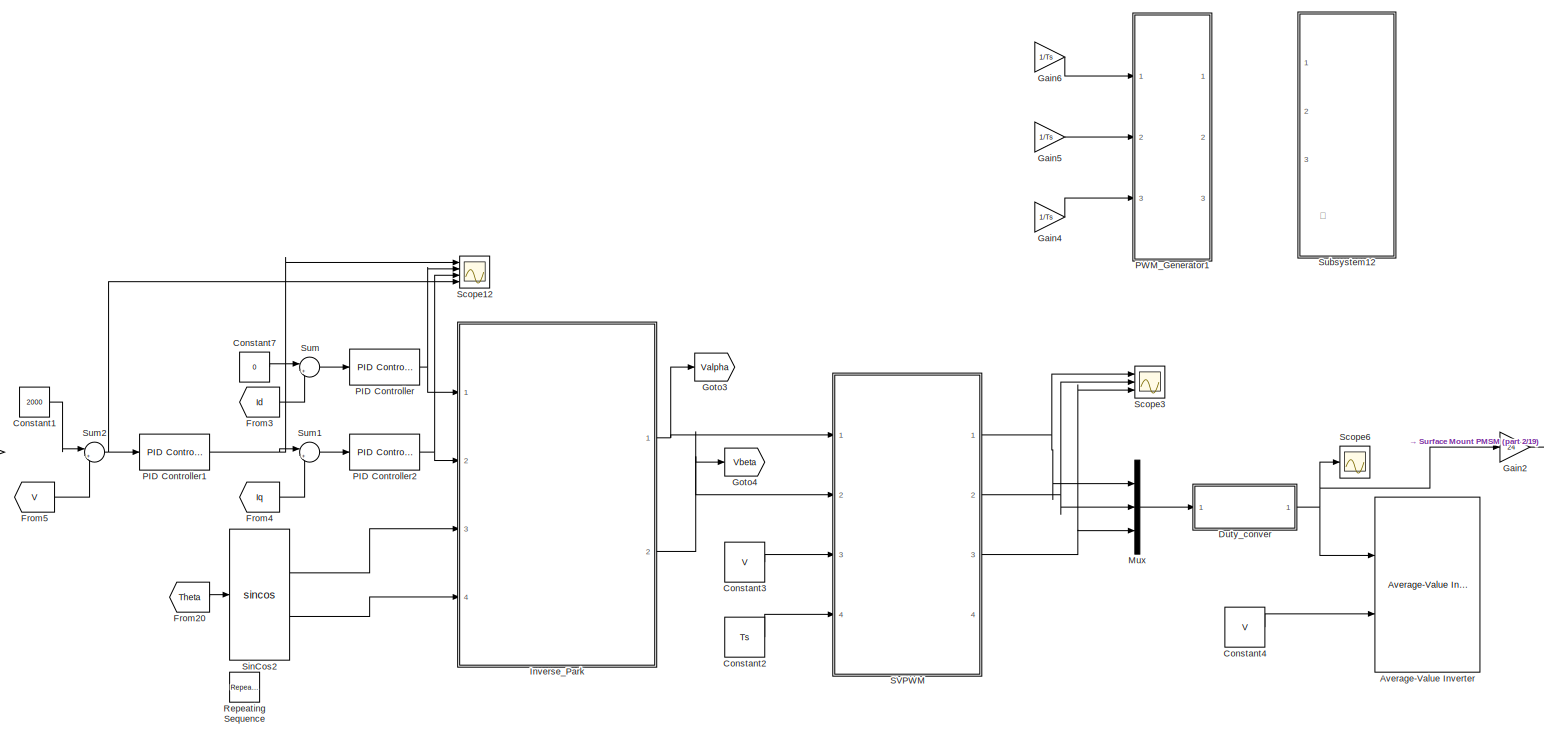
[diagram: root canvas - part 1/19, top center region]
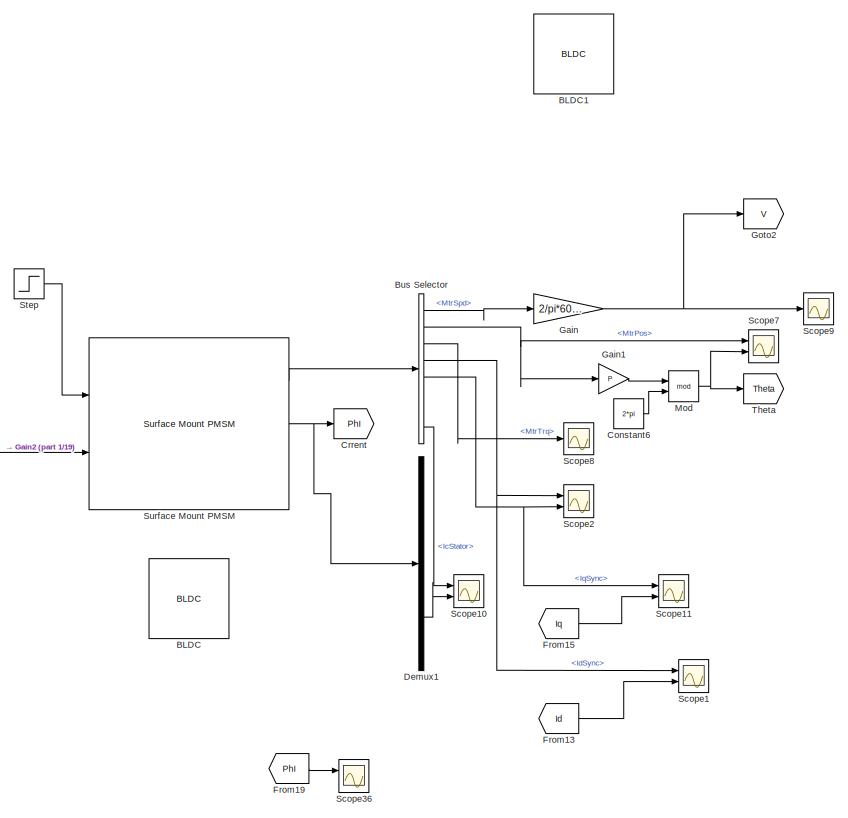
[diagram: root canvas - part 2/19, top center region]
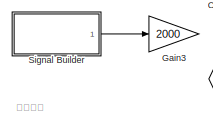
[diagram: root canvas - part 3/19, top left region]
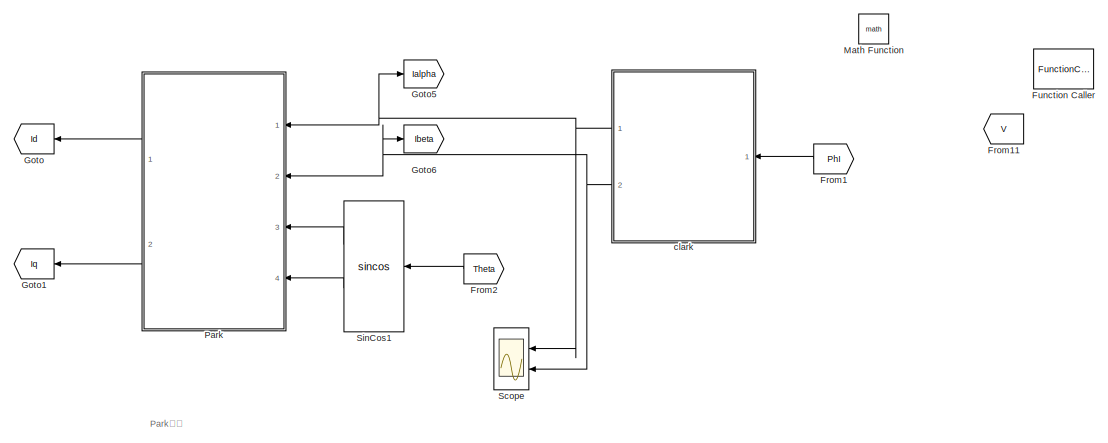
[diagram: root canvas - part 4/19, top center region]
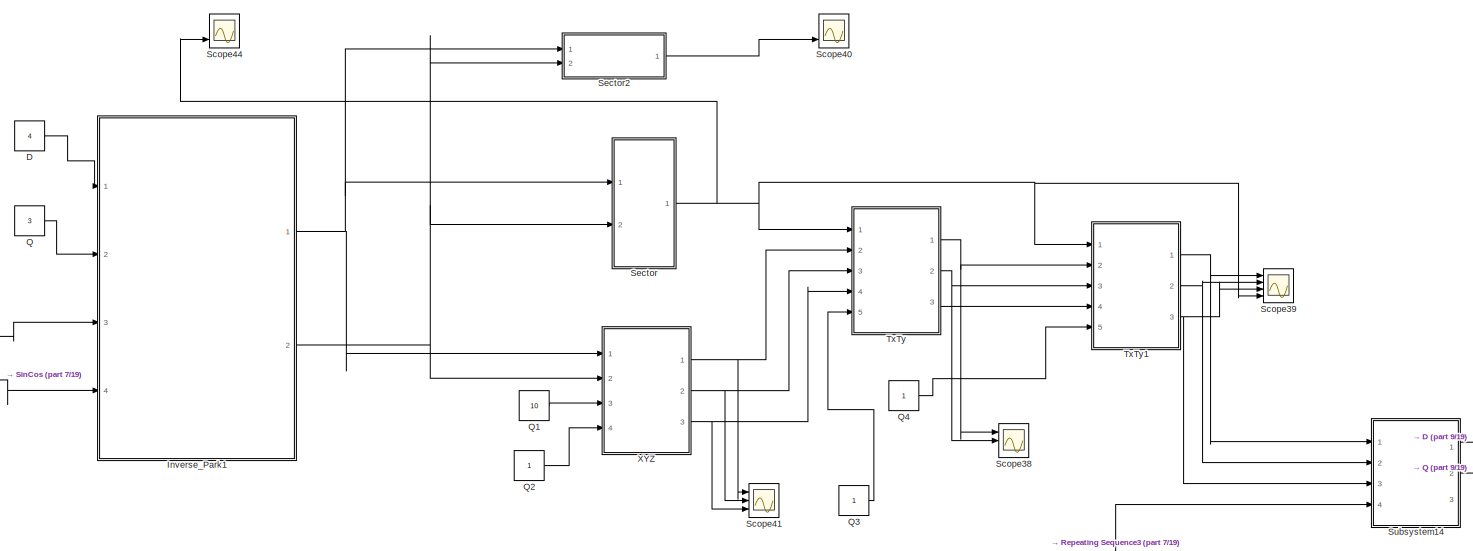
[diagram: root canvas - part 5/19, middle left region]
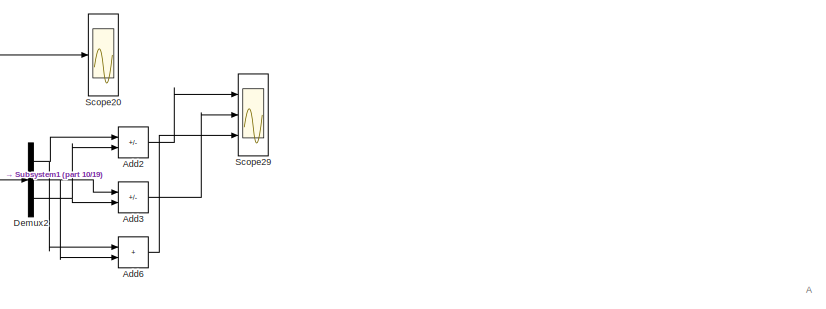
[diagram: root canvas - part 6/19, middle right region]
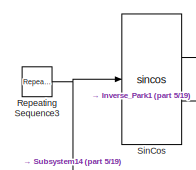
[diagram: root canvas - part 7/19, middle left region]
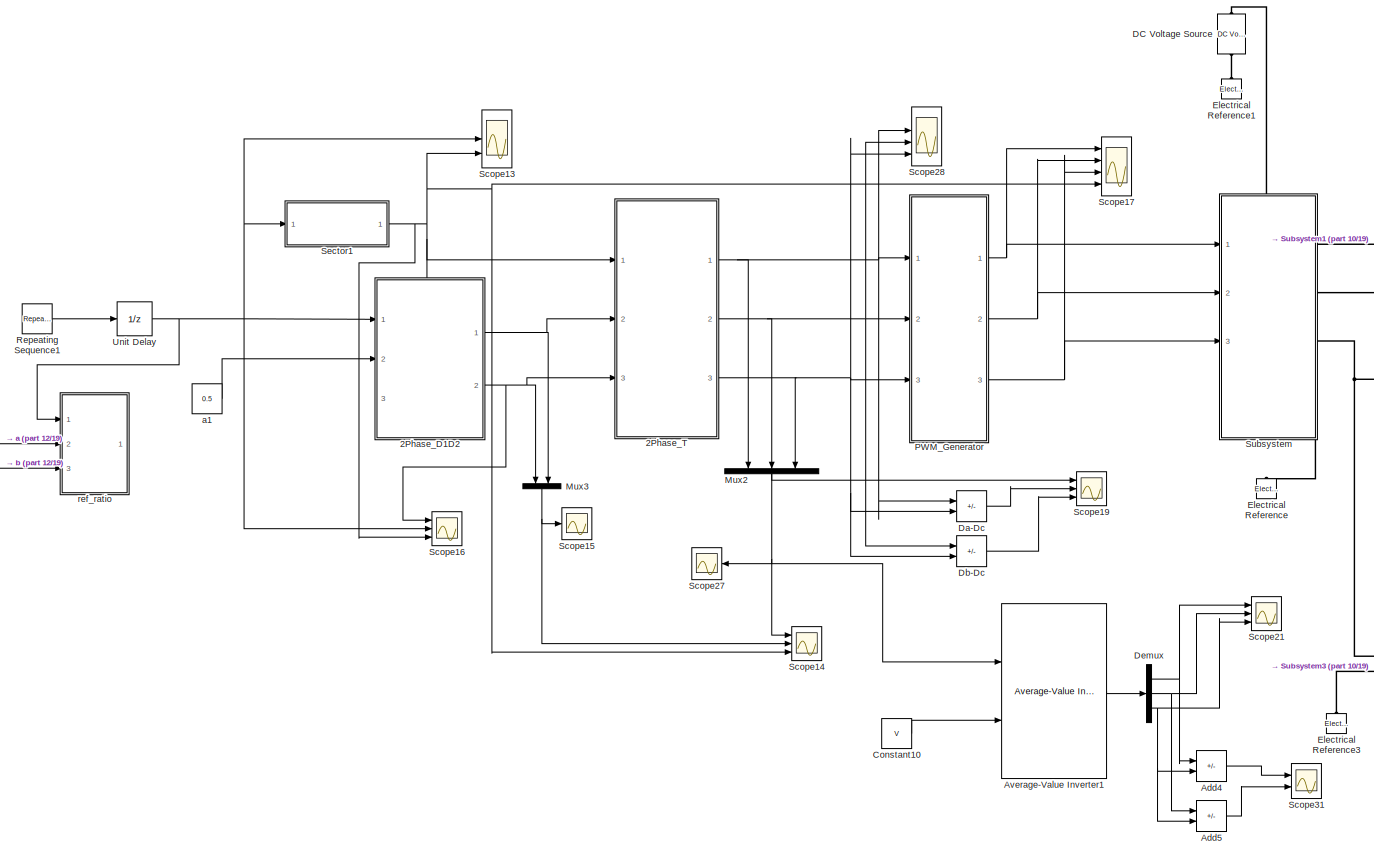
[diagram: root canvas - part 8/19, central region]
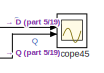
[diagram: root canvas - part 9/19, middle left region]
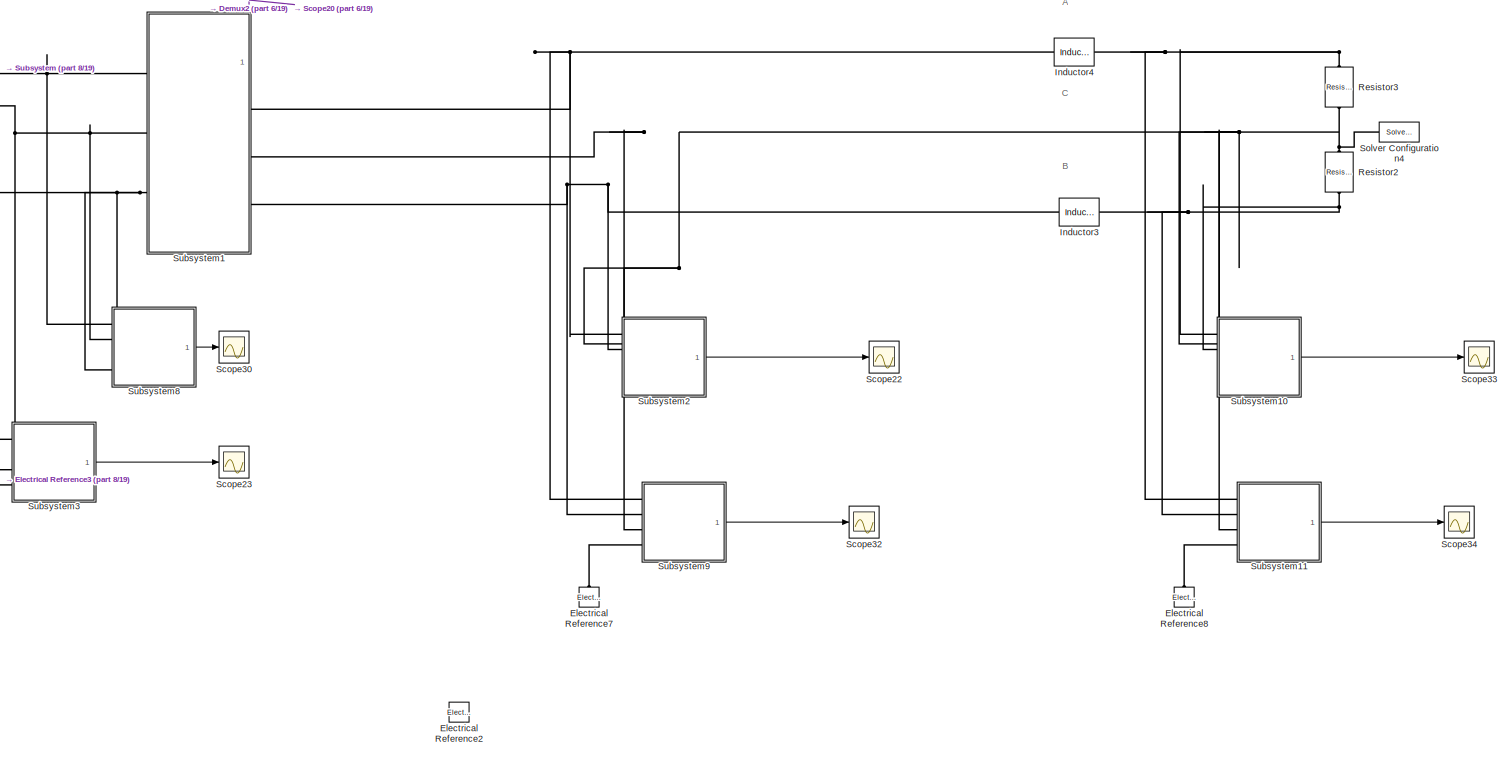
[diagram: root canvas - part 10/19, middle right region]
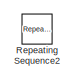
[diagram: root canvas - part 11/19, middle left region]
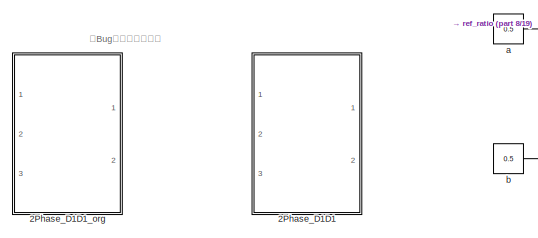
[diagram: root canvas - part 12/19, central region]
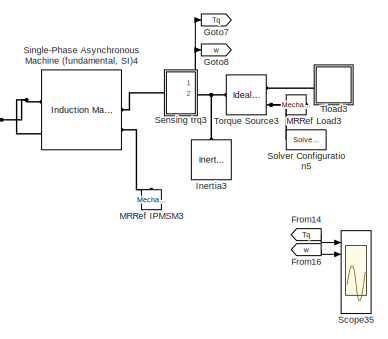
[diagram: root canvas - part 13/19, middle right region]
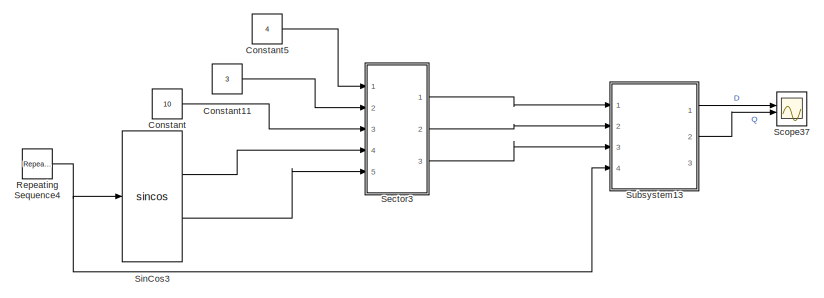
[diagram: root canvas - part 14/19, middle left region]
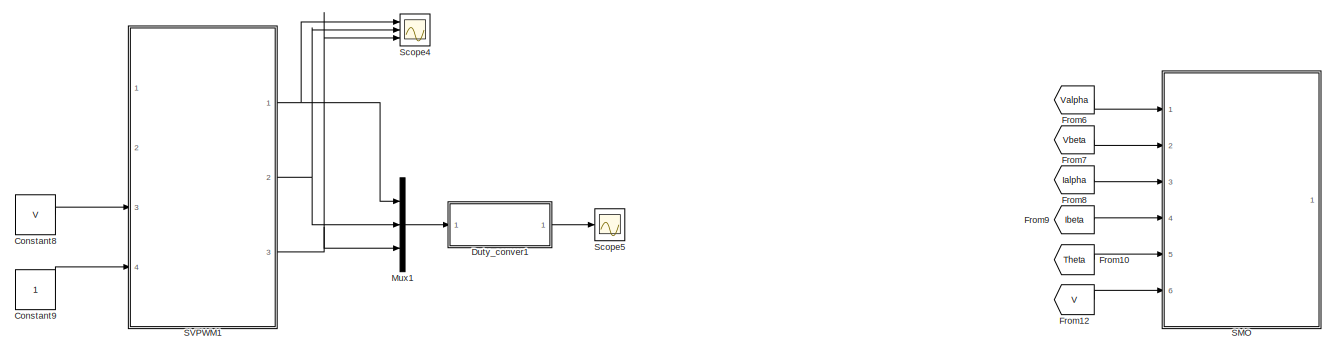
[diagram: root canvas - part 15/19, bottom left region]
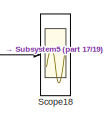
[diagram: root canvas - part 16/19, bottom right region]
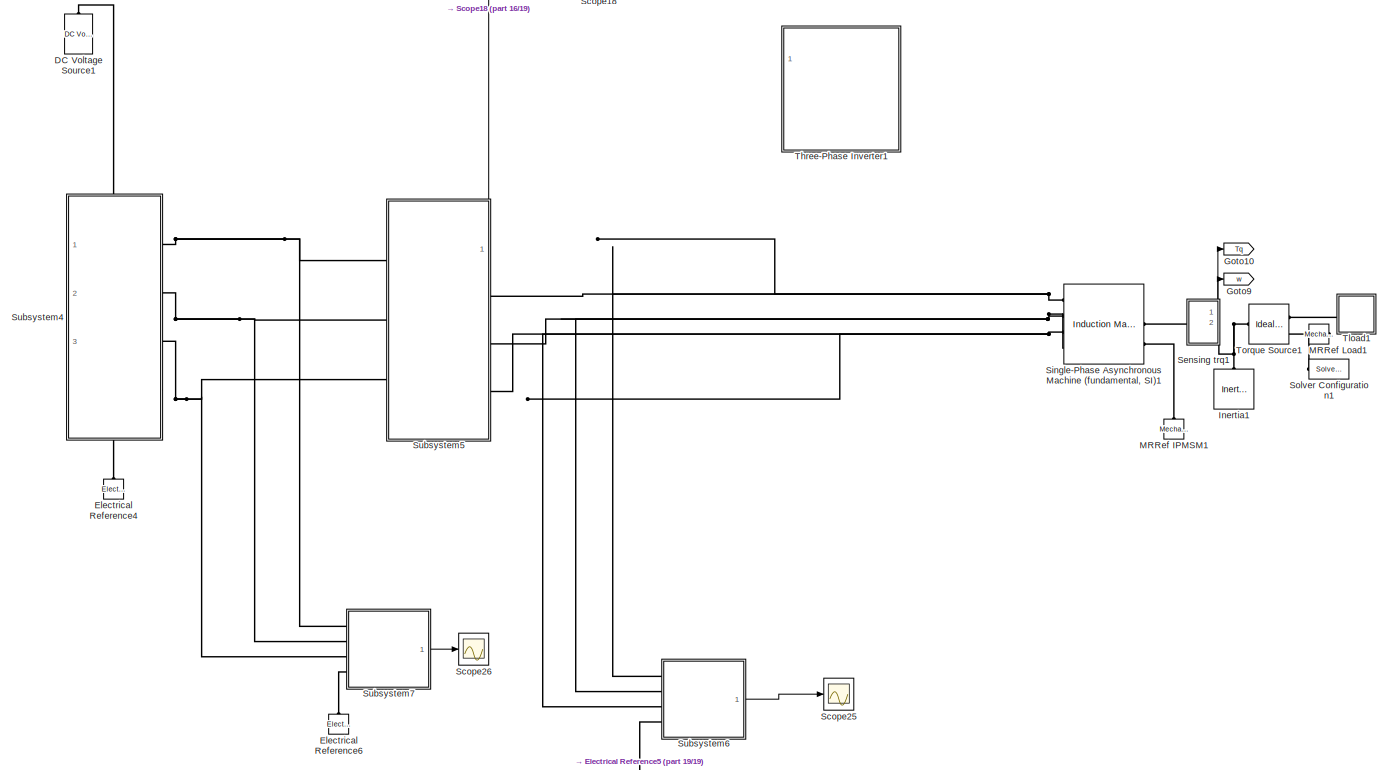
[diagram: root canvas - part 17/19, bottom right region]
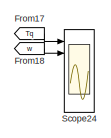
[diagram: root canvas - part 18/19, bottom right region]
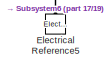
[diagram: root canvas - part 19/19, bottom right region]
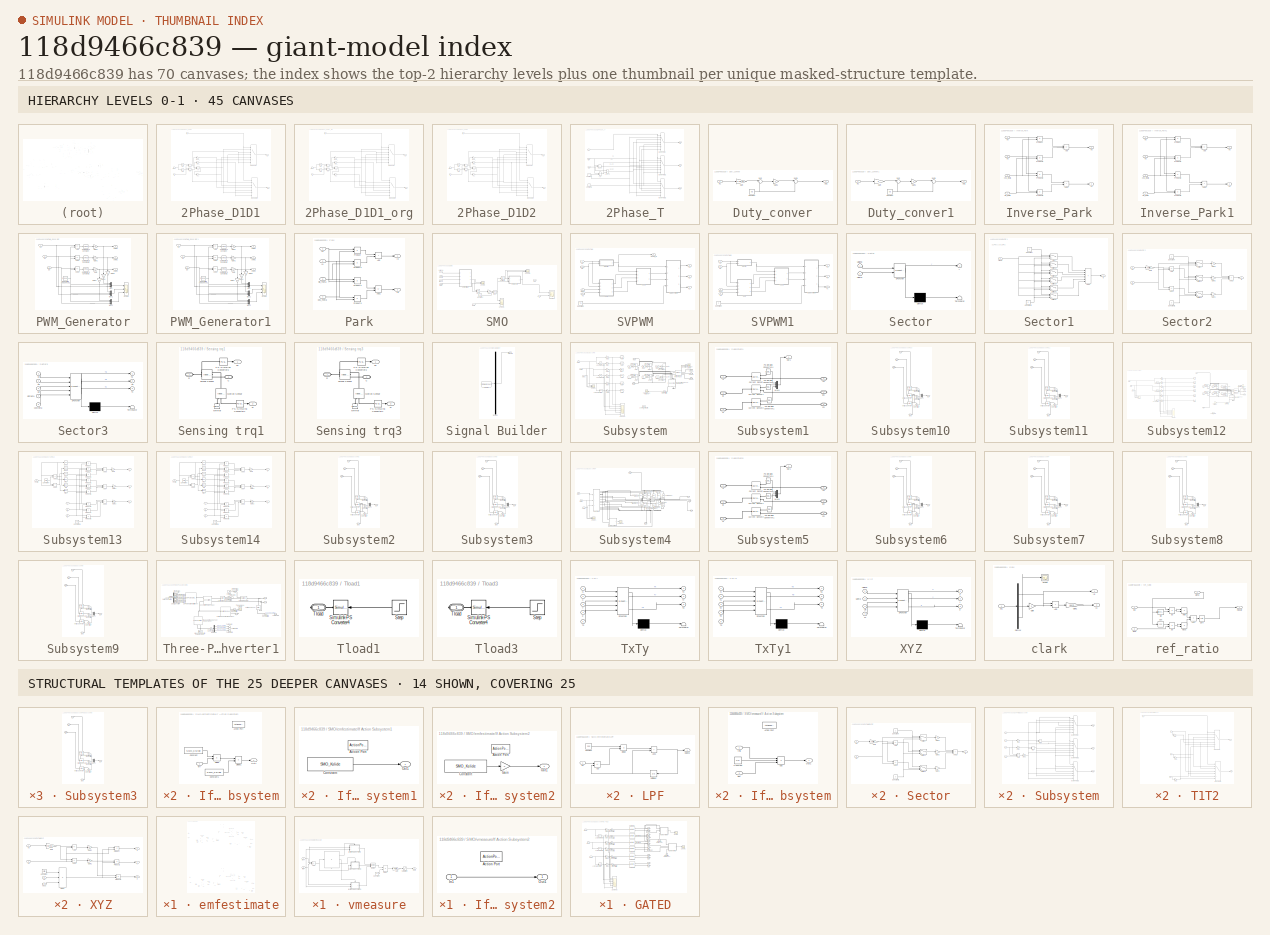
[diagram: thumbnail index - top-2 hierarchy levels (45 canvases) + 14 structural-template representatives of the remaining 25 canvases]
MODEL slx_118d9466c839
KIND model
CONFIG AbsTol = auto
CONFIG EnableMultiTasking = off
CONFIG FixedStep = Ts/1000
CONFIG MaxStep = auto
CONFIG MinStep = auto
CONFIG RelTol = 1e-3
CONFIG SampleTimeConstraint = Unconstrained
CONFIG SolverName = ode4
CONFIG StartTime = 0.0
CONFIG StopTime = inf
BLOCK [SubSystem] 2Phase_D1D1
  Commented = on
  PortSchema = {"entries":[{"content":{"sides":[{"content":{"connectorIds":["In1","In2"]},"type":"ConnectorPlacement.EquallySpacedRectSide","uuid":"91e4105a-9e8c-434e-97cb-db4fedd585cb"},{"content":{"connectorIds":["Out1","Out2"],"side":"RIGHT"},"type":"ConnectorPlacement.EquallySpacedRectSide","uuid":"7c5735c0-a428-475d-8251-3447de6cb9b4"},{"content":{"connectorIds":["In3"],"side":"TOP"},"type":"ConnectorPlacem...<+258ch>  <repeated x3 — deduplicated; at blocks: 2Phase_D1D1, 2Phase_D1D1_org, 2Phase_D1D2>
  Ports = [3, 2]
  RequestExecContextInheritance = off
BLOCK [Trigonometry] 2Phase_D1D1/Cos
  Operator = cos
  Ports = [1, 1]
BLOCK [Outport] 2Phase_D1D1/D1
BLOCK [Outport] 2Phase_D1D1/D2
  Port = 2
BLOCK [MultiPortSwitch] 2Phase_D1D1/Index Vector
  DiagnosticForDefault = None
  InputSameDT = off
  Inputs = 6
  Ports = [7, 1]
  SaturateOnIntegerOverflow = off
BLOCK [MultiPortSwitch] 2Phase_D1D1/Index Vector1
  DiagnosticForDefault = None
  InputSameDT = off
  Inputs = 6
  Ports = [7, 1]
  SaturateOnIntegerOverflow = off
BLOCK [Inport] 2Phase_D1D1/N
  Port = 3
BLOCK [Trigonometry] 2Phase_D1D1/Sin
  Ports = [1, 1]
BLOCK [Inport] 2Phase_D1D1/alpha
BLOCK [Sum] 2Phase_D1D1/c_s
  IconShape = rectangular
  Inputs = +-
  Ports = [2, 1]
BLOCK [Inport] 2Phase_D1D1/m
  Port = 2
BLOCK [Product] 2Phase_D1D1/mcos
  Ports = [2, 1]
BLOCK [Gain] 2Phase_D1D1/mcos_
  Gain = -1
BLOCK [Product] 2Phase_D1D1/msin
  Ports = [2, 1]
BLOCK [Gain] 2Phase_D1D1/msin_
  Gain = -1
BLOCK [Gain] 2Phase_D1D1/s_c
  Gain = -1
BLOCK [SubSystem] 2Phase_D1D1_org
  Commented = on
  Ports = [3, 2]
  RequestExecContextInheritance = off
BLOCK [Trigonometry] 2Phase_D1D1_org/Cos
  Operator = cos
  Ports = [1, 1]
BLOCK [Outport] 2Phase_D1D1_org/D1
BLOCK [Outport] 2Phase_D1D1_org/D2
  Port = 2
BLOCK [MultiPortSwitch] 2Phase_D1D1_org/Index Vector
  DiagnosticForDefault = None
  InputSameDT = off
  Inputs = 6
  Ports = [7, 1]
  SaturateOnIntegerOverflow = off
BLOCK [MultiPortSwitch] 2Phase_D1D1_org/Index Vector1
  DiagnosticForDefault = None
  InputSameDT = off
  Inputs = 6
  Ports = [7, 1]
  SaturateOnIntegerOverflow = off
BLOCK [Inport] 2Phase_D1D1_org/N
  Port = 3
BLOCK [Trigonometry] 2Phase_D1D1_org/Sin
  Ports = [1, 1]
BLOCK [Inport] 2Phase_D1D1_org/alpha
BLOCK [Sum] 2Phase_D1D1_org/c_s
  IconShape = rectangular
  Inputs = +-
  Ports = [2, 1]
BLOCK [Inport] 2Phase_D1D1_org/m
  Port = 2
BLOCK [Product] 2Phase_D1D1_org/mcos
  Ports = [2, 1]
BLOCK [Gain] 2Phase_D1D1_org/mcos_
  Gain = -1
BLOCK [Product] 2Phase_D1D1_org/msin
  Ports = [2, 1]
BLOCK [Gain] 2Phase_D1D1_org/msin_
  Gain = -1
BLOCK [Gain] 2Phase_D1D1_org/s_c
  Gain = -1
BLOCK [SubSystem] 2Phase_D1D2
  Commented = on
  Ports = [3, 2]
  RequestExecContextInheritance = off
BLOCK [Trigonometry] 2Phase_D1D2/Cos
  Operator = cos
  Ports = [1, 1]
BLOCK [Outport] 2Phase_D1D2/D1
BLOCK [Outport] 2Phase_D1D2/D2
  Port = 2
BLOCK [MultiPortSwitch] 2Phase_D1D2/Index Vector
  DiagnosticForDefault = None
  InputSameDT = off
  Inputs = 6
  Ports = [7, 1]
  SaturateOnIntegerOverflow = off
BLOCK [MultiPortSwitch] 2Phase_D1D2/Index Vector1
  DiagnosticForDefault = None
  InputSameDT = off
  Inputs = 6
  Ports = [7, 1]
  SaturateOnIntegerOverflow = off
BLOCK [Inport] 2Phase_D1D2/N
  Port = 3
BLOCK [Trigonometry] 2Phase_D1D2/Sin
  Ports = [1, 1]
BLOCK [Inport] 2Phase_D1D2/alpha
BLOCK [Sum] 2Phase_D1D2/c_s
  IconShape = rectangular
  Inputs = +-
  Ports = [2, 1]
BLOCK [Inport] 2Phase_D1D2/m
  Port = 2
BLOCK [Product] 2Phase_D1D2/mcos
  Ports = [2, 1]
BLOCK [Gain] 2Phase_D1D2/mcos_
  Gain = -1
BLOCK [Product] 2Phase_D1D2/msin
  Ports = [2, 1]
BLOCK [Gain] 2Phase_D1D2/msin_
  Gain = -1
BLOCK [Gain] 2Phase_D1D2/s_c
  Gain = -1
BLOCK [SubSystem] 2Phase_T
  Commented = on
  Ports = [3, 3]
  RequestExecContextInheritance = off
BLOCK [Sum] 2Phase_T/1_t1
  IconShape = rectangular
  Inputs = -+
  Ports = [2, 1]
BLOCK [Sum] 2Phase_T/1_t2_T2
  IconShape = rectangular
  Inputs = -+
  Ports = [2, 1]
BLOCK [Constant] 2Phase_T/Constant
BLOCK [Constant] 2Phase_T/Constant1
  Value = 0
BLOCK [Inport] 2Phase_T/D1
  Port = 2
BLOCK [Inport] 2Phase_T/D2
  Port = 3
BLOCK [Outport] 2Phase_T/Da
BLOCK [Outport] 2Phase_T/Db
  Port = 2
BLOCK [Outport] 2Phase_T/Dc
  Port = 3
BLOCK [MultiPortSwitch] 2Phase_T/Index Vector
  DiagnosticForDefault = None
  InputSameDT = off
  Inputs = 6
  Ports = [7, 1]
  SaturateOnIntegerOverflow = off
BLOCK [MultiPortSwitch] 2Phase_T/Index Vector1
  DiagnosticForDefault = None
  InputSameDT = off
  Inputs = 6
  Ports = [7, 1]
  SaturateOnIntegerOverflow = off
BLOCK [MultiPortSwitch] 2Phase_T/Index Vector2
  DiagnosticForDefault = None
  InputSameDT = off
  Inputs = 6
  Ports = [7, 1]
  SaturateOnIntegerOverflow = off
BLOCK [Inport] 2Phase_T/N
BLOCK [Sum] 2Phase_T/T1AT2
  IconShape = rectangular
  Ports = [2, 1]
BLOCK [Sum] Add2
  Commented = on
  IconShape = rectangular
  Inputs = +-
  Ports = [2, 1]
BLOCK [Sum] Add3
  Commented = on
  IconShape = rectangular
  Inputs = +-
  Ports = [2, 1]
BLOCK [Sum] Add4
  Commented = on
  IconShape = rectangular
  Inputs = +-
  Ports = [2, 1]
BLOCK [Sum] Add5
  Commented = on
  IconShape = rectangular
  Inputs = +-
  Ports = [2, 1]
BLOCK [Sum] Add6
  Commented = on
  IconShape = rectangular
  Ports = [2, 1]
BLOCK [Reference] Average-Value Inverter  REF=mcbplantlib/Average-Value Inverter
  Commented = on
  Ports = [2, 1]
  SourceBlock = mcbplantlib/Average-Value Inverter
  SourceProductBaseCode = MT
  SourceType = Average Value Inverter
BLOCK [Reference] Average-Value Inverter1  REF=mcbplantlib/Average-Value Inverter
  Commented = on
  Ports = [2, 1]
  SourceBlock = mcbplantlib/Average-Value Inverter
  SourceProductBaseCode = MT
  SourceType = Average Value Inverter
BLOCK [Reference] BLDC  REF=ee_lib/Electromechanical/Permanent Magnet/BLDC
  Commented = on
  Ports = [0, 0, 0, 0, 0, 2, 5]
  SourceBlock = ee_lib/Electromechanical/Permanent Magnet/BLDC
  SourceProductBaseCode = PS
  SourceType = BLDC
BLOCK [Reference] BLDC1  REF=ee_lib/Electromechanical/Permanent Magnet/BLDC
  Commented = on
  Ports = [0, 0, 0, 0, 0, 2, 2]
  SourceBlock = ee_lib/Electromechanical/Permanent Magnet/BLDC
  SourceProductBaseCode = PS
  SourceType = BLDC
BLOCK [BusSelector] Bus Selector
  Commented = on
  OutputSignals = MtrSpd,MtrPos,MtrTrq,IdSync,IqSync,IaStator,IbStator,IcStator
  Ports = [1, 8]
BLOCK [Constant] Constant
  Value = 10
BLOCK [Constant] Constant1
  Commented = on
  Value = 2000
BLOCK [Constant] Constant10
  Commented = on
  Value = V
BLOCK [Constant] Constant11
  Value = 3
BLOCK [Constant] Constant2
  Commented = on
  SampleTime = -1
  Value = Ts
  VectorParams1D = off
BLOCK [Constant] Constant3
  Commented = on
  SampleTime = -1
  Value = V
  VectorParams1D = off
BLOCK [Constant] Constant4
  Commented = on
  SampleTime = -1
  Value = V
  VectorParams1D = off
BLOCK [Constant] Constant5
  Value = 4
BLOCK [Constant] Constant6
  Commented = on
  Value = 2*pi
BLOCK [Constant] Constant7
  Commented = on
  Value = 0
BLOCK [Constant] Constant8
  Commented = on
  SampleTime = -1
  Value = V
  VectorParams1D = off
BLOCK [Constant] Constant9
  Commented = on
  SampleTime = -1
  VectorParams1D = off
BLOCK [Goto] Crrent
  Commented = on
  GotoTag = PhI
BLOCK [Constant] D
  Value = 4
BLOCK [Reference] DC Voltage Source  REF=ee_lib/Additional
Components/SPICE Sources/DC Voltage Source
  Commented = on
  NameLocation = right
  Ports = [0, 0, 0, 0, 0, 1, 1]
  SourceBlock = ee_lib/Additional\nComponents/SPICE Sources/DC Voltage Source
  SourceProductBaseCode = PS
  SourceType = DC Voltage Source
BLOCK [Reference] DC Voltage Source1  REF=ee_lib/Additional
Components/SPICE Sources/DC Voltage Source
  Commented = on
  NameLocation = right
  Ports = [0, 0, 0, 0, 0, 1, 1]
  SourceBlock = ee_lib/Additional\nComponents/SPICE Sources/DC Voltage Source
  SourceProductBaseCode = PS
  SourceType = DC Voltage Source
BLOCK [Sum] Da-Dc
  Commented = on
  IconShape = rectangular
  Inputs = +-
  Ports = [2, 1]
BLOCK [Sum] Db-Dc
  Commented = on
  IconShape = rectangular
  Inputs = +-
  Ports = [2, 1]
BLOCK [Demux] Demux
  Commented = on
  Outputs = 3
  Ports = [1, 3]
BLOCK [Demux] Demux1
  Commented = on
  Outputs = 3
  Ports = [1, 3]
BLOCK [Demux] Demux2
  Commented = on
  Outputs = 3
  Ports = [1, 3]
BLOCK [SubSystem] Duty_conver
  Commented = on
  Ports = [1, 1]
  RequestExecContextInheritance = off
BLOCK [Constant] Duty_conver/Constant
  Value = 0.5
BLOCK [Gain] Duty_conver/Gain
  Gain = 1/(5e-5)
BLOCK [Gain] Duty_conver/Gain1
  Gain = -1
BLOCK [Inport] Duty_conver/In1
BLOCK [Outport] Duty_conver/Out1
BLOCK [Sum] Duty_conver/Sum
  Inputs = |+-
  Ports = [2, 1]
BLOCK [Sum] Duty_conver/Sum1
  Inputs = |++
  Ports = [2, 1]
BLOCK [SubSystem] Duty_conver1
  Commented = on
  Ports = [1, 1]
  RequestExecContextInheritance = off
BLOCK [Constant] Duty_conver1/Constant
  Value = 0.5
BLOCK [Gain] Duty_conver1/Gain
  Gain = 2
BLOCK [Gain] Duty_conver1/Gain1
  Gain = -1
BLOCK [Inport] Duty_conver1/In1
BLOCK [Outport] Duty_conver1/Out1
BLOCK [Sum] Duty_conver1/Sum
  Inputs = |+-
  Ports = [2, 1]
BLOCK [Sum] Duty_conver1/Sum1
  Inputs = |++
  Ports = [2, 1]
BLOCK [Reference] Electrical Reference  REF=fl_lib/Electrical/Electrical Elements/Electrical Reference
  Commented = on
  NameLocation = right
  Ports = [0, 0, 0, 0, 0, 1]
  SourceBlock = fl_lib/Electrical/Electrical Elements/Electrical Reference
  SourceProductBaseCode = PW,SS,VE
  SourceType = Electrical Reference
BLOCK [Reference] Electrical Reference1  REF=fl_lib/Electrical/Electrical Elements/Electrical Reference
  Commented = on
  NameLocation = right
  Ports = [0, 0, 0, 0, 0, 1]
  SourceBlock = fl_lib/Electrical/Electrical Elements/Electrical Reference
  SourceProductBaseCode = PW,SS,VE
  SourceType = Electrical Reference
BLOCK [Reference] Electrical Reference2  REF=fl_lib/Electrical/Electrical Elements/Electrical Reference
  Commented = on
  NameLocation = right
  Ports = [0, 0, 0, 0, 0, 1]
  SourceBlock = fl_lib/Electrical/Electrical Elements/Electrical Reference
  SourceProductBaseCode = PW,SS,VE
  SourceType = Electrical Reference
BLOCK [Reference] Electrical Reference3  REF=fl_lib/Electrical/Electrical Elements/Electrical Reference
  Commented = on
  NameLocation = right
  Ports = [0, 0, 0, 0, 0, 1]
  SourceBlock = fl_lib/Electrical/Electrical Elements/Electrical Reference
  SourceProductBaseCode = PW,SS,VE
  SourceType = Electrical Reference
BLOCK [Reference] Electrical Reference4  REF=fl_lib/Electrical/Electrical Elements/Electrical Reference
  Commented = on
  NameLocation = right
  Ports = [0, 0, 0, 0, 0, 1]
  SourceBlock = fl_lib/Electrical/Electrical Elements/Electrical Reference
  SourceProductBaseCode = PW,SS,VE
  SourceType = Electrical Reference
BLOCK [Reference] Electrical Reference5  REF=fl_lib/Electrical/Electrical Elements/Electrical Reference
  Commented = on
  NameLocation = right
  Ports = [0, 0, 0, 0, 0, 1]
  SourceBlock = fl_lib/Electrical/Electrical Elements/Electrical Reference
  SourceProductBaseCode = PW,SS,VE
  SourceType = Electrical Reference
BLOCK [Reference] Electrical Reference6  REF=fl_lib/Electrical/Electrical Elements/Electrical Reference
  Commented = on
  NameLocation = right
  Ports = [0, 0, 0, 0, 0, 1]
  SourceBlock = fl_lib/Electrical/Electrical Elements/Electrical Reference
  SourceProductBaseCode = PW,SS,VE
  SourceType = Electrical Reference
BLOCK [Reference] Electrical Reference7  REF=fl_lib/Electrical/Electrical Elements/Electrical Reference
  Commented = on
  NameLocation = right
  Ports = [0, 0, 0, 0, 0, 1]
  SourceBlock = fl_lib/Electrical/Electrical Elements/Electrical Reference
  SourceProductBaseCode = PW,SS,VE
  SourceType = Electrical Reference
BLOCK [Reference] Electrical Reference8  REF=fl_lib/Electrical/Electrical Elements/Electrical Reference
  Commented = on
  NameLocation = right
  Ports = [0, 0, 0, 0, 0, 1]
  SourceBlock = fl_lib/Electrical/Electrical Elements/Electrical Reference
  SourceProductBaseCode = PW,SS,VE
  SourceType = Electrical Reference
BLOCK [From] From1
  Commented = on
  GotoTag = PhI
  NameLocation = top
BLOCK [From] From10
  Commented = on
  GotoTag = Theta
BLOCK [From] From11
  Commented = on
  GotoTag = V
BLOCK [From] From12
  Commented = on
  GotoTag = V
BLOCK [From] From13
  Commented = on
  GotoTag = Id
  NameLocation = top
BLOCK [From] From14
  Commented = on
  GotoTag = Tq
BLOCK [From] From15
  Commented = on
  GotoTag = Iq
  NameLocation = top
BLOCK [From] From16
  Commented = on
  GotoTag = w
BLOCK [From] From17
  Commented = on
  GotoTag = Tq
BLOCK [From] From18
  Commented = on
  GotoTag = w
BLOCK [From] From19
  Commented = on
  GotoTag = PhI
BLOCK [From] From2
  Commented = on
  GotoTag = Theta
  NameLocation = top
BLOCK [From] From20
  Commented = on
  GotoTag = Theta
BLOCK [From] From3
  Commented = on
  GotoTag = Id
  NameLocation = top
BLOCK [From] From4
  Commented = on
  GotoTag = Iq
  NameLocation = top
BLOCK [From] From5
  Commented = on
  GotoTag = V
BLOCK [From] From6
  Commented = on
  GotoTag = Valpha
BLOCK [From] From7
  Commented = on
  GotoTag = Vbeta
BLOCK [From] From8
  Commented = on
  GotoTag = Ialpha
BLOCK [From] From9
  Commented = on
  GotoTag = Ibeta
BLOCK [FunctionCaller] Function Caller
  Commented = on
  FunctionPrototype = y = f(u)
  InputArgumentSpecifications = <Enter example>
  OutputArgumentSpecifications = <Enter example>
  Ports = [1, 1]
BLOCK [Gain] Gain
  Commented = on
  Gain = 2/pi*60/P
BLOCK [Gain] Gain1
  Commented = on
  Gain = P
BLOCK [Gain] Gain2
  Commented = on
  Gain = 24
BLOCK [Gain] Gain3
  Commented = on
  Gain = 2000
BLOCK [Gain] Gain4
  Commented = on
  Gain = 1/Ts
BLOCK [Gain] Gain5
  Commented = on
  Gain = 1/Ts
BLOCK [Gain] Gain6
  Commented = on
  Gain = 1/Ts
BLOCK [Goto] Goto
  Commented = on
  GotoTag = Id
  NameLocation = top
BLOCK [Goto] Goto1
  Commented = on
  GotoTag = Iq
  NameLocation = top
BLOCK [Goto] Goto10
  Commented = on
  GotoTag = Tq
BLOCK [Goto] Goto2
  Commented = on
  GotoTag = V
BLOCK [Goto] Goto3
  Commented = on
  GotoTag = Valpha
BLOCK [Goto] Goto4
  Commented = on
  GotoTag = Vbeta
BLOCK [Goto] Goto5
  Commented = on
  GotoTag = Ialpha
BLOCK [Goto] Goto6
  Commented = on
  GotoTag = Ibeta
BLOCK [Goto] Goto7
  Commented = on
  GotoTag = Tq
BLOCK [Goto] Goto8
  Commented = on
  GotoTag = w
BLOCK [Goto] Goto9
  Commented = on
  GotoTag = w
BLOCK [Reference] Inductor3  REF=ee_lib/Passive/Inductor
  Commented = on
  Ports = [0, 0, 0, 0, 0, 1, 1]
  SourceBlock = ee_lib/Passive/Inductor
  SourceProductBaseCode = PS
  SourceType = Inductor
BLOCK [Reference] Inductor4  REF=ee_lib/Passive/Inductor
  Commented = on
  Ports = [0, 0, 0, 0, 0, 1, 1]
  SourceBlock = ee_lib/Passive/Inductor
  SourceProductBaseCode = PS
  SourceType = Inductor
BLOCK [Reference] Inertia1  REF=fl_lib/Mechanical/Rotational Elements/Inertia
  Commented = on
  NameLocation = left
  Ports = [0, 0, 0, 0, 0, 1]
  SourceBlock = fl_lib/Mechanical/Rotational Elements/Inertia
  SourceProductBaseCode = PW,SS,VE
  SourceType = Inertia
BLOCK [Reference] Inertia3  REF=fl_lib/Mechanical/Rotational Elements/Inertia
  Commented = on
  NameLocation = left
  Ports = [0, 0, 0, 0, 0, 1]
  SourceBlock = fl_lib/Mechanical/Rotational Elements/Inertia
  SourceProductBaseCode = PW,SS,VE
  SourceType = Inertia
BLOCK [SubSystem] Inverse_Park
  Commented = on
  Ports = [4, 2]
  RequestExecContextInheritance = off
BLOCK [Sum] Inverse_Park/Add
  IconShape = rectangular
  Inputs = +-
  Ports = [2, 1]
BLOCK [Sum] Inverse_Park/Add1
  IconShape = rectangular
  Ports = [2, 1]
BLOCK [Product] Inverse_Park/Product
  Ports = [2, 1]
BLOCK [Product] Inverse_Park/Product1
  Ports = [2, 1]
BLOCK [Product] Inverse_Park/Product2
  Ports = [2, 1]
BLOCK [Product] Inverse_Park/Product3
  Ports = [2, 1]
BLOCK [Inport] Inverse_Park/Vd
BLOCK [Inport] Inverse_Park/Vq
  Port = 2
BLOCK [Outport] Inverse_Park/Vα
BLOCK [Outport] Inverse_Park/Vβ
  Port = 2
BLOCK [Inport] Inverse_Park/cos_theta
  Port = 4
BLOCK [Inport] Inverse_Park/sin_theta
  Port = 3
BLOCK [SubSystem] Inverse_Park1
  Ports = [4, 2]
  RequestExecContextInheritance = off
BLOCK [Sum] Inverse_Park1/Add
  IconShape = rectangular
  Inputs = +-
  Ports = [2, 1]
BLOCK [Sum] Inverse_Park1/Add1
  IconShape = rectangular
  Ports = [2, 1]
BLOCK [Product] Inverse_Park1/Product
  Ports = [2, 1]
BLOCK [Product] Inverse_Park1/Product1
  Ports = [2, 1]
BLOCK [Product] Inverse_Park1/Product2
  Ports = [2, 1]
BLOCK [Product] Inverse_Park1/Product3
  Ports = [2, 1]
BLOCK [Inport] Inverse_Park1/Vd
BLOCK [Inport] Inverse_Park1/Vq
  Port = 2
BLOCK [Outport] Inverse_Park1/Vα
BLOCK [Outport] Inverse_Park1/Vβ
  Port = 2
BLOCK [Inport] Inverse_Park1/cos_theta
  Port = 4
BLOCK [Inport] Inverse_Park1/sin_theta
  Port = 3
BLOCK [Reference] MRRef IPMSM1  REF=fl_lib/Mechanical/Rotational Elements/Mechanical
Rotational Reference
  Commented = on
  NameLocation = right
  Ports = [0, 0, 0, 0, 0, 1]
  SourceBlock = fl_lib/Mechanical/Rotational Elements/Mechanical\nRotational Reference
  SourceProductBaseCode = PW,SS,VE
  SourceType = Mechanical\nRotational Reference
BLOCK [Reference] MRRef IPMSM3  REF=fl_lib/Mechanical/Rotational Elements/Mechanical
Rotational Reference
  Commented = on
  NameLocation = right
  Ports = [0, 0, 0, 0, 0, 1]
  SourceBlock = fl_lib/Mechanical/Rotational Elements/Mechanical\nRotational Reference
  SourceProductBaseCode = PW,SS,VE
  SourceType = Mechanical\nRotational Reference
BLOCK [Reference] MRRef Load1  REF=fl_lib/Mechanical/Rotational Elements/Mechanical
Rotational Reference
  Commented = on
  NameLocation = top
  Ports = [0, 0, 0, 0, 0, 1]
  SourceBlock = fl_lib/Mechanical/Rotational Elements/Mechanical\nRotational Reference
  SourceProductBaseCode = PW,SS,VE
  SourceType = Mechanical\nRotational Reference
BLOCK [Reference] MRRef Load3  REF=fl_lib/Mechanical/Rotational Elements/Mechanical
Rotational Reference
  Commented = on
  NameLocation = top
  Ports = [0, 0, 0, 0, 0, 1]
  SourceBlock = fl_lib/Mechanical/Rotational Elements/Mechanical\nRotational Reference
  SourceProductBaseCode = PW,SS,VE
  SourceType = Mechanical\nRotational Reference
BLOCK [Math] Math Function
  Commented = on
  Ports = [1, 1]
BLOCK [Math] Mod
  Commented = on
  Operator = mod
  Ports = [2, 1]
BLOCK [Mux] Mux
  Commented = on
  DisplayOption = bar
  Inputs = 3
  Ports = [3, 1]
BLOCK [Mux] Mux1
  Commented = on
  DisplayOption = bar
  Inputs = 3
  Ports = [3, 1]
BLOCK [Mux] Mux2
  Commented = on
  DisplayOption = bar
  Inputs = 3
  NameLocation = left
  Ports = [3, 1]
BLOCK [Mux] Mux3
  Commented = on
  DisplayOption = bar
  Inputs = 2
  NameLocation = left
  Ports = [2, 1]
BLOCK [Reference] PID Controller  REF=slpidlib/PID Controller
  Commented = on
  Ports = [1, 1]
  SourceBlock = slpidlib/PID Controller
  SourceProductBaseCode = SL
  SourceType = PID 1dof
BLOCK [Reference] PID Controller1  REF=slpidlib/PID Controller
  Commented = on
  Ports = [1, 1]
  SourceBlock = slpidlib/PID Controller
  SourceProductBaseCode = SL
  SourceType = PID 1dof
BLOCK [Reference] PID Controller2  REF=slpidlib/PID Controller
  Commented = on
  Ports = [1, 1]
  SourceBlock = slpidlib/PID Controller
  SourceProductBaseCode = SL
  SourceType = PID 1dof
BLOCK [SubSystem] PWM_Generator
  Commented = on
  Ports = [3, 3]
  RequestExecContextInheritance = off
BLOCK [Sum] PWM_Generator/Add
  IconShape = rectangular
  Inputs = +-
  Ports = [2, 1]
BLOCK [Sum] PWM_Generator/Add1
  IconShape = rectangular
  Inputs = +-
  Ports = [2, 1]
BLOCK [Sum] PWM_Generator/Add2
  IconShape = rectangular
  Inputs = +-
  Ports = [2, 1]
BLOCK [Reference] PWM_Generator/Compare To Constant  REF=simulink/Logic and Bit
Operations/Compare
To Constant
  Ports = [1, 1]
  SourceBlock = simulink/Logic and Bit\nOperations/Compare\nTo Constant
  SourceProductBaseCode = SL
  SourceType = Compare To Constant
BLOCK [Reference] PWM_Generator/Compare To Constant1  REF=simulink/Logic and Bit
Operations/Compare
To Constant
  Ports = [1, 1]
  SourceBlock = simulink/Logic and Bit\nOperations/Compare\nTo Constant
  SourceProductBaseCode = SL
  SourceType = Compare To Constant
BLOCK [Reference] PWM_Generator/Compare To Constant2  REF=simulink/Logic and Bit
Operations/Compare
To Constant
  Ports = [1, 1]
  SourceBlock = simulink/Logic and Bit\nOperations/Compare\nTo Constant
  SourceProductBaseCode = SL
  SourceType = Compare To Constant
BLOCK [Inport] PWM_Generator/D1
BLOCK [Inport] PWM_Generator/D2
  Port = 2
BLOCK [Inport] PWM_Generator/D3
  Port = 3
BLOCK [Gain] PWM_Generator/Gain
  Gain = 1.0
BLOCK [Gain] PWM_Generator/Gain1
  Gain = 1.0
BLOCK [Gain] PWM_Generator/Gain2
  Gain = 1.0
BLOCK [Gain] PWM_Generator/Gain3
  Gain = 1.0
  NameLocation = left
  OutDataTypeStr = double
BLOCK [Gain] PWM_Generator/Gain4
  Gain = 1.0
  NameLocation = left
  OutDataTypeStr = double
BLOCK [Gain] PWM_Generator/Gain5
  Gain = 1.0
  NameLocation = left
  OutDataTypeStr = double
BLOCK [Mux] PWM_Generator/Mux
  DisplayOption = bar
  Inputs = 3
  Ports = [3, 1]
BLOCK [Mux] PWM_Generator/Mux1
  DisplayOption = bar
  Inputs = 3
  Ports = [3, 1]
BLOCK [Mux] PWM_Generator/Mux2
  DisplayOption = bar
  Inputs = 3
  Ports = [3, 1]
BLOCK [Reference] PWM_Generator/Repeating Sequence2  REF=simulink/Sources/Repeating
Sequence
  Ports = [0, 1]
  SourceBlock = simulink/Sources/Repeating\nSequence
  SourceProductBaseCode = SL
  SourceType = Repeating table
BLOCK [Scope] PWM_Generator/Scope
  Floating = off
  NumInputPorts = 3
  Ports = [3]
  ScopeSpecificationString = Simulink.scopes.TimeScopeBlockCfg('CurrentConfiguration', extmgr.ConfigurationSet(extmgr.Configuration('Core','General UI',true),extmgr.Configuration('Core','Source UI',true),extmgr.Configuration('Sources','WiredSimulink',true,'DataLoggingVariableName','ScopeData9'),extmgr.Configuration('Visuals','Time Domain',true,'SerializedDisplays',{struct('MinYLimReal','-0.125','MaxYLimReal','1.125','YLabelRe...<+2966ch>
BLOCK [Outport] PWM_Generator/pwm1
BLOCK [Outport] PWM_Generator/pwm2
  Port = 2
BLOCK [Outport] PWM_Generator/pwm3
  Port = 3
BLOCK [SubSystem] PWM_Generator1
  Commented = on
  Ports = [3, 3]
  RequestExecContextInheritance = off
BLOCK [Sum] PWM_Generator1/Add
  IconShape = rectangular
  Inputs = +-
  Ports = [2, 1]
BLOCK [Sum] PWM_Generator1/Add1
  IconShape = rectangular
  Inputs = +-
  Ports = [2, 1]
BLOCK [Sum] PWM_Generator1/Add2
  IconShape = rectangular
  Inputs = +-
  Ports = [2, 1]
BLOCK [Reference] PWM_Generator1/Compare To Constant  REF=simulink/Logic and Bit
Operations/Compare
To Constant
  Ports = [1, 1]
  SourceBlock = simulink/Logic and Bit\nOperations/Compare\nTo Constant
  SourceProductBaseCode = SL
  SourceType = Compare To Constant
BLOCK [Reference] PWM_Generator1/Compare To Constant1  REF=simulink/Logic and Bit
Operations/Compare
To Constant
  Ports = [1, 1]
  SourceBlock = simulink/Logic and Bit\nOperations/Compare\nTo Constant
  SourceProductBaseCode = SL
  SourceType = Compare To Constant
BLOCK [Reference] PWM_Generator1/Compare To Constant2  REF=simulink/Logic and Bit
Operations/Compare
To Constant
  Ports = [1, 1]
  SourceBlock = simulink/Logic and Bit\nOperations/Compare\nTo Constant
  SourceProductBaseCode = SL
  SourceType = Compare To Constant
BLOCK [Inport] PWM_Generator1/D1
BLOCK [Inport] PWM_Generator1/D2
  Port = 2
BLOCK [Inport] PWM_Generator1/D3
  Port = 3
BLOCK [Gain] PWM_Generator1/Gain
  Gain = 1.0
BLOCK [Gain] PWM_Generator1/Gain1
  Gain = 1.0
BLOCK [Gain] PWM_Generator1/Gain2
  Gain = 1.0
BLOCK [Gain] PWM_Generator1/Gain3
  Gain = 1.0
  NameLocation = left
  OutDataTypeStr = double
BLOCK [Gain] PWM_Generator1/Gain4
  Gain = 1.0
  NameLocation = left
  OutDataTypeStr = double
BLOCK [Gain] PWM_Generator1/Gain5
  Gain = 1.0
  NameLocation = left
  OutDataTypeStr = double
BLOCK [Mux] PWM_Generator1/Mux
  DisplayOption = bar
  Inputs = 3
  Ports = [3, 1]
BLOCK [Mux] PWM_Generator1/Mux1
  DisplayOption = bar
  Inputs = 3
  Ports = [3, 1]
BLOCK [Mux] PWM_Generator1/Mux2
  DisplayOption = bar
  Inputs = 3
  Ports = [3, 1]
BLOCK [Reference] PWM_Generator1/Repeating Sequence2  REF=simulink/Sources/Repeating
Sequence
  Ports = [0, 1]
  SourceBlock = simulink/Sources/Repeating\nSequence
  SourceProductBaseCode = SL
  SourceType = Repeating table
BLOCK [Scope] PWM_Generator1/Scope
  Floating = off
  NumInputPorts = 3
  Ports = [3]
  ScopeSpecificationString = Simulink.scopes.TimeScopeBlockCfg('CurrentConfiguration', extmgr.ConfigurationSet(extmgr.Configuration('Core','General UI',true),extmgr.Configuration('Core','Source UI',true),extmgr.Configuration('Sources','WiredSimulink',true,'DataLoggingVariableName','ScopeData9'),extmgr.Configuration('Visuals','Time Domain',true,'SerializedDisplays',{struct('MinYLimReal','-0.125','MaxYLimReal','1.125','YLabelRe...<+2873ch>
BLOCK [Outport] PWM_Generator1/pwm1
BLOCK [Outport] PWM_Generator1/pwm2
  Port = 2
BLOCK [Outport] PWM_Generator1/pwm3
  Port = 3
BLOCK [SubSystem] Park
  Commented = on
  NameLocation = top
  Ports = [4, 2]
  RequestExecContextInheritance = off
BLOCK [Sum] Park/Add
  IconShape = rectangular
  Ports = [2, 1]
BLOCK [Sum] Park/Add1
  IconShape = rectangular
  Inputs = -+
  Ports = [2, 1]
BLOCK [Inport] Park/Cos_Theta
  Port = 4
BLOCK [Outport] Park/Id
BLOCK [Outport] Park/Iq
  Port = 2
BLOCK [Inport] Park/Iα
BLOCK [Inport] Park/Iβ
  Port = 2
BLOCK [Product] Park/Product
  Ports = [2, 1]
BLOCK [Product] Park/Product1
  Ports = [2, 1]
BLOCK [Product] Park/Product2
  Ports = [2, 1]
BLOCK [Product] Park/Product3
  Ports = [2, 1]
BLOCK [Inport] Park/Sin_Theta
  Port = 3
BLOCK [Constant] Q
  Value = 3
BLOCK [Constant] Q1
  Value = 10
BLOCK [Constant] Q2
BLOCK [Constant] Q3
BLOCK [Constant] Q4
BLOCK [Reference] Repeating Sequence  REF=simulink/Sources/Repeating
Sequence
  Commented = on
  Ports = [0, 1]
  SourceBlock = simulink/Sources/Repeating\nSequence
  SourceProductBaseCode = SL
  SourceType = Repeating table
BLOCK [Reference] Repeating Sequence1  REF=simulink/Sources/Repeating
Sequence
  Commented = on
  Ports = [0, 1]
  SourceBlock = simulink/Sources/Repeating\nSequence
  SourceProductBaseCode = SL
  SourceType = Repeating table
BLOCK [Reference] Repeating Sequence2  REF=simulink/Sources/Repeating
Sequence
  Commented = on
  Ports = [0, 1]
  SourceBlock = simulink/Sources/Repeating\nSequence
  SourceProductBaseCode = SL
  SourceType = Repeating table
BLOCK [Reference] Repeating Sequence3  REF=simulink/Sources/Repeating
Sequence
  Ports = [0, 1]
  SourceBlock = simulink/Sources/Repeating\nSequence
  SourceProductBaseCode = SL
  SourceType = Repeating table
BLOCK [Reference] Repeating Sequence4  REF=simulink/Sources/Repeating
Sequence
  Ports = [0, 1]
  SourceBlock = simulink/Sources/Repeating\nSequence
  SourceProductBaseCode = SL
  SourceType = Repeating table
BLOCK [Reference] Resistor2  REF=ee_lib/Passive/Resistor
  Commented = on
  NameLocation = right
  Ports = [0, 0, 0, 0, 0, 1, 1]
  SourceBlock = ee_lib/Passive/Resistor
  SourceProductBaseCode = PS
  SourceType = Resistor
BLOCK [Reference] Resistor3  REF=ee_lib/Passive/Resistor
  Commented = on
  NameLocation = left
  Ports = [0, 0, 0, 0, 0, 1, 1]
  SourceBlock = ee_lib/Passive/Resistor
  SourceProductBaseCode = PS
  SourceType = Resistor
BLOCK [SubSystem] SMO
  Commented = on
  Ports = [6, 1]
  RequestExecContextInheritance = off
BLOCK [Trigonometry] SMO/Atan2
  Operator = atan2
  Ports = [2, 1]
BLOCK [Constant] SMO/Constant
  Value = 2*pi
BLOCK [Gain] SMO/Gain
  Gain = -1
BLOCK [Inport] SMO/Ialpha
  Port = 3
BLOCK [Inport] SMO/Ibeta
  Port = 4
BLOCK [Math] SMO/Mod
  Operator = mod
  Ports = [2, 1]
BLOCK [Outport] SMO/Out1
BLOCK [Scope] SMO/Scope
  Floating = off
  NumInputPorts = 2
  Ports = [2]
  ScopeSpecificationString = Simulink.scopes.TimeScopeBlockCfg('CurrentConfiguration', extmgr.ConfigurationSet(extmgr.Configuration('Core','General UI',true),extmgr.Configuration('Core','Source UI',true),extmgr.Configuration('Sources','WiredSimulink',true,'DataLoggingVariableName','ScopeData1'),extmgr.Configuration('Visuals','Time Domain',true,'SerializedDisplays',{struct('MinYLimReal','-0.59506','MaxYLimReal','0.79634','YLab...<+1489ch>
BLOCK [Scope] SMO/Scope1
  Floating = off
  NumInputPorts = 2
  Ports = [2]
  ScopeSpecificationString = Simulink.scopes.TimeScopeBlockCfg('CurrentConfiguration', extmgr.ConfigurationSet(extmgr.Configuration('Core','General UI',true),extmgr.Configuration('Core','Source UI',true),extmgr.Configuration('Sources','WiredSimulink',true,'DataLoggingVariableName','ScopeData2'),extmgr.Configuration('Visuals','Time Domain',true,'SerializedDisplays',{struct('MinYLimReal','-2.55246','MaxYLimReal','7.26492','YLab...<+1467ch>
BLOCK [Scope] SMO/Scope3
  Floating = off
  NumInputPorts = 2
  Ports = [2]
  ScopeSpecificationString = Simulink.scopes.TimeScopeBlockCfg('CurrentConfiguration', extmgr.ConfigurationSet(extmgr.Configuration('Core','General UI',true),extmgr.Configuration('Core','Source UI',true),extmgr.Configuration('Sources','WiredSimulink',true,'DataLoggingVariableName','ScopeData4'),extmgr.Configuration('Visuals','Time Domain',true,'SerializedDisplays',{struct('MinYLimReal','-1122.7332','MaxYLimReal','4326.99899',...<+1509ch>
BLOCK [Scope] SMO/Scope4
  Floating = off
  NumInputPorts = 3
  Ports = [3]
  ScopeSpecificationString = Simulink.scopes.TimeScopeBlockCfg('CurrentConfiguration', extmgr.ConfigurationSet(extmgr.Configuration('Core','General UI',true),extmgr.Configuration('Core','Source UI',true),extmgr.Configuration('Sources','WiredSimulink',true,'DataLoggingVariableName','ScopeData5'),extmgr.Configuration('Visuals','Time Domain',true,'SerializedDisplays',{struct('MinYLimReal','-0.0564','MaxYLimReal','1.94612','YLabe...<+1499ch>
BLOCK [UnitDelay] SMO/Unit Delay
  HasFrameUpgradeWarning = on
  SampleTime = Ts
BLOCK [Inport] SMO/V
  Port = 6
BLOCK [Inport] SMO/Valpha
BLOCK [Inport] SMO/Vbeta
  Port = 2
BLOCK [SubSystem] SMO/emfestimate
  Ports = [4, 4]
  RequestExecContextInheritance = off
BLOCK [Sum] SMO/emfestimate/Add
  IconShape = rectangular
  Inputs = +--
  Ports = [3, 1]
BLOCK [Sum] SMO/emfestimate/Add1
  IconShape = rectangular
  Ports = [2, 1]
BLOCK [Sum] SMO/emfestimate/Add2
  IconShape = rectangular
  Inputs = +--
  Ports = [3, 1]
BLOCK [Sum] SMO/emfestimate/Add3
  IconShape = rectangular
  Ports = [2, 1]
BLOCK [DiscreteIntegrator] SMO/emfestimate/Discrete-Time Integrator
  ICPrevOutput = DiscIntNeverNeededParam
  ICPrevScaledInput = DiscIntNeverNeededParam
  InitialConditionSetting = Auto
  Ports = [1, 1]
  SampleTime = Ts
BLOCK [DiscreteIntegrator] SMO/emfestimate/Discrete-Time Integrator1
  ICPrevOutput = DiscIntNeverNeededParam
  ICPrevScaledInput = DiscIntNeverNeededParam
  InitialConditionSetting = Auto
  Ports = [1, 1]
  SampleTime = Ts
BLOCK [Outport] SMO/emfestimate/EST_IAlpha
BLOCK [Outport] SMO/emfestimate/EST_IBeta
  Port = 2
BLOCK [Outport] SMO/emfestimate/Ealpha
  Port = 3
BLOCK [Outport] SMO/emfestimate/Ebeta
  Port = 4
BLOCK [From] SMO/emfestimate/From
  GotoTag = Ealpha
BLOCK [From] SMO/emfestimate/From1
  GotoTag = Zalpha
BLOCK [From] SMO/emfestimate/From2
  GotoTag = EST_IAlpha
BLOCK [From] SMO/emfestimate/From3
  GotoTag = Ebeta
BLOCK [From] SMO/emfestimate/From4
  GotoTag = Zbeta
BLOCK [From] SMO/emfestimate/From5
  GotoTag = EST_IBeta
BLOCK [From] SMO/emfestimate/From6
  GotoTag = Zbeta
BLOCK [From] SMO/emfestimate/From7
  GotoTag = Zalpha
BLOCK [Gain] SMO/emfestimate/Gain
  Gain = 1/Ls
BLOCK [Gain] SMO/emfestimate/Gain1
  Gain = -Rs/Ls
BLOCK [Gain] SMO/emfestimate/Gain2
  Gain = 1/Ls
BLOCK [Gain] SMO/emfestimate/Gain3
  Gain = -Rs/Ls
BLOCK [Goto] SMO/emfestimate/Goto
  GotoTag = EST_IAlpha
BLOCK [Goto] SMO/emfestimate/Goto1
  GotoTag = Zalpha
BLOCK [Goto] SMO/emfestimate/Goto2
  GotoTag = EST_IBeta
BLOCK [Goto] SMO/emfestimate/Goto3
  GotoTag = Ebeta
BLOCK [Goto] SMO/emfestimate/Goto4
  GotoTag = Zbeta
BLOCK [Goto] SMO/emfestimate/Goto5
  GotoTag = Ealpha
BLOCK [Inport] SMO/emfestimate/Ialpha
  Port = 3
BLOCK [Inport] SMO/emfestimate/Ibeta
  Port = 4
BLOCK [If] SMO/emfestimate/If
  ElseIfExpressions = u1 > 0
  IfExpression = u1 <SMO_MaxSMCErr & u1 >-SMO_MaxSMCErr
  Ports = [1, 3]
BLOCK [SubSystem] SMO/emfestimate/If Action Subsystem
  Ports = [1, 1, 0, 0, 0, 0, 0, 1]
  RequestExecContextInheritance = off
  TreatAsAtomicUnit = on
BLOCK [ActionPort] SMO/emfestimate/If Action Subsystem/Action Port
  ActionPortLabel = if(u1 <SMO_MaxSMCErr & u1 >-SMO_MaxSMCErr)
BLOCK [Constant] SMO/emfestimate/If Action Subsystem/Constant
  Value = SMO_Kslide
BLOCK [Constant] SMO/emfestimate/If Action Subsystem/Constant1
  Value = SMO_Kslide
BLOCK [Product] SMO/emfestimate/If Action Subsystem/Divide
  Inputs = **
  Ports = [2, 1]
BLOCK [Product] SMO/emfestimate/If Action Subsystem/Divide1
  Inputs = */
  Ports = [2, 1]
BLOCK [Outport] SMO/emfestimate/If Action Subsystem/Out1
BLOCK [Inport] SMO/emfestimate/If Action Subsystem/err
BLOCK [SubSystem] SMO/emfestimate/If Action Subsystem1
  Ports = [0, 1, 0, 0, 0, 0, 0, 1]
  RequestExecContextInheritance = off
  TreatAsAtomicUnit = on
BLOCK [ActionPort] SMO/emfestimate/If Action Subsystem1/Action Port
  ActionPortLabel = elseif(u1 > 0)
BLOCK [Constant] SMO/emfestimate/If Action Subsystem1/Constant
  Value = SMO_Kslide
BLOCK [Outport] SMO/emfestimate/If Action Subsystem1/Out1
BLOCK [SubSystem] SMO/emfestimate/If Action Subsystem2
  Ports = [0, 1, 0, 0, 0, 0, 0, 1]
  RequestExecContextInheritance = off
  TreatAsAtomicUnit = on
BLOCK [ActionPort] SMO/emfestimate/If Action Subsystem2/Action Port
  ActionPortLabel = else
BLOCK [Constant] SMO/emfestimate/If Action Subsystem2/Constant
  Value = SMO_Kslide
BLOCK [Gain] SMO/emfestimate/If Action Subsystem2/Gain
  Gain = -1
BLOCK [Outport] SMO/emfestimate/If Action Subsystem2/Out1
BLOCK [SubSystem] SMO/emfestimate/If Action Subsystem3
  Ports = [1, 1, 0, 0, 0, 0, 0, 1]
  RequestExecContextInheritance = off
  TreatAsAtomicUnit = on
BLOCK [ActionPort] SMO/emfestimate/If Action Subsystem3/Action Port
  ActionPortLabel = if(u1 <SMO_MaxSMCErr)
BLOCK [Constant] SMO/emfestimate/If Action Subsystem3/Constant
  Value = SMO_Kslide
BLOCK [Constant] SMO/emfestimate/If Action Subsystem3/Constant1
  Value = SMO_Kslide
BLOCK [Product] SMO/emfestimate/If Action Subsystem3/Divide
  Inputs = **
  Ports = [2, 1]
BLOCK [Product] SMO/emfestimate/If Action Subsystem3/Divide1
  Inputs = */
  Ports = [2, 1]
BLOCK [Outport] SMO/emfestimate/If Action Subsystem3/Out1
BLOCK [Inport] SMO/emfestimate/If Action Subsystem3/err
BLOCK [SubSystem] SMO/emfestimate/If Action Subsystem4
  Ports = [0, 1, 0, 0, 0, 0, 0, 1]
  RequestExecContextInheritance = off
  TreatAsAtomicUnit = on
BLOCK [ActionPort] SMO/emfestimate/If Action Subsystem4/Action Port
  ActionPortLabel = elseif(u1 > 0)
BLOCK [Constant] SMO/emfestimate/If Action Subsystem4/Constant
  Value = SMO_Kslide
BLOCK [Outport] SMO/emfestimate/If Action Subsystem4/Out1
BLOCK [SubSystem] SMO/emfestimate/If Action Subsystem5
  Ports = [0, 1, 0, 0, 0, 0, 0, 1]
  RequestExecContextInheritance = off
  TreatAsAtomicUnit = on
BLOCK [ActionPort] SMO/emfestimate/If Action Subsystem5/Action Port
  ActionPortLabel = else
BLOCK [Constant] SMO/emfestimate/If Action Subsystem5/Constant
  Value = SMO_Kslide
BLOCK [Gain] SMO/emfestimate/If Action Subsystem5/Gain
  Gain = -1
BLOCK [Outport] SMO/emfestimate/If Action Subsystem5/Out1
BLOCK [If] SMO/emfestimate/If1
  ElseIfExpressions = u1 > 0
  IfExpression = u1 <SMO_MaxSMCErr
  Ports = [1, 3]
BLOCK [SubSystem] SMO/emfestimate/LPF
  Ports = [1, 1]
  RequestExecContextInheritance = off
BLOCK [Sum] SMO/emfestimate/LPF/Add
  IconShape = rectangular
  Inputs = +-
  Ports = [2, 1]
BLOCK [Sum] SMO/emfestimate/LPF/Add1
  IconShape = rectangular
  Ports = [2, 1]
BLOCK [Constant] SMO/emfestimate/LPF/Constant
  Value = 0.05
BLOCK [Product] SMO/emfestimate/LPF/Divide
  Inputs = **
  Ports = [2, 1]
BLOCK [Outport] SMO/emfestimate/LPF/Ealpha
BLOCK [Inport] SMO/emfestimate/LPF/In1
BLOCK [UnitDelay] SMO/emfestimate/LPF/Unit Delay
  HasFrameUpgradeWarning = on
  NameLocation = top
  SampleTime = -1
BLOCK [SubSystem] SMO/emfestimate/LPF1
  Ports = [1, 1]
  RequestExecContextInheritance = off
BLOCK [Sum] SMO/emfestimate/LPF1/Add
  IconShape = rectangular
  Inputs = +-
  Ports = [2, 1]
BLOCK [Sum] SMO/emfestimate/LPF1/Add1
  IconShape = rectangular
  Ports = [2, 1]
BLOCK [Constant] SMO/emfestimate/LPF1/Constant
  Value = 0.05
BLOCK [Product] SMO/emfestimate/LPF1/Divide
  Inputs = **
  Ports = [2, 1]
BLOCK [Outport] SMO/emfestimate/LPF1/Ealpha
BLOCK [Inport] SMO/emfestimate/LPF1/In1
BLOCK [UnitDelay] SMO/emfestimate/LPF1/Unit Delay
  HasFrameUpgradeWarning = on
  NameLocation = top
  SampleTime = -1
BLOCK [Merge] SMO/emfestimate/Merge
  Inputs = 3
  Ports = [3, 1]
BLOCK [Merge] SMO/emfestimate/Merge1
  Inputs = 3
  Ports = [3, 1]
BLOCK [Sum] SMO/emfestimate/Sum
  Inputs = |-+
  Ports = [2, 1]
BLOCK [Sum] SMO/emfestimate/Sum1
  Inputs = |-+
  Ports = [2, 1]
BLOCK [Inport] SMO/emfestimate/Valpha
BLOCK [Inport] SMO/emfestimate/Vbeta
  Port = 2
BLOCK [Inport] SMO/theta
  Port = 5
BLOCK [SubSystem] SMO/vmeasure
  Ports = [2, 1]
  RequestExecContextInheritance = off
BLOCK [Sum] SMO/vmeasure/Add
  IconShape = rectangular
  Inputs = -+
  Ports = [2, 1]
BLOCK [Constant] SMO/vmeasure/Constant
  Value = Ts
BLOCK [Product] SMO/vmeasure/Divide
  Inputs = */
  Ports = [2, 1]
BLOCK [Gain] SMO/vmeasure/Gain
  Gain = 30/pi
BLOCK [If] SMO/vmeasure/If
  ElseIfExpressions = u1<-4.7
  IfExpression = u1 > 4.7
  Ports = [1, 3]
BLOCK [SubSystem] SMO/vmeasure/If Action Subsystem
  Ports = [2, 1, 0, 0, 0, 0, 0, 1]
  RequestExecContextInheritance = off
  TreatAsAtomicUnit = on
BLOCK [ActionPort] SMO/vmeasure/If Action Subsystem/Action Port
  ActionPortLabel = if(u1 > 4.7)
BLOCK [Sum] SMO/vmeasure/If Action Subsystem/Add
  IconShape = rectangular
  Inputs = +--
  Ports = [3, 1]
BLOCK [Constant] SMO/vmeasure/If Action Subsystem/Constant
  Value = 2*pi
BLOCK [Outport] SMO/vmeasure/If Action Subsystem/Out1
BLOCK [Inport] SMO/vmeasure/If Action Subsystem/last
  Port = 2
BLOCK [Inport] SMO/vmeasure/If Action Subsystem/this
BLOCK [SubSystem] SMO/vmeasure/If Action Subsystem1
  Ports = [2, 1, 0, 0, 0, 0, 0, 1]
  RequestExecContextInheritance = off
  TreatAsAtomicUnit = on
BLOCK [ActionPort] SMO/vmeasure/If Action Subsystem1/Action Port
  ActionPortLabel = elseif(u1<-4.7)
BLOCK [Sum] SMO/vmeasure/If Action Subsystem1/Add
  IconShape = rectangular
  Inputs = ++-
  Ports = [3, 1]
BLOCK [Constant] SMO/vmeasure/If Action Subsystem1/Constant
  Value = 2*pi
BLOCK [Outport] SMO/vmeasure/If Action Subsystem1/Out1
BLOCK [Inport] SMO/vmeasure/If Action Subsystem1/last
  Port = 2
BLOCK [Inport] SMO/vmeasure/If Action Subsystem1/this
BLOCK [SubSystem] SMO/vmeasure/If Action Subsystem2
  Ports = [1, 1, 0, 0, 0, 0, 0, 1]
  RequestExecContextInheritance = off
  TreatAsAtomicUnit = on
BLOCK [ActionPort] SMO/vmeasure/If Action Subsystem2/Action Port
  ActionPortLabel = else
BLOCK [Inport] SMO/vmeasure/If Action Subsystem2/In1
BLOCK [Outport] SMO/vmeasure/If Action Subsystem2/Out1
BLOCK [Merge] SMO/vmeasure/Merge
  Inputs = 3
  Ports = [3, 1]
BLOCK [Outport] SMO/vmeasure/Out1
BLOCK [Saturate] SMO/vmeasure/Saturation
  LowerLimit = -5000
  UpperLimit = 5000
BLOCK [Inport] SMO/vmeasure/last
BLOCK [Inport] SMO/vmeasure/this
  Port = 2
BLOCK [SubSystem] SVPWM
  Commented = on
  Ports = [4, 4]
  RequestExecContextInheritance = off
BLOCK [Constant] SVPWM/Constant
  Value = Ts
BLOCK [SubSystem] SVPWM/Sector
  Ports = [2, 1]
  RequestExecContextInheritance = off
BLOCK [Sum] SVPWM/Sector/Add
  IconShape = rectangular
  Inputs = +-
  Ports = [2, 1]
BLOCK [Sum] SVPWM/Sector/Add1
  IconShape = rectangular
  Inputs = --
  Ports = [2, 1]
BLOCK [Sum] SVPWM/Sector/Add2
  IconShape = rectangular
  Inputs = +++
  Ports = [3, 1]
BLOCK [Constant] SVPWM/Sector/Constant
BLOCK [Constant] SVPWM/Sector/Constant1
  Value = 0
BLOCK [Gain] SVPWM/Sector/Gain
  Gain = sqrt(3)
BLOCK [Gain] SVPWM/Sector/Gain1
  Gain = 4
BLOCK [Gain] SVPWM/Sector/Gain2
  Gain = 2
BLOCK [Gain] SVPWM/Sector/Gain3
BLOCK [Outport] SVPWM/Sector/N
BLOCK [Switch] SVPWM/Sector/Switch
  Criteria = u2 > Threshold
  InputSameDT = off
  SaturateOnIntegerOverflow = off
BLOCK [Switch] SVPWM/Sector/Switch1
  Criteria = u2 > Threshold
  InputSameDT = off
  SaturateOnIntegerOverflow = off
BLOCK [Switch] SVPWM/Sector/Switch2
  Criteria = u2 > Threshold
  InputSameDT = off
  SaturateOnIntegerOverflow = off
BLOCK [Inport] SVPWM/Sector/Vα
BLOCK [Inport] SVPWM/Sector/Vβ
  Port = 2
BLOCK [Outport] SVPWM/Sector_O
  Port = 4
BLOCK [SubSystem] SVPWM/Subsystem
  Ports = [4, 3]
  RequestExecContextInheritance = off
BLOCK [Sum] SVPWM/Subsystem/Add
  IconShape = rectangular
  Inputs = --+
  Ports = [3, 1]
BLOCK [Gain] SVPWM/Subsystem/Gain
  Gain = 0.5
BLOCK [Gain] SVPWM/Subsystem/Gain1
  Gain = 0.5
BLOCK [Gain] SVPWM/Subsystem/Gain2
  Gain = 1/4
BLOCK [MultiPortSwitch] SVPWM/Subsystem/Index Vector
  DiagnosticForDefault = None
  InputSameDT = off
  Inputs = 6
  Ports = [7, 1]
  SaturateOnIntegerOverflow = off
BLOCK [MultiPortSwitch] SVPWM/Subsystem/Index Vector1
  DiagnosticForDefault = None
  InputSameDT = off
  Inputs = 6
  Ports = [7, 1]
  SaturateOnIntegerOverflow = off
BLOCK [MultiPortSwitch] SVPWM/Subsystem/Index Vector2
  DiagnosticForDefault = None
  InputSameDT = off
  Inputs = 6
  Ports = [7, 1]
  SaturateOnIntegerOverflow = off
BLOCK [Inport] SVPWM/Subsystem/N
BLOCK [Inport] SVPWM/Subsystem/T1
  Port = 2
BLOCK [Inport] SVPWM/Subsystem/T2
  Port = 3
BLOCK [Inport] SVPWM/Subsystem/TS
  Port = 4
BLOCK [Outport] SVPWM/Subsystem/Ta
BLOCK [Outport] SVPWM/Subsystem/Tb
  Port = 2
BLOCK [Outport] SVPWM/Subsystem/Tc
  Port = 3
BLOCK [Sum] SVPWM/Subsystem/mid1
  IconShape = rectangular
  Ports = [2, 1]
BLOCK [Sum] SVPWM/Subsystem/mid2
  IconShape = rectangular
  Ports = [2, 1]
BLOCK [SubSystem] SVPWM/T1T2
  Ports = [4, 2]
  RequestExecContextInheritance = off
BLOCK [Gain] SVPWM/T1T2/Gain
  Gain = -1
BLOCK [Gain] SVPWM/T1T2/Gain1
  Gain = -1
BLOCK [Gain] SVPWM/T1T2/Gain2
  Gain = -1
BLOCK [MultiPortSwitch] SVPWM/T1T2/Index Vector
  DiagnosticForDefault = None
  InputSameDT = off
  Inputs = 6
  Ports = [7, 1]
  SaturateOnIntegerOverflow = off
BLOCK [MultiPortSwitch] SVPWM/T1T2/Index Vector1
  DiagnosticForDefault = None
  InputSameDT = off
  Inputs = 6
  Ports = [7, 1]
  SaturateOnIntegerOverflow = off
BLOCK [Inport] SVPWM/T1T2/N
BLOCK [Outport] SVPWM/T1T2/T1
BLOCK [Outport] SVPWM/T1T2/T2
  Port = 2
BLOCK [Inport] SVPWM/T1T2/X
  Port = 2
BLOCK [Inport] SVPWM/T1T2/Y
  Port = 3
BLOCK [Inport] SVPWM/T1T2/Z
  Port = 4
BLOCK [Inport] SVPWM/TS
  Port = 4
BLOCK [Outport] SVPWM/Ta
BLOCK [Outport] SVPWM/Tb
  Port = 2
BLOCK [Outport] SVPWM/Tc
  Port = 3
BLOCK [Inport] SVPWM/Vbus
  Port = 3
BLOCK [Inport] SVPWM/Vα
BLOCK [Inport] SVPWM/Vβ
  Port = 2
BLOCK [SubSystem] SVPWM/XYZ
  Ports = [4, 3]
  RequestExecContextInheritance = off
BLOCK [Sum] SVPWM/XYZ/Add
  IconShape = rectangular
  Inputs = +-
  Ports = [2, 1]
BLOCK [Sum] SVPWM/XYZ/Add1
  IconShape = rectangular
  Inputs = --
  Ports = [2, 1]
BLOCK [Constant] SVPWM/XYZ/Constant
  Value = sqrt(3)
BLOCK [Product] SVPWM/XYZ/Divide
  Inputs = **/
  Ports = [3, 1]
BLOCK [Gain] SVPWM/XYZ/Gain
  Gain = sqrt(3)
BLOCK [Gain] SVPWM/XYZ/Gain1
  Gain = -0.5
BLOCK [Gain] SVPWM/XYZ/Gain2
  Gain = -0.5
BLOCK [Product] SVPWM/XYZ/Product
  Ports = [2, 1]
BLOCK [Product] SVPWM/XYZ/Product1
  Ports = [2, 1]
BLOCK [Product] SVPWM/XYZ/Product2
  Ports = [2, 1]
BLOCK [Inport] SVPWM/XYZ/TS
  Port = 4
BLOCK [Inport] SVPWM/XYZ/Vbus
  Port = 3
BLOCK [Inport] SVPWM/XYZ/Vα
BLOCK [Inport] SVPWM/XYZ/Vβ
  Port = 2
BLOCK [Outport] SVPWM/XYZ/X
BLOCK [Outport] SVPWM/XYZ/Y
  Port = 2
BLOCK [Outport] SVPWM/XYZ/Z
  Port = 3
BLOCK [SubSystem] SVPWM1
  Commented = on
  Ports = [4, 3]
  RequestExecContextInheritance = off
BLOCK [Constant] SVPWM1/Constant
BLOCK [SubSystem] SVPWM1/Sector
  Ports = [2, 1]
  RequestExecContextInheritance = off
BLOCK [Sum] SVPWM1/Sector/Add
  IconShape = rectangular
  Inputs = +-
  Ports = [2, 1]
BLOCK [Sum] SVPWM1/Sector/Add1
  IconShape = rectangular
  Inputs = --
  Ports = [2, 1]
BLOCK [Sum] SVPWM1/Sector/Add2
  IconShape = rectangular
  Inputs = +++
  Ports = [3, 1]
BLOCK [Constant] SVPWM1/Sector/Constant
BLOCK [Constant] SVPWM1/Sector/Constant1
  Value = 0
BLOCK [Gain] SVPWM1/Sector/Gain
  Gain = sqrt(3)
BLOCK [Gain] SVPWM1/Sector/Gain1
  Gain = 4
BLOCK [Gain] SVPWM1/Sector/Gain2
  Gain = 2
BLOCK [Gain] SVPWM1/Sector/Gain3
BLOCK [Outport] SVPWM1/Sector/N
BLOCK [Switch] SVPWM1/Sector/Switch
  Criteria = u2 > Threshold
  InputSameDT = off
  SaturateOnIntegerOverflow = off
BLOCK [Switch] SVPWM1/Sector/Switch1
  Criteria = u2 > Threshold
  InputSameDT = off
  SaturateOnIntegerOverflow = off
BLOCK [Switch] SVPWM1/Sector/Switch2
  Criteria = u2 > Threshold
  InputSameDT = off
  SaturateOnIntegerOverflow = off
BLOCK [Inport] SVPWM1/Sector/Vα
BLOCK [Inport] SVPWM1/Sector/Vβ
  Port = 2
BLOCK [SubSystem] SVPWM1/Subsystem
  Ports = [4, 3]
  RequestExecContextInheritance = off
BLOCK [Sum] SVPWM1/Subsystem/Add
  IconShape = rectangular
  Inputs = --+
  Ports = [3, 1]
BLOCK [Gain] SVPWM1/Subsystem/Gain
  Gain = 0.5
BLOCK [Gain] SVPWM1/Subsystem/Gain1
  Gain = 0.5
BLOCK [Gain] SVPWM1/Subsystem/Gain2
  Gain = 1/4
BLOCK [MultiPortSwitch] SVPWM1/Subsystem/Index Vector
  DiagnosticForDefault = None
  InputSameDT = off
  Inputs = 6
  Ports = [7, 1]
  SaturateOnIntegerOverflow = off
BLOCK [MultiPortSwitch] SVPWM1/Subsystem/Index Vector1
  DiagnosticForDefault = None
  InputSameDT = off
  Inputs = 6
  Ports = [7, 1]
  SaturateOnIntegerOverflow = off
BLOCK [MultiPortSwitch] SVPWM1/Subsystem/Index Vector2
  DiagnosticForDefault = None
  InputSameDT = off
  Inputs = 6
  Ports = [7, 1]
  SaturateOnIntegerOverflow = off
BLOCK [Inport] SVPWM1/Subsystem/N
BLOCK [Inport] SVPWM1/Subsystem/T1
  Port = 2
BLOCK [Inport] SVPWM1/Subsystem/T2
  Port = 3
BLOCK [Inport] SVPWM1/Subsystem/TS
  Port = 4
BLOCK [Outport] SVPWM1/Subsystem/Ta
BLOCK [Outport] SVPWM1/Subsystem/Tb
  Port = 2
BLOCK [Outport] SVPWM1/Subsystem/Tc
  Port = 3
BLOCK [Sum] SVPWM1/Subsystem/mid1
  IconShape = rectangular
  Ports = [2, 1]
BLOCK [Sum] SVPWM1/Subsystem/mid2
  IconShape = rectangular
  Ports = [2, 1]
BLOCK [SubSystem] SVPWM1/T1T2
  Ports = [4, 2]
  RequestExecContextInheritance = off
BLOCK [Gain] SVPWM1/T1T2/Gain
  Gain = -1
BLOCK [Gain] SVPWM1/T1T2/Gain1
  Gain = -1
BLOCK [Gain] SVPWM1/T1T2/Gain2
  Gain = -1
BLOCK [MultiPortSwitch] SVPWM1/T1T2/Index Vector
  DiagnosticForDefault = None
  InputSameDT = off
  Inputs = 6
  Ports = [7, 1]
  SaturateOnIntegerOverflow = off
BLOCK [MultiPortSwitch] SVPWM1/T1T2/Index Vector1
  DiagnosticForDefault = None
  InputSameDT = off
  Inputs = 6
  Ports = [7, 1]
  SaturateOnIntegerOverflow = off
BLOCK [Inport] SVPWM1/T1T2/N
BLOCK [Outport] SVPWM1/T1T2/T1
BLOCK [Outport] SVPWM1/T1T2/T2
  Port = 2
BLOCK [Inport] SVPWM1/T1T2/X
  Port = 2
BLOCK [Inport] SVPWM1/T1T2/Y
  Port = 3
BLOCK [Inport] SVPWM1/T1T2/Z
  Port = 4
BLOCK [Inport] SVPWM1/TS
  Port = 4
BLOCK [Outport] SVPWM1/Ta
BLOCK [Outport] SVPWM1/Tb
  Port = 2
BLOCK [Outport] SVPWM1/Tc
  Port = 3
BLOCK [Inport] SVPWM1/Vbus
  Port = 3
BLOCK [Inport] SVPWM1/Vα
BLOCK [Inport] SVPWM1/Vβ
  Port = 2
BLOCK [SubSystem] SVPWM1/XYZ
  Ports = [4, 3]
  RequestExecContextInheritance = off
BLOCK [Sum] SVPWM1/XYZ/Add
  IconShape = rectangular
  Inputs = +-
  Ports = [2, 1]
BLOCK [Sum] SVPWM1/XYZ/Add1
  IconShape = rectangular
  Inputs = --
  Ports = [2, 1]
BLOCK [Constant] SVPWM1/XYZ/Constant
  Value = sqrt(3)
BLOCK [Product] SVPWM1/XYZ/Divide
  Inputs = **/
  Ports = [3, 1]
BLOCK [Gain] SVPWM1/XYZ/Gain
  Gain = sqrt(3)
BLOCK [Gain] SVPWM1/XYZ/Gain1
  Gain = -0.5
BLOCK [Gain] SVPWM1/XYZ/Gain2
  Gain = -0.5
BLOCK [Product] SVPWM1/XYZ/Product
  Ports = [2, 1]
BLOCK [Product] SVPWM1/XYZ/Product1
  Ports = [2, 1]
BLOCK [Product] SVPWM1/XYZ/Product2
  Ports = [2, 1]
BLOCK [Inport] SVPWM1/XYZ/TS
  Port = 4
BLOCK [Inport] SVPWM1/XYZ/Vbus
  Port = 3
BLOCK [Inport] SVPWM1/XYZ/Vα
BLOCK [Inport] SVPWM1/XYZ/Vβ
  Port = 2
BLOCK [Outport] SVPWM1/XYZ/X
BLOCK [Outport] SVPWM1/XYZ/Y
  Port = 2
BLOCK [Outport] SVPWM1/XYZ/Z
  Port = 3
BLOCK [Scope] Scope
  Commented = on
  Floating = off
  NameLocation = top
  NumInputPorts = 2
  Ports = [2]
  ScopeSpecificationString = Simulink.scopes.TimeScopeBlockCfg('CurrentConfiguration', extmgr.ConfigurationSet(extmgr.Configuration('Core','General UI',true),extmgr.Configuration('Core','Source UI',true),extmgr.Configuration('Sources','WiredSimulink',true,'DataLoggingVariableName','ScopeData1'),extmgr.Configuration('Visuals','Time Domain',true,'SerializedDisplays',{struct('MinYLimReal','-8.57248','MaxYLimReal','8.33954','YLab...<+1422ch>
BLOCK [Scope] Scope1
  Commented = on
  Floating = off
  NumInputPorts = 2
  Ports = [2]
  ScopeSpecificationString = Simulink.scopes.TimeScopeBlockCfg('CurrentConfiguration', extmgr.ConfigurationSet(extmgr.Configuration('Core','General UI',true),extmgr.Configuration('Core','Source UI',true),extmgr.Configuration('Sources','WiredSimulink',true,'DataLoggingVariableName','ScopeData1'),extmgr.Configuration('Visuals','Time Domain',true,'SerializedDisplays',{struct('MinYLimReal','-0.25766','MaxYLimReal','0.21278','YLab...<+1471ch>
BLOCK [Scope] Scope10
  Commented = on
  Floating = off
  NumInputPorts = 2
  Ports = [2]
  ScopeSpecificationString = Simulink.scopes.TimeScopeBlockCfg('CurrentConfiguration', extmgr.ConfigurationSet(extmgr.Configuration('Core','General UI',true),extmgr.Configuration('Core','Source UI',true),extmgr.Configuration('Sources','WiredSimulink',true,'DataLoggingVariableName','ScopeData4'),extmgr.Configuration('Visuals','Time Domain',true,'SerializedDisplays',{struct('MinYLimReal','-24.48946','MaxYLimReal','17.64242','YL...<+1506ch>
BLOCK [Scope] Scope11
  Commented = on
  Floating = off
  NumInputPorts = 2
  Ports = [2]
  ScopeSpecificationString = Simulink.scopes.TimeScopeBlockCfg('CurrentConfiguration', extmgr.ConfigurationSet(extmgr.Configuration('Core','General UI',true),extmgr.Configuration('Core','Source UI',true),extmgr.Configuration('Sources','WiredSimulink',true,'DataLoggingVariableName','ScopeData2'),extmgr.Configuration('Visuals','Time Domain',true,'SerializedDisplays',{struct('MinYLimReal','-0.70845','MaxYLimReal','6.37607','YLab...<+1471ch>
BLOCK [Scope] Scope12
  Commented = on
  Floating = off
  NumInputPorts = 4
  Ports = [4]
  ScopeSpecificationString = Simulink.scopes.TimeScopeBlockCfg('CurrentConfiguration', extmgr.ConfigurationSet(extmgr.Configuration('Core','General UI',true),extmgr.Configuration('Core','Source UI',true),extmgr.Configuration('Sources','WiredSimulink',true,'DataLoggingVariableName','ScopeData1'),extmgr.Configuration('Visuals','Time Domain',true,'SerializedDisplays',{struct('MinYLimReal','-0.11293','MaxYLimReal','0.50074','YLab...<+1499ch>
BLOCK [Scope] Scope13
  Commented = on
  Floating = off
  NumInputPorts = 3
  Ports = [3]
  ScopeSpecificationString = Simulink.scopes.TimeScopeBlockCfg('CurrentConfiguration', extmgr.ConfigurationSet(extmgr.Configuration('Core','General UI',true),extmgr.Configuration('Core','Source UI',true),extmgr.Configuration('Sources','WiredSimulink',true,'DataLoggingVariableName','ScopeData1'),extmgr.Configuration('Visuals','Time Domain',true,'SerializedDisplays',{struct('MinYLimReal','-10.00000','MaxYLimReal','10.00000','YL...<+1482ch>
BLOCK [Scope] Scope14
  Commented = on
  Floating = off
  NumInputPorts = 3
  Ports = [3]
  ScopeSpecificationString = Simulink.scopes.TimeScopeBlockCfg('CurrentConfiguration', extmgr.ConfigurationSet(extmgr.Configuration('Core','General UI',true),extmgr.Configuration('Core','Source UI',true),extmgr.Configuration('Sources','WiredSimulink',true,'DataLoggingVariableName','ScopeData2'),extmgr.Configuration('Visuals','Time Domain',true,'SerializedDisplays',{struct('MinYLimReal','-0.125','MaxYLimReal','1.125','YLabelRe...<+2869ch>
BLOCK [Scope] Scope15
  Commented = on
  Floating = off
  NumInputPorts = 1
  Ports = [1]
  ScopeSpecificationString = Simulink.scopes.TimeScopeBlockCfg('CurrentConfiguration', extmgr.ConfigurationSet(extmgr.Configuration('Core','General UI',true),extmgr.Configuration('Core','Source UI',true),extmgr.Configuration('Sources','WiredSimulink',true,'DataLoggingVariableName','ScopeData3'),extmgr.Configuration('Visuals','Time Domain',true,'SerializedDisplays',{struct('MinYLimReal','-0.14116','MaxYLimReal','0.60503','YLab...<+1469ch>
BLOCK [Scope] Scope16
  Commented = on
  Floating = off
  NumInputPorts = 3
  Ports = [3]
  ScopeSpecificationString = Simulink.scopes.TimeScopeBlockCfg('CurrentConfiguration', extmgr.ConfigurationSet(extmgr.Configuration('Core','General UI',true),extmgr.Configuration('Core','Source UI',true),extmgr.Configuration('Sources','WiredSimulink',true,'DataLoggingVariableName','ScopeData4'),extmgr.Configuration('Visuals','Time Domain',true,'SerializedDisplays',{struct('MinYLimReal','-1.34789','MaxYLimReal','7.13105','YLab...<+1479ch>
BLOCK [Scope] Scope17
  Commented = on
  Floating = off
  NumInputPorts = 4
  Ports = [4]
  ScopeSpecificationString = Simulink.scopes.TimeScopeBlockCfg('CurrentConfiguration', extmgr.ConfigurationSet(extmgr.Configuration('Core','General UI',true),extmgr.Configuration('Core','Source UI',true),extmgr.Configuration('Sources','WiredSimulink',true,'DataLoggingVariableName','ScopeData1'),extmgr.Configuration('Visuals','Time Domain',true,'SerializedDisplays',{struct('MinYLimReal','-1.25','MaxYLimReal','11.25','YLabelRea...<+1603ch>
BLOCK [Scope] Scope18
  Commented = on
  Floating = off
  NumInputPorts = 1
  Ports = [1]
  ScopeSpecificationString = Simulink.scopes.TimeScopeBlockCfg('CurrentConfiguration', extmgr.ConfigurationSet(extmgr.Configuration('Core','General UI',true),extmgr.Configuration('Core','Source UI',true),extmgr.Configuration('Sources','WiredSimulink',true,'DataLoggingVariableName','ScopeData1'),extmgr.Configuration('Visuals','Time Domain',true,'SerializedDisplays',{struct('MinYLimReal','-0.00268','MaxYLimReal','0.00159','YLab...<+1571ch>
BLOCK [Scope] Scope19
  Commented = on
  Floating = off
  NumInputPorts = 3
  Ports = [3]
  ScopeSpecificationString = Simulink.scopes.TimeScopeBlockCfg('CurrentConfiguration', extmgr.ConfigurationSet(extmgr.Configuration('Core','General UI',true),extmgr.Configuration('Core','Source UI',true),extmgr.Configuration('Sources','WiredSimulink',true,'DataLoggingVariableName','ScopeData3'),extmgr.Configuration('Visuals','Time Domain',true,'SerializedDisplays',{struct('MinYLimReal','-0.125','MaxYLimReal','1.125','YLabelRe...<+2183ch>
BLOCK [Scope] Scope2
  Commented = on
  Floating = off
  NumInputPorts = 2
  Ports = [2]
  ScopeSpecificationString = Simulink.scopes.TimeScopeBlockCfg('CurrentConfiguration', extmgr.ConfigurationSet(extmgr.Configuration('Core','General UI',true),extmgr.Configuration('Core','Source UI',true),extmgr.Configuration('Sources','WiredSimulink',true,'DataLoggingVariableName','ScopeData3'),extmgr.Configuration('Visuals','Time Domain',true,'SerializedDisplays',{struct('MinYLimReal','-2.34062','MaxYLimReal','13.63465','YLa...<+1477ch>
BLOCK [Scope] Scope20
  Commented = on
  Floating = off
  NumInputPorts = 1
  Ports = [1]
  ScopeSpecificationString = Simulink.scopes.TimeScopeBlockCfg('CurrentConfiguration', extmgr.ConfigurationSet(extmgr.Configuration('Core','General UI',true),extmgr.Configuration('Core','Source UI',true),extmgr.Configuration('Sources','WiredSimulink',true,'DataLoggingVariableName','ScopeData1'),extmgr.Configuration('Visuals','Time Domain',true,'SerializedDisplays',{struct('MinYLimReal','-157.23438','MaxYLimReal','162.45271','...<+1585ch>
BLOCK [Scope] Scope21
  Commented = on
  Floating = off
  NumInputPorts = 3
  Ports = [3]
  ScopeSpecificationString = Simulink.scopes.TimeScopeBlockCfg('CurrentConfiguration', extmgr.ConfigurationSet(extmgr.Configuration('Core','General UI',true),extmgr.Configuration('Core','Source UI',true),extmgr.Configuration('Sources','WiredSimulink',true,'DataLoggingVariableName','ScopeData10'),extmgr.Configuration('Visuals','Time Domain',true,'SerializedDisplays',{struct('MinYLimReal','-31.618','MaxYLimReal','31.618','YLabe...<+2767ch>
BLOCK [Scope] Scope22
  Commented = on
  Floating = off
  NumInputPorts = 1
  Ports = [1]
  ScopeSpecificationString = Simulink.scopes.TimeScopeBlockCfg('CurrentConfiguration', extmgr.ConfigurationSet(extmgr.Configuration('Core','General UI',true),extmgr.Configuration('Core','Source UI',true),extmgr.Configuration('Sources','WiredSimulink',true,'DataLoggingVariableName','ScopeData4'),extmgr.Configuration('Visuals','Time Domain',true,'SerializedDisplays',{struct('MinYLimReal','-397.10594','MaxYLimReal','402.30636','...<+1582ch>
BLOCK [Scope] Scope23
  Commented = on
  Floating = off
  NumInputPorts = 1
  Ports = [1]
  ScopeSpecificationString = Simulink.scopes.TimeScopeBlockCfg('CurrentConfiguration', extmgr.ConfigurationSet(extmgr.Configuration('Core','General UI',true),extmgr.Configuration('Core','Source UI',true),extmgr.Configuration('Sources','WiredSimulink',true,'DataLoggingVariableName','ScopeData5'),extmgr.Configuration('Visuals','Time Domain',true,'SerializedDisplays',{struct('MinYLimReal','-47.73494','MaxYLimReal','427.74072','Y...<+1515ch>
BLOCK [Scope] Scope24
  Commented = on
  Floating = off
  NumInputPorts = 6
  Ports = [6]
  ScopeSpecificationString = Simulink.scopes.TimeScopeBlockCfg('CurrentConfiguration', extmgr.ConfigurationSet(extmgr.Configuration('Core','General UI',true),extmgr.Configuration('Core','Source UI',true),extmgr.Configuration('Sources','WiredSimulink',true,'DataLoggingVariableName','ScopeData2'),extmgr.Configuration('Visuals','Time Domain',true,'SerializedDisplays',{struct('MinYLimReal','-0.00000022','MaxYLimReal','0.00000013'...<+1553ch>
BLOCK [Scope] Scope25
  Commented = on
  Floating = off
  NumInputPorts = 1
  Ports = [1]
  ScopeSpecificationString = Simulink.scopes.TimeScopeBlockCfg('CurrentConfiguration', extmgr.ConfigurationSet(extmgr.Configuration('Core','General UI',true),extmgr.Configuration('Core','Source UI',true),extmgr.Configuration('Sources','WiredSimulink',true,'DataLoggingVariableName','ScopeData3'),extmgr.Configuration('Visuals','Time Domain',true,'SerializedDisplays',{struct('MinYLimReal','373.91853','MaxYLimReal','382.88854','Y...<+1477ch>
BLOCK [Scope] Scope26
  Commented = on
  Floating = off
  NumInputPorts = 1
  Ports = [1]
  ScopeSpecificationString = Simulink.scopes.TimeScopeBlockCfg('CurrentConfiguration', extmgr.ConfigurationSet(extmgr.Configuration('Core','General UI',true),extmgr.Configuration('Core','Source UI',true),extmgr.Configuration('Sources','WiredSimulink',true,'DataLoggingVariableName','ScopeData4'),extmgr.Configuration('Visuals','Time Domain',true,'SerializedDisplays',{struct('MinYLimReal','-1095.75219','MaxYLimReal','2606.83788'...<+1531ch>
BLOCK [Scope] Scope27
  Commented = on
  Floating = off
  NameLocation = top
  NumInputPorts = 1
  Ports = [1]
  ScopeSpecificationString = Simulink.scopes.TimeScopeBlockCfg('CurrentConfiguration', extmgr.ConfigurationSet(extmgr.Configuration('Core','General UI',true),extmgr.Configuration('Core','Source UI',true),extmgr.Configuration('Sources','WiredSimulink',true,'DataLoggingVariableName','ScopeData2'),extmgr.Configuration('Visuals','Time Domain',true,'SerializedDisplays',{struct('MinYLimReal','-0.125','MaxYLimReal','1.125','YLabelRe...<+1412ch>
BLOCK [Scope] Scope28
  Commented = on
  Floating = off
  NumInputPorts = 4
  Ports = [4]
  ScopeSpecificationString = Simulink.scopes.TimeScopeBlockCfg('CurrentConfiguration', extmgr.ConfigurationSet(extmgr.Configuration('Core','General UI',true),extmgr.Configuration('Core','Source UI',true),extmgr.Configuration('Sources','WiredSimulink',true,'DataLoggingVariableName','ScopeData11'),extmgr.Configuration('Visuals','Time Domain',true,'SerializedDisplays',{struct('MinYLimReal','-0.125','MaxYLimReal','1.125','YLabelR...<+1563ch>
BLOCK [Scope] Scope29
  Commented = on
  Floating = off
  NumInputPorts = 3
  Ports = [3]
  ScopeSpecificationString = Simulink.scopes.TimeScopeBlockCfg('CurrentConfiguration', extmgr.ConfigurationSet(extmgr.Configuration('Core','General UI',true),extmgr.Configuration('Core','Source UI',true),extmgr.Configuration('Sources','WiredSimulink',true,'DataLoggingVariableName','ScopeData12'),extmgr.Configuration('Visuals','Time Domain',true,'SerializedDisplays',{struct('MinYLimReal','-6359.56857','MaxYLimReal','6431.09194...<+1644ch>
BLOCK [Scope] Scope3
  Commented = on
  Floating = off
  NumInputPorts = 3
  Ports = [3]
  ScopeSpecificationString = Simulink.scopes.TimeScopeBlockCfg('CurrentConfiguration', extmgr.ConfigurationSet(extmgr.Configuration('Core','General UI',true),extmgr.Configuration('Core','Source UI',true),extmgr.Configuration('Sources','WiredSimulink',true,'DataLoggingVariableName','ScopeData1'),extmgr.Configuration('Visuals','Time Domain',true,'SerializedDisplays',{struct('MinYLimReal','-0.000006','MaxYLimReal','0.000056','YL...<+1475ch>
BLOCK [Scope] Scope30
  Commented = on
  Floating = off
  NumInputPorts = 1
  Ports = [1]
  ScopeSpecificationString = Simulink.scopes.TimeScopeBlockCfg('CurrentConfiguration', extmgr.ConfigurationSet(extmgr.Configuration('Core','General UI',true),extmgr.Configuration('Core','Source UI',true),extmgr.Configuration('Sources','WiredSimulink',true,'DataLoggingVariableName','ScopeData13'),extmgr.Configuration('Visuals','Time Domain',true,'SerializedDisplays',{struct('MinYLimReal','-47.73494','MaxYLimReal','427.74072','...<+1586ch>
BLOCK [Scope] Scope31
  Commented = on
  Floating = off
  NumInputPorts = 2
  Ports = [2]
  ScopeSpecificationString = Simulink.scopes.TimeScopeBlockCfg('CurrentConfiguration', extmgr.ConfigurationSet(extmgr.Configuration('Core','General UI',true),extmgr.Configuration('Core','Source UI',true),extmgr.Configuration('Sources','WiredSimulink',true,'DataLoggingVariableName','ScopeData14'),extmgr.Configuration('Visuals','Time Domain',true,'SerializedDisplays',{struct('MinYLimReal','-60.00000','MaxYLimReal','60.00000','Y...<+1452ch>
BLOCK [Scope] Scope32
  Commented = on
  Floating = off
  NumInputPorts = 1
  Ports = [1]
  ScopeSpecificationString = Simulink.scopes.TimeScopeBlockCfg('CurrentConfiguration', extmgr.ConfigurationSet(extmgr.Configuration('Core','General UI',true),extmgr.Configuration('Core','Source UI',true),extmgr.Configuration('Sources','WiredSimulink',true,'DataLoggingVariableName','ScopeData15'),extmgr.Configuration('Visuals','Time Domain',true,'SerializedDisplays',{struct('MinYLimReal','-406.1619','MaxYLimReal','790.90192','...<+1520ch>
BLOCK [Scope] Scope33
  Commented = on
  Floating = off
  NumInputPorts = 1
  Ports = [1]
  ScopeSpecificationString = Simulink.scopes.TimeScopeBlockCfg('CurrentConfiguration', extmgr.ConfigurationSet(extmgr.Configuration('Core','General UI',true),extmgr.Configuration('Core','Source UI',true),extmgr.Configuration('Sources','WiredSimulink',true,'DataLoggingVariableName','ScopeData16'),extmgr.Configuration('Visuals','Time Domain',true,'SerializedDisplays',{struct('MinYLimReal','-204.98455','MaxYLimReal','202.51666',...<+1972ch>
BLOCK [Scope] Scope34
  Commented = on
  Floating = off
  NumInputPorts = 1
  Ports = [1]
  ScopeSpecificationString = Simulink.scopes.TimeScopeBlockCfg('CurrentConfiguration', extmgr.ConfigurationSet(extmgr.Configuration('Core','General UI',true),extmgr.Configuration('Core','Source UI',true),extmgr.Configuration('Sources','WiredSimulink',true,'DataLoggingVariableName','ScopeData17'),extmgr.Configuration('Visuals','Time Domain',true,'SerializedDisplays',{struct('MinYLimReal','-406.1619','MaxYLimReal','790.90192','...<+1544ch>
BLOCK [Scope] Scope35
  Commented = on
  Floating = off
  NumInputPorts = 6
  Ports = [6]
  ScopeSpecificationString = Simulink.scopes.TimeScopeBlockCfg('CurrentConfiguration', extmgr.ConfigurationSet(extmgr.Configuration('Core','General UI',true),extmgr.Configuration('Core','Source UI',true),extmgr.Configuration('Sources','WiredSimulink',true,'DataLoggingVariableName','ScopeData1'),extmgr.Configuration('Visuals','Time Domain',true,'SerializedDisplays',{struct('MinYLimReal','-433.67687','MaxYLimReal','81.66022','Y...<+1647ch>
BLOCK [Scope] Scope36
  Commented = on
  Floating = off
  NumInputPorts = 2
  Ports = [2]
  ScopeSpecificationString = Simulink.scopes.TimeScopeBlockCfg('CurrentConfiguration', extmgr.ConfigurationSet(extmgr.Configuration('Core','General UI',true),extmgr.Configuration('Core','Source UI',true),extmgr.Configuration('Sources','WiredSimulink',true,'DataLoggingVariableName','ScopeData3'),extmgr.Configuration('Visuals','Time Domain',true,'SerializedDisplays',{struct('MinYLimReal','-0.8103','MaxYLimReal','0.81018','YLabe...<+1477ch>
BLOCK [Scope] Scope37
  Floating = off
  NumInputPorts = 4
  Ports = [4]
  ScopeSpecificationString = Simulink.scopes.TimeScopeBlockCfg('CurrentConfiguration', extmgr.ConfigurationSet(extmgr.Configuration('Core','General UI',true,'FigureColor',[0 0 0]),extmgr.Configuration('Core','Source UI',true),extmgr.Configuration('Sources','WiredSimulink',true,'DataLoggingVariableName','ScopeData5'),extmgr.Configuration('Visuals','Time Domain',true,'SerializedDisplays',{struct('MinYLimReal','-0.05','MaxYLimRe...<+1576ch>
BLOCK [Scope] Scope38
  Floating = off
  NumInputPorts = 3
  Ports = [3]
  ScopeSpecificationString = Simulink.scopes.TimeScopeBlockCfg('CurrentConfiguration', extmgr.ConfigurationSet(extmgr.Configuration('Core','General UI',true),extmgr.Configuration('Core','Source UI',true),extmgr.Configuration('Sources','WiredSimulink',true,'DataLoggingVariableName','ScopeData1'),extmgr.Configuration('Visuals','Time Domain',true,'SerializedDisplays',{struct('MinYLimReal','-0.30619','MaxYLimReal','0.30619','YLab...<+1525ch>
BLOCK [Scope] Scope39
  Floating = off
  NumInputPorts = 4
  Ports = [4]
  ScopeSpecificationString = Simulink.scopes.TimeScopeBlockCfg('CurrentConfiguration', extmgr.ConfigurationSet(extmgr.Configuration('Core','General UI',true,'FigureColor',[0 0 0]),extmgr.Configuration('Core','Source UI',true),extmgr.Configuration('Sources','WiredSimulink',true,'DataLoggingVariableName','ScopeData2'),extmgr.Configuration('Visuals','Time Domain',true,'SerializedDisplays',{struct('MinYLimReal','-0.54964','MaxYLi...<+1736ch>
BLOCK [Scope] Scope4
  Commented = on
  Floating = off
  NumInputPorts = 3
  Ports = [3]
  ScopeSpecificationString = Simulink.scopes.TimeScopeBlockCfg('CurrentConfiguration', extmgr.ConfigurationSet(extmgr.Configuration('Core','General UI',true),extmgr.Configuration('Core','Source UI',true),extmgr.Configuration('Sources','WiredSimulink',true,'DataLoggingVariableName','ScopeData2'),extmgr.Configuration('Visuals','Time Domain',true,'SerializedDisplays',{struct('MinYLimReal','0.18091','MaxYLimReal','0.31909','YLabe...<+1483ch>
BLOCK [Scope] Scope40
  Floating = off
  NumInputPorts = 3
  Ports = [3]
  ScopeSpecificationString = Simulink.scopes.TimeScopeBlockCfg('CurrentConfiguration', extmgr.ConfigurationSet(extmgr.Configuration('Core','General UI',true),extmgr.Configuration('Core','Source UI',true),extmgr.Configuration('Sources','WiredSimulink',true,'DataLoggingVariableName','ScopeData3'),extmgr.Configuration('Visuals','Time Domain',true,'SerializedDisplays',{struct('MinYLimReal','-0.75','MaxYLimReal','6.75','YLabelReal...<+1505ch>
BLOCK [Scope] Scope41
  Floating = off
  NumInputPorts = 3
  Ports = [3]
  ScopeSpecificationString = Simulink.scopes.TimeScopeBlockCfg('CurrentConfiguration', extmgr.ConfigurationSet(extmgr.Configuration('Core','General UI',true),extmgr.Configuration('Core','Source UI',true),extmgr.Configuration('Sources','WiredSimulink',true,'DataLoggingVariableName','ScopeData4'),extmgr.Configuration('Visuals','Time Domain',true,'SerializedDisplays',{struct('MinYLimReal','-2.16506','MaxYLimReal','2.16506','YLab...<+1553ch>
BLOCK [Scope] Scope44
  Floating = off
  NumInputPorts = 3
  Ports = [3]
  ScopeSpecificationString = Simulink.scopes.TimeScopeBlockCfg('CurrentConfiguration', extmgr.ConfigurationSet(extmgr.Configuration('Core','General UI',true),extmgr.Configuration('Core','Source UI',true),extmgr.Configuration('Sources','WiredSimulink',true,'DataLoggingVariableName','ScopeData10'),extmgr.Configuration('Visuals','Time Domain',true,'SerializedDisplays',{struct('MinYLimReal','-0.75','MaxYLimReal','6.75','YLabelRea...<+1531ch>
BLOCK [Scope] Scope45
  Floating = off
  NumInputPorts = 4
  Ports = [4]
  ScopeSpecificationString = Simulink.scopes.TimeScopeBlockCfg('CurrentConfiguration', extmgr.ConfigurationSet(extmgr.Configuration('Core','General UI',true,'FigureColor',[0 0 0]),extmgr.Configuration('Core','Source UI',true),extmgr.Configuration('Sources','WiredSimulink',true,'DataLoggingVariableName','ScopeData11'),extmgr.Configuration('Visuals','Time Domain',true,'SerializedDisplays',{struct('MinYLimReal','-0.05','MaxYLimR...<+1551ch>
BLOCK [Scope] Scope5
  Commented = on
  Floating = off
  NumInputPorts = 1
  Ports = [1]
  ScopeSpecificationString = Simulink.scopes.TimeScopeBlockCfg('CurrentConfiguration', extmgr.ConfigurationSet(extmgr.Configuration('Core','General UI',true),extmgr.Configuration('Core','Source UI',true),extmgr.Configuration('Sources','WiredSimulink',true,'DataLoggingVariableName','ScopeData3'),extmgr.Configuration('Visuals','Time Domain',true,'SerializedDisplays',{struct('MinYLimReal','0.47526','MaxYLimReal','0.52465','YLabe...<+1504ch>
BLOCK [Scope] Scope6
  Commented = on
  Floating = off
  NumInputPorts = 1
  Ports = [1]
  ScopeSpecificationString = Simulink.scopes.TimeScopeBlockCfg('CurrentConfiguration', extmgr.ConfigurationSet(extmgr.Configuration('Core','General UI',true),extmgr.Configuration('Core','Source UI',true),extmgr.Configuration('Sources','WiredSimulink',true,'DataLoggingVariableName','ScopeData8'),extmgr.Configuration('Visuals','Time Domain',true,'SerializedDisplays',{struct('MinYLimReal','0.47604','MaxYLimReal','0.52503','YLabe...<+1501ch>
BLOCK [Scope] Scope7
  Commented = on
  Floating = off
  NumInputPorts = 2
  Ports = [2]
  ScopeSpecificationString = Simulink.scopes.TimeScopeBlockCfg('CurrentConfiguration', extmgr.ConfigurationSet(extmgr.Configuration('Core','General UI',true),extmgr.Configuration('Core','Source UI',true),extmgr.Configuration('Sources','WiredSimulink',true,'DataLoggingVariableName','ScopeData9'),extmgr.Configuration('Visuals','Time Domain',true,'SerializedDisplays',{struct('MinYLimReal','-4.31895','MaxYLimReal','7.4612','YLabe...<+1403ch>
BLOCK [Scope] Scope8
  Commented = on
  Floating = off
  NumInputPorts = 1
  Ports = [1]
  ScopeSpecificationString = Simulink.scopes.TimeScopeBlockCfg('CurrentConfiguration', extmgr.ConfigurationSet(extmgr.Configuration('Core','General UI',true),extmgr.Configuration('Core','Source UI',true),extmgr.Configuration('Sources','WiredSimulink',true,'DataLoggingVariableName','ScopeData10'),extmgr.Configuration('Visuals','Time Domain',true,'SerializedDisplays',{struct('MinYLimReal','-0.00562','MaxYLimReal','0.05062','YLa...<+1368ch>
BLOCK [Scope] Scope9
  Commented = on
  Floating = off
  NumInputPorts = 1
  Ports = [1]
  ScopeSpecificationString = Simulink.scopes.TimeScopeBlockCfg('CurrentConfiguration', extmgr.ConfigurationSet(extmgr.Configuration('Core','General UI',true),extmgr.Configuration('Core','Source UI',true),extmgr.Configuration('Sources','WiredSimulink',true,'DataLoggingVariableName','ScopeData11'),extmgr.Configuration('Visuals','Time Domain',true,'SerializedDisplays',{struct('MinYLimReal','-264.46409','MaxYLimReal','2380.17685'...<+1453ch>
BLOCK [SubSystem] Sector
  ErrorFcn = Stateflow.Translate.translate
  PermitHierarchicalResolution = ExplicitOnly
  Ports = [2, 1]
  RequestExecContextInheritance = off
  SFBlockType = MATLAB Function
  TreatAsAtomicUnit = on
BLOCK [Demux] Sector/ Demux 
  Outputs = 1
  Ports = [1, 1]
BLOCK [S-Function] Sector/ SFunction 
  EnableBusSupport = on
  FunctionName = sf_sfun
  PortCounts = [2 2]
  Ports = [2, 2]
  SFcnIsStateOwnerBlock = off
  SFunctionDeploymentMode = off
  Tag = Stateflow S-Function 2
BLOCK [Terminator] Sector/ Terminator 
BLOCK [Inport] Sector/Ualpha
BLOCK [Inport] Sector/Ubeta
  Port = 2
BLOCK [Outport] Sector/y
BLOCK [SubSystem] Sector1
  Commented = on
  Ports = [1, 1]
  RequestExecContextInheritance = off
BLOCK [Sum] Sector1/Add2
  IconShape = rectangular
  Inputs = ++++++
  Ports = [6, 1]
BLOCK [Inport] Sector1/Alpha
BLOCK [Constant] Sector1/Constant
BLOCK [Constant] Sector1/Constant1
  Value = 0
BLOCK [Outport] Sector1/N
BLOCK [Switch] Sector1/Switch1
  Criteria = u2 > Threshold
  InputSameDT = off
  SaturateOnIntegerOverflow = off
  Threshold = pi/4
BLOCK [Switch] Sector1/Switch2
  Criteria = u2 > Threshold
  InputSameDT = off
  SaturateOnIntegerOverflow = off
  Threshold = pi/2
BLOCK [Switch] Sector1/Switch3
  Criteria = u2 > Threshold
  InputSameDT = off
  SaturateOnIntegerOverflow = off
  Threshold = pi
BLOCK [Switch] Sector1/Switch4
  Criteria = u2 > Threshold
  InputSameDT = off
  SaturateOnIntegerOverflow = off
  Threshold = 5*pi/4
BLOCK [Switch] Sector1/Switch5
  Criteria = u2 > Threshold
  InputSameDT = off
  SaturateOnIntegerOverflow = off
  Threshold = 3*pi/2
BLOCK [Switch] Sector1/pid4
  InputSameDT = off
  SaturateOnIntegerOverflow = off
BLOCK [SubSystem] Sector2
  Ports = [2, 1]
  RequestExecContextInheritance = off
BLOCK [Sum] Sector2/Add
  IconShape = rectangular
  Inputs = +-
  Ports = [2, 1]
BLOCK [Sum] Sector2/Add1
  IconShape = rectangular
  Inputs = --
  Ports = [2, 1]
BLOCK [Sum] Sector2/Add2
  IconShape = rectangular
  Inputs = +++
  Ports = [3, 1]
BLOCK [Constant] Sector2/Constant
BLOCK [Constant] Sector2/Constant1
  Value = 0
BLOCK [Gain] Sector2/Gain
  Gain = sqrt(3)
BLOCK [Gain] Sector2/Gain1
  Gain = 4
BLOCK [Gain] Sector2/Gain2
  Gain = 2
BLOCK [Gain] Sector2/Gain3
BLOCK [Outport] Sector2/N
BLOCK [Switch] Sector2/Switch
  Criteria = u2 > Threshold
  InputSameDT = off
  SaturateOnIntegerOverflow = off
BLOCK [Switch] Sector2/Switch1
  Criteria = u2 > Threshold
  InputSameDT = off
  SaturateOnIntegerOverflow = off
BLOCK [Switch] Sector2/Switch2
  Criteria = u2 > Threshold
  InputSameDT = off
  SaturateOnIntegerOverflow = off
BLOCK [Inport] Sector2/Vα
BLOCK [Inport] Sector2/Vβ
  Port = 2
BLOCK [SubSystem] Sector3
  ErrorFcn = Stateflow.Translate.translate
  PermitHierarchicalResolution = ExplicitOnly
  Ports = [5, 3]
  RequestExecContextInheritance = off
  SFBlockType = MATLAB Function
  TreatAsAtomicUnit = on
BLOCK [Demux] Sector3/ Demux 
  Outputs = 1
  Ports = [1, 1]
BLOCK [S-Function] Sector3/ SFunction 
  EnableBusSupport = on
  FunctionName = sf_sfun
  PortCounts = [5 4]
  Ports = [5, 4]
  SFcnIsStateOwnerBlock = off
  SFunctionDeploymentMode = off
  Tag = Stateflow S-Function 6
BLOCK [Terminator] Sector3/ Terminator 
BLOCK [Outport] Sector3/Ta
BLOCK [Outport] Sector3/Tb
  Port = 2
BLOCK [Outport] Sector3/Tc
  Port = 3
BLOCK [Inport] Sector3/Ud
  Port = 3
BLOCK [Inport] Sector3/Vd
BLOCK [Inport] Sector3/Vq
  Port = 2
BLOCK [Inport] Sector3/costheta
  Port = 5
BLOCK [Inport] Sector3/sintheta
  Port = 4
BLOCK [SubSystem] Sensing trq1
  Commented = on
  PortSchema = {"entries":[{"content":{"sides":[{"content":{"connectorIds":["LConn1"]},"type":"ConnectorPlacement.EquallySpacedRectSide","uuid":"c5057f2e-2c18-4118-b873-a75143a124e4"},{"content":{"connectorIds":["RConn1"],"side":"RIGHT"},"type":"ConnectorPlacement.EquallySpacedRectSide","uuid":"847dbac9-66f5-462a-b095-b42c8738b9ce"},{"content":{"connectorIds":["Out1","Out2"],"side":"TOP"},"type":"ConnectorPlacem...<+258ch>
  Ports = [0, 2, 0, 0, 0, 1, 1]
  RequestExecContextInheritance = off
BLOCK [PMIOPort] Sensing trq1/C
  Port = 2
  Side = Right
BLOCK [Reference] Sensing trq1/MRRef  REF=fl_lib/Mechanical/Rotational Elements/Mechanical
Rotational Reference
  NameLocation = left
  Ports = [0, 0, 0, 0, 0, 1]
  SourceBlock = fl_lib/Mechanical/Rotational Elements/Mechanical\nRotational Reference
  SourceProductBaseCode = PW,SS,VE
  SourceType = Mechanical\nRotational Reference
BLOCK [Reference] Sensing trq1/Motion Sensor  REF=fl_lib/Mechanical/Mechanical Sensors/Ideal Rotational
Motion Sensor
  NameLocation = right
  Ports = [0, 0, 0, 0, 0, 1, 3]
  SourceBlock = fl_lib/Mechanical/Mechanical Sensors/Ideal Rotational\nMotion Sensor
  SourceProductBaseCode = PW,SS,VE
  SourceType = Ideal Rotational\nMotion Sensor
BLOCK [Reference] Sensing trq1/PS-Simulink Converter1  REF=nesl_utility/PS-Simulink
Converter
  AttributesFormatString = %<Unit>
  Ports = [0, 1, 0, 0, 0, 1]
  SourceBlock = nesl_utility/PS-Simulink\nConverter
  SourceProductBaseCode = SS,PW,VE
  SourceType = PS-Simulink\nConverter
BLOCK [Reference] Sensing trq1/PS-Simulink Converter3  REF=nesl_utility/PS-Simulink
Converter
  AttributesFormatString = %<Unit>
  Ports = [0, 1, 0, 0, 0, 1]
  SourceBlock = nesl_utility/PS-Simulink\nConverter
  SourceProductBaseCode = SS,PW,VE
  SourceType = PS-Simulink\nConverter
BLOCK [PMIOPort] Sensing trq1/R
  Side = Left
BLOCK [Reference] Sensing trq1/Torque Sensor  REF=fl_lib/Mechanical/Mechanical Sensors/Ideal Torque Sensor
  Ports = [0, 0, 0, 0, 0, 1, 2]
  SourceBlock = fl_lib/Mechanical/Mechanical Sensors/Ideal Torque Sensor
  SourceProductBaseCode = PW,SS,VE
  SourceType = Ideal Torque Sensor
BLOCK [Outport] Sensing trq1/Tq
BLOCK [Outport] Sensing trq1/w
  Port = 2
BLOCK [SubSystem] Sensing trq3
  Commented = on
  PortSchema = {"entries":[{"content":{"sides":[{"content":{"connectorIds":["LConn1"]},"type":"ConnectorPlacement.EquallySpacedRectSide","uuid":"c5057f2e-2c18-4118-b873-a75143a124e4"},{"content":{"connectorIds":["RConn1"],"side":"RIGHT"},"type":"ConnectorPlacement.EquallySpacedRectSide","uuid":"847dbac9-66f5-462a-b095-b42c8738b9ce"},{"content":{"connectorIds":["Out1","Out2"],"side":"TOP"},"type":"ConnectorPlacem...<+258ch>
  Ports = [0, 2, 0, 0, 0, 1, 1]
  RequestExecContextInheritance = off
BLOCK [PMIOPort] Sensing trq3/C
  Port = 2
  Side = Right
BLOCK [Reference] Sensing trq3/MRRef  REF=fl_lib/Mechanical/Rotational Elements/Mechanical
Rotational Reference
  NameLocation = left
  Ports = [0, 0, 0, 0, 0, 1]
  SourceBlock = fl_lib/Mechanical/Rotational Elements/Mechanical\nRotational Reference
  SourceProductBaseCode = PW,SS,VE
  SourceType = Mechanical\nRotational Reference
BLOCK [Reference] Sensing trq3/Motion Sensor  REF=fl_lib/Mechanical/Mechanical Sensors/Ideal Rotational
Motion Sensor
  NameLocation = right
  Ports = [0, 0, 0, 0, 0, 1, 3]
  SourceBlock = fl_lib/Mechanical/Mechanical Sensors/Ideal Rotational\nMotion Sensor
  SourceProductBaseCode = PW,SS,VE
  SourceType = Ideal Rotational\nMotion Sensor
BLOCK [Reference] Sensing trq3/PS-Simulink Converter1  REF=nesl_utility/PS-Simulink
Converter
  AttributesFormatString = %<Unit>
  Ports = [0, 1, 0, 0, 0, 1]
  SourceBlock = nesl_utility/PS-Simulink\nConverter
  SourceProductBaseCode = SS,PW,VE
  SourceType = PS-Simulink\nConverter
BLOCK [Reference] Sensing trq3/PS-Simulink Converter3  REF=nesl_utility/PS-Simulink
Converter
  AttributesFormatString = %<Unit>
  Ports = [0, 1, 0, 0, 0, 1]
  SourceBlock = nesl_utility/PS-Simulink\nConverter
  SourceProductBaseCode = SS,PW,VE
  SourceType = PS-Simulink\nConverter
BLOCK [PMIOPort] Sensing trq3/R
  Side = Left
BLOCK [Reference] Sensing trq3/Torque Sensor  REF=fl_lib/Mechanical/Mechanical Sensors/Ideal Torque Sensor
  Ports = [0, 0, 0, 0, 0, 1, 2]
  SourceBlock = fl_lib/Mechanical/Mechanical Sensors/Ideal Torque Sensor
  SourceProductBaseCode = PW,SS,VE
  SourceType = Ideal Torque Sensor
BLOCK [Outport] Sensing trq3/Tq
BLOCK [Outport] Sensing trq3/w
  Port = 2
BLOCK [SubSystem] Signal Builder
  ClipboardFcn = sigbuilder_block('clipboard');
  CloseFcn = sigbuilder_block('close');
  Commented = on
  ContinueFcn = sigbuilder_block('continue');
  CopyFcn = sigbuilder_block('copy');
  DeleteFcn = sigbuilder_block('delete');
  LoadFcn = sigbuilder_block('load');
  MaskHideContents = on
  ModelCloseFcn = sigbuilder_block('modelClose');
  NameChangeFcn = sigbuilder_block('namechange');
  OpenFcn = sigbuilder_block('open',[391.2 110.4 550.8 400.2 ]);
  PauseFcn = sigbuilder_block('pause');
  Ports = [0, 1]
  PreSaveFcn = sigbuilder_block('preSave');
  RequestExecContextInheritance = off
  StartFcn = sigbuilder_block('start');
  StopFcn = sigbuilder_block('stop');
  Tag = STV Subsys
BLOCK [Demux] Signal Builder/Demux
  DisplayOption = none
  Outputs = 1
  Ports = [1, 1]
  Tag = STV Demux
BLOCK [FromWorkspace] Signal Builder/FromWs
  Tag = STV FromWs
  VariableName = tuvar
BLOCK [Outport] Signal Builder/Signal 1
  Tag = STV Outport
BLOCK [Trigonometry] SinCos
  Operator = sincos
  Ports = [1, 2]
BLOCK [Trigonometry] SinCos1
  Commented = on
  NameLocation = top
  Operator = sincos
  Ports = [1, 2]
BLOCK [Trigonometry] SinCos2
  Commented = on
  Operator = sincos
  Ports = [1, 2]
BLOCK [Trigonometry] SinCos3
  Operator = sincos
  Ports = [1, 2]
BLOCK [Reference] Single-Phase Asynchronous Machine (fundamental, SI)1  REF=ee_lib/Electromechanical/Asynchronous/Induction Machine
(Single-Phase)
  Commented = on
  Ports = [0, 0, 0, 0, 0, 4, 3]
  SourceBlock = ee_lib/Electromechanical/Asynchronous/Induction Machine\n(Single-Phase)
  SourceProductBaseCode = PS
  SourceType = Induction Machine\n(Single-Phase)
BLOCK [Reference] Single-Phase Asynchronous Machine (fundamental, SI)4  REF=ee_lib/Electromechanical/Asynchronous/Induction Machine
(Single-Phase)
  Commented = on
  Ports = [0, 0, 0, 0, 0, 4, 3]
  SourceBlock = ee_lib/Electromechanical/Asynchronous/Induction Machine\n(Single-Phase)
  SourceProductBaseCode = PS
  SourceType = Induction Machine\n(Single-Phase)
BLOCK [Reference] Solver Configuration1  REF=nesl_utility/Solver
Configuration
  Commented = on
  Ports = [0, 0, 0, 0, 0, 0, 1]
  SourceBlock = nesl_utility/Solver\nConfiguration
  SourceProductBaseCode = SS,PW,VE
  SourceType = Solver\nConfiguration
BLOCK [Reference] Solver Configuration4  REF=nesl_utility/Solver
Configuration
  Commented = on
  Ports = [0, 0, 0, 0, 0, 0, 1]
  SourceBlock = nesl_utility/Solver\nConfiguration
  SourceProductBaseCode = SS,PW,VE
  SourceType = Solver\nConfiguration
BLOCK [Reference] Solver Configuration5  REF=nesl_utility/Solver
Configuration
  Commented = on
  Ports = [0, 0, 0, 0, 0, 0, 1]
  SourceBlock = nesl_utility/Solver\nConfiguration
  SourceProductBaseCode = SS,PW,VE
  SourceType = Solver\nConfiguration
BLOCK [Step] Step
  After = 0.1
  Commented = on
  SampleTime = 0
  Time = 0.3
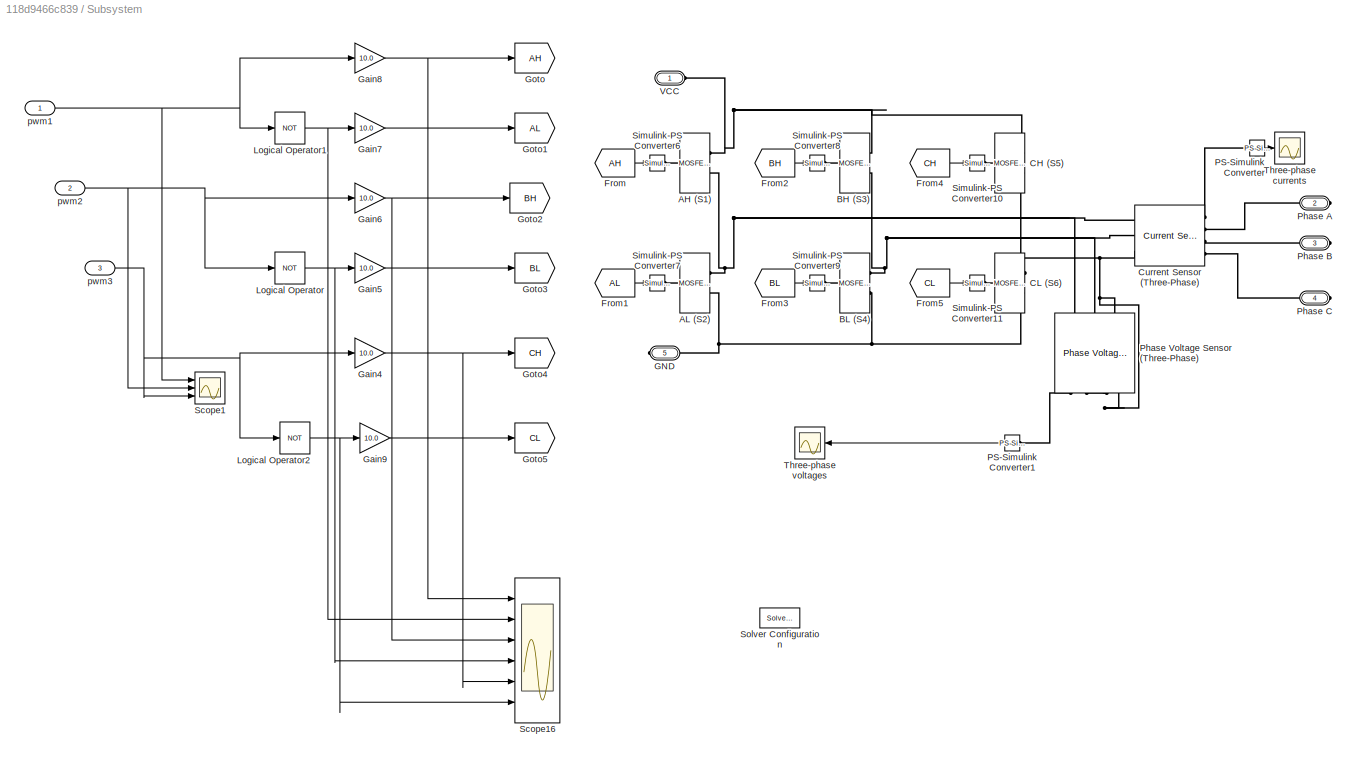
BLOCK [SubSystem] Subsystem
  Commented = on
  PortSchema = {"entries":[{"content":{"sides":[{"content":{"connectorIds":["In1","In2","In3"]},"type":"ConnectorPlacement.EquallySpacedRectSide","uuid":"ae018a65-5a33-4915-a156-b0f5ff0744c4"},{"content":{"connectorIds":["RConn1","RConn2","RConn3"],"side":"RIGHT"},"type":"ConnectorPlacement.EquallySpacedRectSide","uuid":"85679cce-0873-4dc4-89bb-01646651c655"},{"content":{"connectorIds":["LConn1"],"side":"TOP"},"...<+432ch>  <repeated x3 — deduplicated; at blocks: Subsystem, Subsystem12, Subsystem4>
  Ports = [3, 0, 0, 0, 0, 1, 4]
  RequestExecContextInheritance = off
BLOCK [Reference] Subsystem/AH (S1)  REF=ee_lib/Semiconductors &
Converters/MOSFET
(Ideal,
Switching)
  Ports = [0, 0, 0, 0, 0, 1, 2]
  SourceBlock = ee_lib/Semiconductors &\nConverters/MOSFET\n(Ideal,\nSwitching)
  SourceProductBaseCode = PS
  SourceType = MOSFET\n(Ideal,\nSwitching)
BLOCK [Reference] Subsystem/AL (S2)  REF=ee_lib/Semiconductors &
Converters/MOSFET
(Ideal,
Switching)
  Ports = [0, 0, 0, 0, 0, 1, 2]
  SourceBlock = ee_lib/Semiconductors &\nConverters/MOSFET\n(Ideal,\nSwitching)
  SourceProductBaseCode = PS
  SourceType = MOSFET\n(Ideal,\nSwitching)
BLOCK [Reference] Subsystem/BH (S3)  REF=ee_lib/Semiconductors &
Converters/MOSFET
(Ideal,
Switching)
  Ports = [0, 0, 0, 0, 0, 1, 2]
  SourceBlock = ee_lib/Semiconductors &\nConverters/MOSFET\n(Ideal,\nSwitching)
  SourceProductBaseCode = PS
  SourceType = MOSFET\n(Ideal,\nSwitching)
BLOCK [Reference] Subsystem/BL (S4)  REF=ee_lib/Semiconductors &
Converters/MOSFET
(Ideal,
Switching)
  Ports = [0, 0, 0, 0, 0, 1, 2]
  SourceBlock = ee_lib/Semiconductors &\nConverters/MOSFET\n(Ideal,\nSwitching)
  SourceProductBaseCode = PS
  SourceType = MOSFET\n(Ideal,\nSwitching)
BLOCK [Reference] Subsystem/CH (S5)  REF=ee_lib/Semiconductors &
Converters/MOSFET
(Ideal,
Switching)
  Ports = [0, 0, 0, 0, 0, 1, 2]
  SourceBlock = ee_lib/Semiconductors &\nConverters/MOSFET\n(Ideal,\nSwitching)
  SourceProductBaseCode = PS
  SourceType = MOSFET\n(Ideal,\nSwitching)
BLOCK [Reference] Subsystem/CL (S6)  REF=ee_lib/Semiconductors &
Converters/MOSFET
(Ideal,
Switching)
  Ports = [0, 0, 0, 0, 0, 1, 2]
  SourceBlock = ee_lib/Semiconductors &\nConverters/MOSFET\n(Ideal,\nSwitching)
  SourceProductBaseCode = PS
  SourceType = MOSFET\n(Ideal,\nSwitching)
BLOCK [Reference] Subsystem/Current Sensor (Three-Phase)  REF=ee_lib/Sensors &
Transducers/Current Sensor
(Three-Phase)
  Ports = [0, 0, 0, 0, 0, 3, 4]
  SourceBlock = ee_lib/Sensors &\nTransducers/Current Sensor\n(Three-Phase)
  SourceProductBaseCode = PS
  SourceType = Current Sensor\n(Three-Phase)
BLOCK [From] Subsystem/From
  GotoTag = AH
BLOCK [From] Subsystem/From1
  GotoTag = AL
BLOCK [From] Subsystem/From2
  GotoTag = BH
BLOCK [From] Subsystem/From3
  GotoTag = BL
BLOCK [From] Subsystem/From4
  GotoTag = CH
BLOCK [From] Subsystem/From5
  GotoTag = CL
BLOCK [PMIOPort] Subsystem/GND
  Port = 5
  Side = Right
BLOCK [Gain] Subsystem/Gain4
  Gain = 10.0
  OutDataTypeStr = double
BLOCK [Gain] Subsystem/Gain5
  Gain = 10.0
  OutDataTypeStr = double
BLOCK [Gain] Subsystem/Gain6
  Gain = 10.0
  OutDataTypeStr = double
BLOCK [Gain] Subsystem/Gain7
  Gain = 10.0
  OutDataTypeStr = double
BLOCK [Gain] Subsystem/Gain8
  Gain = 10.0
  OutDataTypeStr = double
BLOCK [Gain] Subsystem/Gain9
  Gain = 10.0
  OutDataTypeStr = double
BLOCK [Goto] Subsystem/Goto
  GotoTag = AH
BLOCK [Goto] Subsystem/Goto1
  GotoTag = AL
BLOCK [Goto] Subsystem/Goto2
  GotoTag = BH
BLOCK [Goto] Subsystem/Goto3
  GotoTag = BL
BLOCK [Goto] Subsystem/Goto4
  GotoTag = CH
BLOCK [Goto] Subsystem/Goto5
  GotoTag = CL
BLOCK [Logic] Subsystem/Logical Operator
  AllPortsSameDT = off
  Operator = NOT
  OutDataTypeStr = boolean
  Ports = [1, 1]
BLOCK [Logic] Subsystem/Logical Operator1
  AllPortsSameDT = off
  Operator = NOT
  OutDataTypeStr = boolean
  Ports = [1, 1]
BLOCK [Logic] Subsystem/Logical Operator2
  AllPortsSameDT = off
  Operator = NOT
  OutDataTypeStr = boolean
  Ports = [1, 1]
BLOCK [Reference] Subsystem/PS-Simulink Converter  REF=nesl_utility/PS-Simulink
Converter
  Ports = [0, 1, 0, 0, 0, 1]
  SourceBlock = nesl_utility/PS-Simulink\nConverter
  SourceProductBaseCode = SS
  SourceType = PS-Simulink\nConverter
BLOCK [Reference] Subsystem/PS-Simulink Converter1  REF=nesl_utility/PS-Simulink
Converter
  NameLocation = top
  Ports = [0, 1, 0, 0, 0, 1]
  SourceBlock = nesl_utility/PS-Simulink\nConverter
  SourceProductBaseCode = SS
  SourceType = PS-Simulink\nConverter
BLOCK [PMIOPort] Subsystem/Phase A
  Port = 2
  Side = Right
BLOCK [PMIOPort] Subsystem/Phase B
  Port = 3
  Side = Right
BLOCK [PMIOPort] Subsystem/Phase C
  Port = 4
  Side = Right
BLOCK [Reference] Subsystem/Phase Voltage Sensor (Three-Phase)  REF=ee_lib/Sensors &
Transducers/Phase Voltage Sensor
(Three-Phase)
  NameLocation = right
  Ports = [0, 0, 0, 0, 0, 3, 4]
  SourceBlock = ee_lib/Sensors &\nTransducers/Phase Voltage Sensor\n(Three-Phase)
  SourceProductBaseCode = PS
  SourceType = Phase Voltage Sensor\n(Three-Phase)
BLOCK [Scope] Subsystem/Scope1
  Floating = off
  NumInputPorts = 3
  Ports = [3]
  ScopeSpecificationString = Simulink.scopes.TimeScopeBlockCfg('CurrentConfiguration', extmgr.ConfigurationSet(extmgr.Configuration('Core','General UI',true),extmgr.Configuration('Core','Source UI',true),extmgr.Configuration('Sources','WiredSimulink',true,'DataLoggingVariableName','ScopeData7'),extmgr.Configuration('Visuals','Time Domain',true,'SerializedDisplays',{struct('MinYLimReal','-0.125','MaxYLimReal','1.125','YLabelRe...<+2763ch>  <repeated x3 — deduplicated; at blocks: Scope1>
BLOCK [Scope] Subsystem/Scope16
  Floating = off
  NumInputPorts = 6
  Ports = [6]
  ScopeSpecificationString = Simulink.scopes.TimeScopeBlockCfg('CurrentConfiguration', extmgr.ConfigurationSet(extmgr.Configuration('Core','General UI',true),extmgr.Configuration('Core','Source UI',true),extmgr.Configuration('Sources','WiredSimulink',true,'DataLoggingVariableName','ScopeData5'),extmgr.Configuration('Visuals','Time Domain',true,'SerializedDisplays',{struct('MinYLimReal','-1.25','MaxYLimReal','11.25','YLabelRea...<+2002ch>
BLOCK [Reference] Subsystem/Simulink-PS Converter10  REF=nesl_utility/Simulink-PS
Converter
  Ports = [1, 0, 0, 0, 0, 0, 1]
  SourceBlock = nesl_utility/Simulink-PS\nConverter
  SourceProductBaseCode = SS
  SourceType = Simulink-PS\nConverter
BLOCK [Reference] Subsystem/Simulink-PS Converter11  REF=nesl_utility/Simulink-PS
Converter
  Ports = [1, 0, 0, 0, 0, 0, 1]
  SourceBlock = nesl_utility/Simulink-PS\nConverter
  SourceProductBaseCode = SS
  SourceType = Simulink-PS\nConverter
BLOCK [Reference] Subsystem/Simulink-PS Converter6  REF=nesl_utility/Simulink-PS
Converter
  Ports = [1, 0, 0, 0, 0, 0, 1]
  SourceBlock = nesl_utility/Simulink-PS\nConverter
  SourceProductBaseCode = SS
  SourceType = Simulink-PS\nConverter
BLOCK [Reference] Subsystem/Simulink-PS Converter7  REF=nesl_utility/Simulink-PS
Converter
  Ports = [1, 0, 0, 0, 0, 0, 1]
  SourceBlock = nesl_utility/Simulink-PS\nConverter
  SourceProductBaseCode = SS
  SourceType = Simulink-PS\nConverter
BLOCK [Reference] Subsystem/Simulink-PS Converter8  REF=nesl_utility/Simulink-PS
Converter
  Ports = [1, 0, 0, 0, 0, 0, 1]
  SourceBlock = nesl_utility/Simulink-PS\nConverter
  SourceProductBaseCode = SS
  SourceType = Simulink-PS\nConverter
BLOCK [Reference] Subsystem/Simulink-PS Converter9  REF=nesl_utility/Simulink-PS
Converter
  Ports = [1, 0, 0, 0, 0, 0, 1]
  SourceBlock = nesl_utility/Simulink-PS\nConverter
  SourceProductBaseCode = SS
  SourceType = Simulink-PS\nConverter
BLOCK [Reference] Subsystem/Solver Configuration  REF=nesl_utility/Solver
Configuration
  Ports = [0, 0, 0, 0, 0, 0, 1]
  SourceBlock = nesl_utility/Solver\nConfiguration
  SourceProductBaseCode = SS,PW,VE
  SourceType = Solver\nConfiguration
BLOCK [Scope] Subsystem/Three-phase currents
  Floating = off
  NumInputPorts = 1
  Ports = [1]
  ScopeSpecificationString = Simulink.scopes.TimeScopeBlockCfg('CurrentConfiguration', extmgr.ConfigurationSet(extmgr.Configuration('Core','General UI',true),extmgr.Configuration('Core','Source UI',true),extmgr.Configuration('Sources','WiredSimulink',true,'DataLoggingVariableName','ScopeData6'),extmgr.Configuration('Visuals','Time Domain',true,'SerializedDisplays',{struct('MinYLimReal','-119.97458','MaxYLimReal','124.08115','...<+1521ch>
BLOCK [Scope] Subsystem/Three-phase voltages
  Floating = off
  NumInputPorts = 1
  Ports = [1]
  ScopeSpecificationString = Simulink.scopes.TimeScopeBlockCfg('CurrentConfiguration', extmgr.ConfigurationSet(extmgr.Configuration('Core','General UI',true),extmgr.Configuration('Core','Source UI',true),extmgr.Configuration('Sources','WiredSimulink',true,'DataLoggingVariableName','ScopeData7'),extmgr.Configuration('Visuals','Time Domain',true,'SerializedDisplays',{struct('MinYLimReal','-47.54106','MaxYLimReal','47.54119','YL...<+1615ch>
BLOCK [PMIOPort] Subsystem/VCC
  Side = Left
BLOCK [Inport] Subsystem/pwm1
BLOCK [Inport] Subsystem/pwm2
  Port = 2
BLOCK [Inport] Subsystem/pwm3
  Port = 3
BLOCK [SubSystem] Subsystem1
  Commented = on
  PortSchema = {"entries":[{"content":{"sides":[{"content":{"connectorIds":["LConn1","LConn2","LConn3"]},"type":"ConnectorPlacement.EquallySpacedRectSide","uuid":"dbbc7ef1-15e1-407a-bb12-b123d1fc9109"},{"content":{"connectorIds":["RConn1","RConn2","RConn3"],"side":"RIGHT"},"type":"ConnectorPlacement.EquallySpacedRectSide","uuid":"8b21e888-66b1-4e2a-b4f7-566dd74beec7"},{"content":{"connectorIds":["Out1"],"side":"...<+287ch>
  Ports = [0, 1, 0, 0, 0, 3, 3]
  RequestExecContextInheritance = off
BLOCK [PMIOPort] Subsystem1/AI
  Side = Left
BLOCK [PMIOPort] Subsystem1/AO
  Port = 4
  Side = Right
BLOCK [PMIOPort] Subsystem1/BI
  Port = 2
  Side = Left
BLOCK [PMIOPort] Subsystem1/BO
  NameLocation = top
  Port = 6
  Side = Right
BLOCK [PMIOPort] Subsystem1/CI
  Port = 3
  Side = Left
BLOCK [PMIOPort] Subsystem1/CO
  Port = 5
  Side = Right
BLOCK [Reference] Subsystem1/Current Sensor  REF=fl_lib/Electrical/Electrical Sensors/Current Sensor
  Ports = [0, 0, 0, 0, 0, 1, 2]
  SourceBlock = fl_lib/Electrical/Electrical Sensors/Current Sensor
  SourceProductBaseCode = PW,SS,VE
  SourceType = Current Sensor
BLOCK [Reference] Subsystem1/Current Sensor1  REF=fl_lib/Electrical/Electrical Sensors/Current Sensor
  Ports = [0, 0, 0, 0, 0, 1, 2]
  SourceBlock = fl_lib/Electrical/Electrical Sensors/Current Sensor
  SourceProductBaseCode = PW,SS,VE
  SourceType = Current Sensor
BLOCK [Reference] Subsystem1/Current Sensor2  REF=fl_lib/Electrical/Electrical Sensors/Current Sensor
  Ports = [0, 0, 0, 0, 0, 1, 2]
  SourceBlock = fl_lib/Electrical/Electrical Sensors/Current Sensor
  SourceProductBaseCode = PW,SS,VE
  SourceType = Current Sensor
BLOCK [Mux] Subsystem1/Mux4
  DisplayOption = bar
  Inputs = 3
  Ports = [3, 1]
BLOCK [Outport] Subsystem1/Out1
BLOCK [Reference] Subsystem1/PS-Simulink Converter1  REF=nesl_utility/PS-Simulink
Converter
  AttributesFormatString = %<Unit>
  Ports = [0, 1, 0, 0, 0, 1]
  SourceBlock = nesl_utility/PS-Simulink\nConverter
  SourceProductBaseCode = SS,PW,VE
  SourceType = PS-Simulink\nConverter
BLOCK [Reference] Subsystem1/PS-Simulink Converter4  REF=nesl_utility/PS-Simulink
Converter
  AttributesFormatString = %<Unit>
  Ports = [0, 1, 0, 0, 0, 1]
  SourceBlock = nesl_utility/PS-Simulink\nConverter
  SourceProductBaseCode = SS,PW,VE
  SourceType = PS-Simulink\nConverter
BLOCK [Reference] Subsystem1/PS-Simulink Converter5  REF=nesl_utility/PS-Simulink
Converter
  AttributesFormatString = %<Unit>
  Ports = [0, 1, 0, 0, 0, 1]
  SourceBlock = nesl_utility/PS-Simulink\nConverter
  SourceProductBaseCode = SS,PW,VE
  SourceType = PS-Simulink\nConverter
BLOCK [SubSystem] Subsystem10
  Commented = on
  PortSchema = {"entries":[{"content":{"sides":[{"content":{"connectorIds":["LConn1","LConn2"]},"type":"ConnectorPlacement.EquallySpacedRectSide","uuid":"dffb654e-a19d-418f-9ad8-06d1e7de3d45"},{"content":{"connectorIds":["Out1"],"side":"RIGHT"},"type":"ConnectorPlacement.EquallySpacedRectSide","uuid":"3b6ff8f3-a1b5-4715-8b2e-8ea31748caf5"},{"content":{"connectorIds":["LConn3","LConn4"],"side":"TOP"},"type":"Conn...<+269ch>
  Ports = [0, 1, 0, 0, 0, 4]
  RequestExecContextInheritance = off
BLOCK [PMIOPort] Subsystem10/AV
  Side = Left
BLOCK [PMIOPort] Subsystem10/BV
  Port = 2
  Side = Left
BLOCK [PMIOPort] Subsystem10/CV
  Port = 3
  Side = Left
BLOCK [PMIOPort] Subsystem10/GND
  Port = 4
  Side = Left
BLOCK [Mux] Subsystem10/Mux4
  DisplayOption = bar
  Inputs = 3
  Ports = [3, 1]
BLOCK [Outport] Subsystem10/OUT
BLOCK [Reference] Subsystem10/PS-Simulink Converter  REF=nesl_utility/PS-Simulink
Converter
  Ports = [0, 1, 0, 0, 0, 1]
  SourceBlock = nesl_utility/PS-Simulink\nConverter
  SourceProductBaseCode = SS,PW,VE
  SourceType = PS-Simulink\nConverter
BLOCK [Reference] Subsystem10/PS-Simulink Converter1  REF=nesl_utility/PS-Simulink
Converter
  AttributesFormatString = %<Unit>
  Ports = [0, 1, 0, 0, 0, 1]
  SourceBlock = nesl_utility/PS-Simulink\nConverter
  SourceProductBaseCode = SS,PW,VE
  SourceType = PS-Simulink\nConverter
BLOCK [Reference] Subsystem10/PS-Simulink Converter2  REF=nesl_utility/PS-Simulink
Converter
  AttributesFormatString = %<Unit>
  Ports = [0, 1, 0, 0, 0, 1]
  SourceBlock = nesl_utility/PS-Simulink\nConverter
  SourceProductBaseCode = SS,PW,VE
  SourceType = PS-Simulink\nConverter
BLOCK [Reference] Subsystem10/Voltage Sensor1  REF=fl_lib/Electrical/Electrical Sensors/Voltage Sensor
  Ports = [0, 0, 0, 0, 0, 1, 2]
  SourceBlock = fl_lib/Electrical/Electrical Sensors/Voltage Sensor
  SourceProductBaseCode = PW,SS,VE
  SourceType = Voltage Sensor
BLOCK [Reference] Subsystem10/Voltage Sensor2  REF=fl_lib/Electrical/Electrical Sensors/Voltage Sensor
  Ports = [0, 0, 0, 0, 0, 1, 2]
  SourceBlock = fl_lib/Electrical/Electrical Sensors/Voltage Sensor
  SourceProductBaseCode = PW,SS,VE
  SourceType = Voltage Sensor
BLOCK [Reference] Subsystem10/Voltage Sensor3  REF=fl_lib/Electrical/Electrical Sensors/Voltage Sensor
  Ports = [0, 0, 0, 0, 0, 1, 2]
  SourceBlock = fl_lib/Electrical/Electrical Sensors/Voltage Sensor
  SourceProductBaseCode = PW,SS,VE
  SourceType = Voltage Sensor
BLOCK [SubSystem] Subsystem11
  Commented = on
  Ports = [0, 1, 0, 0, 0, 4]
  RequestExecContextInheritance = off
BLOCK [PMIOPort] Subsystem11/AV
  Side = Left
BLOCK [PMIOPort] Subsystem11/BV
  Port = 2
  Side = Left
BLOCK [PMIOPort] Subsystem11/CV
  Port = 3
  Side = Left
BLOCK [PMIOPort] Subsystem11/GND
  Port = 4
  Side = Left
BLOCK [Mux] Subsystem11/Mux4
  DisplayOption = bar
  Inputs = 3
  Ports = [3, 1]
BLOCK [Outport] Subsystem11/OUT
BLOCK [Reference] Subsystem11/PS-Simulink Converter  REF=nesl_utility/PS-Simulink
Converter
  Ports = [0, 1, 0, 0, 0, 1]
  SourceBlock = nesl_utility/PS-Simulink\nConverter
  SourceProductBaseCode = SS,PW,VE
  SourceType = PS-Simulink\nConverter
BLOCK [Reference] Subsystem11/PS-Simulink Converter1  REF=nesl_utility/PS-Simulink
Converter
  AttributesFormatString = %<Unit>
  Ports = [0, 1, 0, 0, 0, 1]
  SourceBlock = nesl_utility/PS-Simulink\nConverter
  SourceProductBaseCode = SS,PW,VE
  SourceType = PS-Simulink\nConverter
BLOCK [Reference] Subsystem11/PS-Simulink Converter2  REF=nesl_utility/PS-Simulink
Converter
  AttributesFormatString = %<Unit>
  Ports = [0, 1, 0, 0, 0, 1]
  SourceBlock = nesl_utility/PS-Simulink\nConverter
  SourceProductBaseCode = SS,PW,VE
  SourceType = PS-Simulink\nConverter
BLOCK [Reference] Subsystem11/Voltage Sensor1  REF=fl_lib/Electrical/Electrical Sensors/Voltage Sensor
  Ports = [0, 0, 0, 0, 0, 1, 2]
  SourceBlock = fl_lib/Electrical/Electrical Sensors/Voltage Sensor
  SourceProductBaseCode = PW,SS,VE
  SourceType = Voltage Sensor
BLOCK [Reference] Subsystem11/Voltage Sensor2  REF=fl_lib/Electrical/Electrical Sensors/Voltage Sensor
  Ports = [0, 0, 0, 0, 0, 1, 2]
  SourceBlock = fl_lib/Electrical/Electrical Sensors/Voltage Sensor
  SourceProductBaseCode = PW,SS,VE
  SourceType = Voltage Sensor
BLOCK [Reference] Subsystem11/Voltage Sensor3  REF=fl_lib/Electrical/Electrical Sensors/Voltage Sensor
  Ports = [0, 0, 0, 0, 0, 1, 2]
  SourceBlock = fl_lib/Electrical/Electrical Sensors/Voltage Sensor
  SourceProductBaseCode = PW,SS,VE
  SourceType = Voltage Sensor
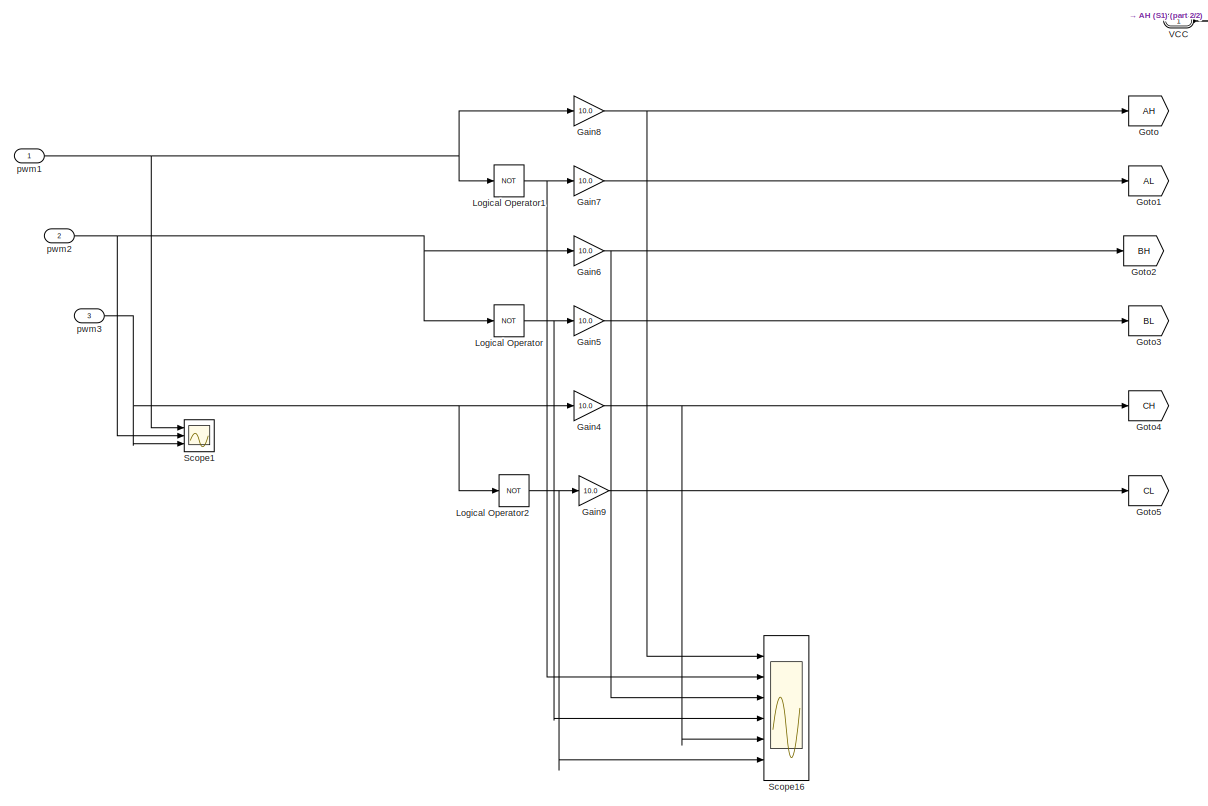
[diagram: Subsystem12 - part 1/2, left side, full height]
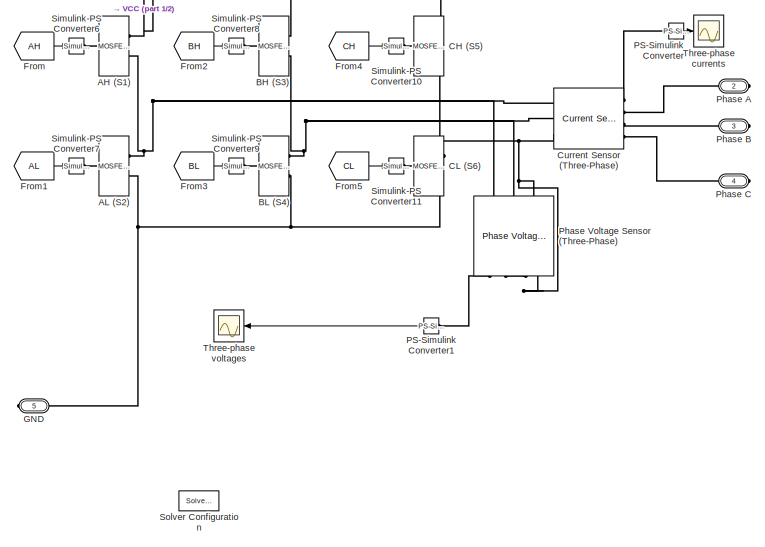
[diagram: Subsystem12 - part 2/2, middle right region]
BLOCK [SubSystem] Subsystem12
  Commented = on
  Ports = [3, 0, 0, 0, 0, 1, 4]
  RequestExecContextInheritance = off
BLOCK [Reference] Subsystem12/AH (S1)  REF=ee_lib/Semiconductors &
Converters/MOSFET
(Ideal,
Switching)
  Ports = [0, 0, 0, 0, 0, 1, 2]
  SourceBlock = ee_lib/Semiconductors &\nConverters/MOSFET\n(Ideal,\nSwitching)
  SourceProductBaseCode = PS
  SourceType = MOSFET\n(Ideal,\nSwitching)
BLOCK [Reference] Subsystem12/AL (S2)  REF=ee_lib/Semiconductors &
Converters/MOSFET
(Ideal,
Switching)
  Ports = [0, 0, 0, 0, 0, 1, 2]
  SourceBlock = ee_lib/Semiconductors &\nConverters/MOSFET\n(Ideal,\nSwitching)
  SourceProductBaseCode = PS
  SourceType = MOSFET\n(Ideal,\nSwitching)
BLOCK [Reference] Subsystem12/BH (S3)  REF=ee_lib/Semiconductors &
Converters/MOSFET
(Ideal,
Switching)
  Ports = [0, 0, 0, 0, 0, 1, 2]
  SourceBlock = ee_lib/Semiconductors &\nConverters/MOSFET\n(Ideal,\nSwitching)
  SourceProductBaseCode = PS
  SourceType = MOSFET\n(Ideal,\nSwitching)
BLOCK [Reference] Subsystem12/BL (S4)  REF=ee_lib/Semiconductors &
Converters/MOSFET
(Ideal,
Switching)
  Ports = [0, 0, 0, 0, 0, 1, 2]
  SourceBlock = ee_lib/Semiconductors &\nConverters/MOSFET\n(Ideal,\nSwitching)
  SourceProductBaseCode = PS
  SourceType = MOSFET\n(Ideal,\nSwitching)
BLOCK [Reference] Subsystem12/CH (S5)  REF=ee_lib/Semiconductors &
Converters/MOSFET
(Ideal,
Switching)
  Ports = [0, 0, 0, 0, 0, 1, 2]
  SourceBlock = ee_lib/Semiconductors &\nConverters/MOSFET\n(Ideal,\nSwitching)
  SourceProductBaseCode = PS
  SourceType = MOSFET\n(Ideal,\nSwitching)
BLOCK [Reference] Subsystem12/CL (S6)  REF=ee_lib/Semiconductors &
Converters/MOSFET
(Ideal,
Switching)
  Ports = [0, 0, 0, 0, 0, 1, 2]
  SourceBlock = ee_lib/Semiconductors &\nConverters/MOSFET\n(Ideal,\nSwitching)
  SourceProductBaseCode = PS
  SourceType = MOSFET\n(Ideal,\nSwitching)
BLOCK [Reference] Subsystem12/Current Sensor (Three-Phase)  REF=ee_lib/Sensors &
Transducers/Current Sensor
(Three-Phase)
  Ports = [0, 0, 0, 0, 0, 3, 4]
  SourceBlock = ee_lib/Sensors &\nTransducers/Current Sensor\n(Three-Phase)
  SourceProductBaseCode = PS
  SourceType = Current Sensor\n(Three-Phase)
BLOCK [From] Subsystem12/From
  GotoTag = AH
BLOCK [From] Subsystem12/From1
  GotoTag = AL
BLOCK [From] Subsystem12/From2
  GotoTag = BH
BLOCK [From] Subsystem12/From3
  GotoTag = BL
BLOCK [From] Subsystem12/From4
  GotoTag = CH
BLOCK [From] Subsystem12/From5
  GotoTag = CL
BLOCK [PMIOPort] Subsystem12/GND
  Port = 5
  Side = Right
BLOCK [Gain] Subsystem12/Gain4
  Gain = 10.0
  OutDataTypeStr = double
BLOCK [Gain] Subsystem12/Gain5
  Gain = 10.0
  OutDataTypeStr = double
BLOCK [Gain] Subsystem12/Gain6
  Gain = 10.0
  OutDataTypeStr = double
BLOCK [Gain] Subsystem12/Gain7
  Gain = 10.0
  OutDataTypeStr = double
BLOCK [Gain] Subsystem12/Gain8
  Gain = 10.0
  OutDataTypeStr = double
BLOCK [Gain] Subsystem12/Gain9
  Gain = 10.0
  OutDataTypeStr = double
BLOCK [Goto] Subsystem12/Goto
  GotoTag = AH
BLOCK [Goto] Subsystem12/Goto1
  GotoTag = AL
BLOCK [Goto] Subsystem12/Goto2
  GotoTag = BH
BLOCK [Goto] Subsystem12/Goto3
  GotoTag = BL
BLOCK [Goto] Subsystem12/Goto4
  GotoTag = CH
BLOCK [Goto] Subsystem12/Goto5
  GotoTag = CL
BLOCK [Logic] Subsystem12/Logical Operator
  AllPortsSameDT = off
  Operator = NOT
  OutDataTypeStr = boolean
  Ports = [1, 1]
BLOCK [Logic] Subsystem12/Logical Operator1
  AllPortsSameDT = off
  Operator = NOT
  OutDataTypeStr = boolean
  Ports = [1, 1]
BLOCK [Logic] Subsystem12/Logical Operator2
  AllPortsSameDT = off
  Operator = NOT
  OutDataTypeStr = boolean
  Ports = [1, 1]
BLOCK [Reference] Subsystem12/PS-Simulink Converter  REF=nesl_utility/PS-Simulink
Converter
  Ports = [0, 1, 0, 0, 0, 1]
  SourceBlock = nesl_utility/PS-Simulink\nConverter
  SourceProductBaseCode = SS
  SourceType = PS-Simulink\nConverter
BLOCK [Reference] Subsystem12/PS-Simulink Converter1  REF=nesl_utility/PS-Simulink
Converter
  NameLocation = top
  Ports = [0, 1, 0, 0, 0, 1]
  SourceBlock = nesl_utility/PS-Simulink\nConverter
  SourceProductBaseCode = SS
  SourceType = PS-Simulink\nConverter
BLOCK [PMIOPort] Subsystem12/Phase A
  Port = 2
  Side = Right
BLOCK [PMIOPort] Subsystem12/Phase B
  Port = 3
  Side = Right
BLOCK [PMIOPort] Subsystem12/Phase C
  Port = 4
  Side = Right
BLOCK [Reference] Subsystem12/Phase Voltage Sensor (Three-Phase)  REF=ee_lib/Sensors &
Transducers/Phase Voltage Sensor
(Three-Phase)
  NameLocation = right
  Ports = [0, 0, 0, 0, 0, 3, 4]
  SourceBlock = ee_lib/Sensors &\nTransducers/Phase Voltage Sensor\n(Three-Phase)
  SourceProductBaseCode = PS
  SourceType = Phase Voltage Sensor\n(Three-Phase)
BLOCK [Scope] Subsystem12/Scope1
  Floating = off
  NumInputPorts = 3
  Ports = [3]
BLOCK [Scope] Subsystem12/Scope16
  Floating = off
  NumInputPorts = 6
  Ports = [6]
  ScopeSpecificationString = Simulink.scopes.TimeScopeBlockCfg('CurrentConfiguration', extmgr.ConfigurationSet(extmgr.Configuration('Core','General UI',true),extmgr.Configuration('Core','Source UI',true),extmgr.Configuration('Sources','WiredSimulink',true,'DataLoggingVariableName','ScopeData5'),extmgr.Configuration('Visuals','Time Domain',true,'SerializedDisplays',{struct('MinYLimReal','-1.25','MaxYLimReal','11.25','YLabelRea...<+2002ch>
BLOCK [Reference] Subsystem12/Simulink-PS Converter10  REF=nesl_utility/Simulink-PS
Converter
  Ports = [1, 0, 0, 0, 0, 0, 1]
  SourceBlock = nesl_utility/Simulink-PS\nConverter
  SourceProductBaseCode = SS
  SourceType = Simulink-PS\nConverter
BLOCK [Reference] Subsystem12/Simulink-PS Converter11  REF=nesl_utility/Simulink-PS
Converter
  Ports = [1, 0, 0, 0, 0, 0, 1]
  SourceBlock = nesl_utility/Simulink-PS\nConverter
  SourceProductBaseCode = SS
  SourceType = Simulink-PS\nConverter
BLOCK [Reference] Subsystem12/Simulink-PS Converter6  REF=nesl_utility/Simulink-PS
Converter
  Ports = [1, 0, 0, 0, 0, 0, 1]
  SourceBlock = nesl_utility/Simulink-PS\nConverter
  SourceProductBaseCode = SS
  SourceType = Simulink-PS\nConverter
BLOCK [Reference] Subsystem12/Simulink-PS Converter7  REF=nesl_utility/Simulink-PS
Converter
  Ports = [1, 0, 0, 0, 0, 0, 1]
  SourceBlock = nesl_utility/Simulink-PS\nConverter
  SourceProductBaseCode = SS
  SourceType = Simulink-PS\nConverter
BLOCK [Reference] Subsystem12/Simulink-PS Converter8  REF=nesl_utility/Simulink-PS
Converter
  Ports = [1, 0, 0, 0, 0, 0, 1]
  SourceBlock = nesl_utility/Simulink-PS\nConverter
  SourceProductBaseCode = SS
  SourceType = Simulink-PS\nConverter
BLOCK [Reference] Subsystem12/Simulink-PS Converter9  REF=nesl_utility/Simulink-PS
Converter
  Ports = [1, 0, 0, 0, 0, 0, 1]
  SourceBlock = nesl_utility/Simulink-PS\nConverter
  SourceProductBaseCode = SS
  SourceType = Simulink-PS\nConverter
BLOCK [Reference] Subsystem12/Solver Configuration  REF=nesl_utility/Solver
Configuration
  Ports = [0, 0, 0, 0, 0, 0, 1]
  SourceBlock = nesl_utility/Solver\nConfiguration
  SourceProductBaseCode = SS,PW,VE
  SourceType = Solver\nConfiguration
BLOCK [Scope] Subsystem12/Three-phase currents
  Floating = off
  NumInputPorts = 1
  Ports = [1]
  ScopeSpecificationString = Simulink.scopes.TimeScopeBlockCfg('CurrentConfiguration', extmgr.ConfigurationSet(extmgr.Configuration('Core','General UI',true),extmgr.Configuration('Core','Source UI',true),extmgr.Configuration('Sources','WiredSimulink',true,'DataLoggingVariableName','ScopeData6'),extmgr.Configuration('Visuals','Time Domain',true,'SerializedDisplays',{struct('MinYLimReal','-119.97458','MaxYLimReal','124.08115','...<+1521ch>
BLOCK [Scope] Subsystem12/Three-phase voltages
  Floating = off
  NumInputPorts = 1
  Ports = [1]
  ScopeSpecificationString = Simulink.scopes.TimeScopeBlockCfg('CurrentConfiguration', extmgr.ConfigurationSet(extmgr.Configuration('Core','General UI',true),extmgr.Configuration('Core','Source UI',true),extmgr.Configuration('Sources','WiredSimulink',true,'DataLoggingVariableName','ScopeData7'),extmgr.Configuration('Visuals','Time Domain',true,'SerializedDisplays',{struct('MinYLimReal','-47.54106','MaxYLimReal','47.54119','YL...<+1615ch>
BLOCK [PMIOPort] Subsystem12/VCC
  Side = Left
BLOCK [Inport] Subsystem12/pwm1
BLOCK [Inport] Subsystem12/pwm2
  Port = 2
BLOCK [Inport] Subsystem12/pwm3
  Port = 3
BLOCK [SubSystem] Subsystem13
  Ports = [4, 3]
  RequestExecContextInheritance = off
BLOCK [Outport] Subsystem13/0
  Port = 3
BLOCK [Inport] Subsystem13/A
BLOCK [Sum] Subsystem13/Add1
  IconShape = rectangular
  Inputs = +-
  Ports = [2, 1]
BLOCK [Sum] Subsystem13/Add2
  IconShape = rectangular
  Ports = [2, 1]
BLOCK [Sum] Subsystem13/Add3
  IconShape = rectangular
  Inputs = +++
  Ports = [3, 1]
BLOCK [Sum] Subsystem13/Add4
  IconShape = rectangular
  Inputs = ---
  Ports = [3, 1]
BLOCK [Sum] Subsystem13/Add5
  IconShape = rectangular
  Inputs = +++
  Ports = [3, 1]
BLOCK [Inport] Subsystem13/B
  Port = 2
BLOCK [Inport] Subsystem13/C
  Port = 3
BLOCK [Constant] Subsystem13/Constant
  Value = 2*pi/3
BLOCK [Constant] Subsystem13/Constant1
  Value = 0.5
BLOCK [Trigonometry] Subsystem13/Cos
  Operator = cos
  Ports = [1, 1]
BLOCK [Trigonometry] Subsystem13/Cos1
  Operator = cos
  Ports = [1, 1]
BLOCK [Trigonometry] Subsystem13/Cos2
  Operator = cos
  Ports = [1, 1]
BLOCK [Outport] Subsystem13/D
BLOCK [Gain] Subsystem13/Gain
  Gain = 2/3
BLOCK [Gain] Subsystem13/Gain1
  Gain = 2/3
BLOCK [Gain] Subsystem13/Gain2
  Gain = 2/3
BLOCK [Product] Subsystem13/Product
  Ports = [2, 1]
BLOCK [Product] Subsystem13/Product1
  Ports = [2, 1]
BLOCK [Product] Subsystem13/Product2
  Ports = [2, 1]
BLOCK [Product] Subsystem13/Product3
  Ports = [2, 1]
BLOCK [Product] Subsystem13/Product4
  Ports = [2, 1]
BLOCK [Product] Subsystem13/Product5
  Ports = [2, 1]
BLOCK [Product] Subsystem13/Product6
  Ports = [2, 1]
BLOCK [Product] Subsystem13/Product7
  Ports = [2, 1]
BLOCK [Product] Subsystem13/Product8
  Ports = [2, 1]
BLOCK [Outport] Subsystem13/Q
  Port = 2
BLOCK [Trigonometry] Subsystem13/Sin
  Ports = [1, 1]
BLOCK [Trigonometry] Subsystem13/Sin1
  Ports = [1, 1]
BLOCK [Trigonometry] Subsystem13/Sin2
  Ports = [1, 1]
BLOCK [Inport] Subsystem13/Theta
  Port = 4
BLOCK [SubSystem] Subsystem14
  Ports = [4, 3]
  RequestExecContextInheritance = off
BLOCK [Outport] Subsystem14/0
  Port = 3
BLOCK [Inport] Subsystem14/A
BLOCK [Sum] Subsystem14/Add1
  IconShape = rectangular
  Inputs = +-
  Ports = [2, 1]
BLOCK [Sum] Subsystem14/Add2
  IconShape = rectangular
  Ports = [2, 1]
BLOCK [Sum] Subsystem14/Add3
  IconShape = rectangular
  Inputs = +++
  Ports = [3, 1]
BLOCK [Sum] Subsystem14/Add4
  IconShape = rectangular
  Inputs = ---
  Ports = [3, 1]
BLOCK [Sum] Subsystem14/Add5
  IconShape = rectangular
  Inputs = +++
  Ports = [3, 1]
BLOCK [Inport] Subsystem14/B
  Port = 2
BLOCK [Inport] Subsystem14/C
  Port = 3
BLOCK [Constant] Subsystem14/Constant
  Value = 2*pi/3
BLOCK [Constant] Subsystem14/Constant1
  Value = 0.5
BLOCK [Trigonometry] Subsystem14/Cos
  Operator = cos
  Ports = [1, 1]
BLOCK [Trigonometry] Subsystem14/Cos1
  Operator = cos
  Ports = [1, 1]
BLOCK [Trigonometry] Subsystem14/Cos2
  Operator = cos
  Ports = [1, 1]
BLOCK [Outport] Subsystem14/D
BLOCK [Gain] Subsystem14/Gain
  Gain = 2/3
BLOCK [Gain] Subsystem14/Gain1
  Gain = 2/3
BLOCK [Gain] Subsystem14/Gain2
  Gain = 2/3
BLOCK [Product] Subsystem14/Product
  Ports = [2, 1]
BLOCK [Product] Subsystem14/Product1
  Ports = [2, 1]
BLOCK [Product] Subsystem14/Product2
  Ports = [2, 1]
BLOCK [Product] Subsystem14/Product3
  Ports = [2, 1]
BLOCK [Product] Subsystem14/Product4
  Ports = [2, 1]
BLOCK [Product] Subsystem14/Product5
  Ports = [2, 1]
BLOCK [Product] Subsystem14/Product6
  Ports = [2, 1]
BLOCK [Product] Subsystem14/Product7
  Ports = [2, 1]
BLOCK [Product] Subsystem14/Product8
  Ports = [2, 1]
BLOCK [Outport] Subsystem14/Q
  Port = 2
BLOCK [Trigonometry] Subsystem14/Sin
  Ports = [1, 1]
BLOCK [Trigonometry] Subsystem14/Sin1
  Ports = [1, 1]
BLOCK [Trigonometry] Subsystem14/Sin2
  Ports = [1, 1]
BLOCK [Inport] Subsystem14/Theta
  Port = 4
BLOCK [SubSystem] Subsystem2
  Commented = on
  PortSchema = {"entries":[{"content":{"sides":[{"content":{"connectorIds":["LConn1","LConn2"]},"type":"ConnectorPlacement.EquallySpacedRectSide","uuid":"dffb654e-a19d-418f-9ad8-06d1e7de3d45"},{"content":{"connectorIds":["Out1"],"side":"RIGHT"},"type":"ConnectorPlacement.EquallySpacedRectSide","uuid":"3b6ff8f3-a1b5-4715-8b2e-8ea31748caf5"},{"content":{"connectorIds":["LConn3","LConn4"],"side":"TOP"},"type":"Conn...<+269ch>
  Ports = [0, 1, 0, 0, 0, 4]
  RequestExecContextInheritance = off
BLOCK [PMIOPort] Subsystem2/AV
  Side = Left
BLOCK [PMIOPort] Subsystem2/BV
  Port = 2
  Side = Left
BLOCK [PMIOPort] Subsystem2/CV
  Port = 3
  Side = Left
BLOCK [PMIOPort] Subsystem2/GND
  Port = 4
  Side = Left
BLOCK [Mux] Subsystem2/Mux4
  DisplayOption = bar
  Inputs = 3
  Ports = [3, 1]
BLOCK [Outport] Subsystem2/OUT
BLOCK [Reference] Subsystem2/PS-Simulink Converter  REF=nesl_utility/PS-Simulink
Converter
  Ports = [0, 1, 0, 0, 0, 1]
  SourceBlock = nesl_utility/PS-Simulink\nConverter
  SourceProductBaseCode = SS,PW,VE
  SourceType = PS-Simulink\nConverter
BLOCK [Reference] Subsystem2/PS-Simulink Converter1  REF=nesl_utility/PS-Simulink
Converter
  AttributesFormatString = %<Unit>
  Ports = [0, 1, 0, 0, 0, 1]
  SourceBlock = nesl_utility/PS-Simulink\nConverter
  SourceProductBaseCode = SS,PW,VE
  SourceType = PS-Simulink\nConverter
BLOCK [Reference] Subsystem2/PS-Simulink Converter2  REF=nesl_utility/PS-Simulink
Converter
  AttributesFormatString = %<Unit>
  Ports = [0, 1, 0, 0, 0, 1]
  SourceBlock = nesl_utility/PS-Simulink\nConverter
  SourceProductBaseCode = SS,PW,VE
  SourceType = PS-Simulink\nConverter
BLOCK [Reference] Subsystem2/Voltage Sensor1  REF=fl_lib/Electrical/Electrical Sensors/Voltage Sensor
  Ports = [0, 0, 0, 0, 0, 1, 2]
  SourceBlock = fl_lib/Electrical/Electrical Sensors/Voltage Sensor
  SourceProductBaseCode = PW,SS,VE
  SourceType = Voltage Sensor
BLOCK [Reference] Subsystem2/Voltage Sensor2  REF=fl_lib/Electrical/Electrical Sensors/Voltage Sensor
  Ports = [0, 0, 0, 0, 0, 1, 2]
  SourceBlock = fl_lib/Electrical/Electrical Sensors/Voltage Sensor
  SourceProductBaseCode = PW,SS,VE
  SourceType = Voltage Sensor
BLOCK [Reference] Subsystem2/Voltage Sensor3  REF=fl_lib/Electrical/Electrical Sensors/Voltage Sensor
  Ports = [0, 0, 0, 0, 0, 1, 2]
  SourceBlock = fl_lib/Electrical/Electrical Sensors/Voltage Sensor
  SourceProductBaseCode = PW,SS,VE
  SourceType = Voltage Sensor
BLOCK [SubSystem] Subsystem3
  Commented = on
  Ports = [0, 1, 0, 0, 0, 4]
  RequestExecContextInheritance = off
BLOCK [PMIOPort] Subsystem3/AV
  Side = Left
BLOCK [PMIOPort] Subsystem3/BV
  Port = 2
  Side = Left
BLOCK [PMIOPort] Subsystem3/CV
  Port = 3
  Side = Left
BLOCK [PMIOPort] Subsystem3/GND
  Port = 4
  Side = Left
BLOCK [Mux] Subsystem3/Mux4
  DisplayOption = bar
  Inputs = 3
  Ports = [3, 1]
BLOCK [Outport] Subsystem3/OUT
BLOCK [Reference] Subsystem3/PS-Simulink Converter  REF=nesl_utility/PS-Simulink
Converter
  Ports = [0, 1, 0, 0, 0, 1]
  SourceBlock = nesl_utility/PS-Simulink\nConverter
  SourceProductBaseCode = SS,PW,VE
  SourceType = PS-Simulink\nConverter
BLOCK [Reference] Subsystem3/PS-Simulink Converter1  REF=nesl_utility/PS-Simulink
Converter
  AttributesFormatString = %<Unit>
  Ports = [0, 1, 0, 0, 0, 1]
  SourceBlock = nesl_utility/PS-Simulink\nConverter
  SourceProductBaseCode = SS,PW,VE
  SourceType = PS-Simulink\nConverter
BLOCK [Reference] Subsystem3/PS-Simulink Converter2  REF=nesl_utility/PS-Simulink
Converter
  AttributesFormatString = %<Unit>
  Ports = [0, 1, 0, 0, 0, 1]
  SourceBlock = nesl_utility/PS-Simulink\nConverter
  SourceProductBaseCode = SS,PW,VE
  SourceType = PS-Simulink\nConverter
BLOCK [Reference] Subsystem3/Voltage Sensor1  REF=fl_lib/Electrical/Electrical Sensors/Voltage Sensor
  Ports = [0, 0, 0, 0, 0, 1, 2]
  SourceBlock = fl_lib/Electrical/Electrical Sensors/Voltage Sensor
  SourceProductBaseCode = PW,SS,VE
  SourceType = Voltage Sensor
BLOCK [Reference] Subsystem3/Voltage Sensor2  REF=fl_lib/Electrical/Electrical Sensors/Voltage Sensor
  Ports = [0, 0, 0, 0, 0, 1, 2]
  SourceBlock = fl_lib/Electrical/Electrical Sensors/Voltage Sensor
  SourceProductBaseCode = PW,SS,VE
  SourceType = Voltage Sensor
BLOCK [Reference] Subsystem3/Voltage Sensor3  REF=fl_lib/Electrical/Electrical Sensors/Voltage Sensor
  Ports = [0, 0, 0, 0, 0, 1, 2]
  SourceBlock = fl_lib/Electrical/Electrical Sensors/Voltage Sensor
  SourceProductBaseCode = PW,SS,VE
  SourceType = Voltage Sensor
BLOCK [SubSystem] Subsystem4
  Commented = on
  Ports = [3, 0, 0, 0, 0, 1, 4]
  RequestExecContextInheritance = off
BLOCK [PMIOPort] Subsystem4/A
  Port = 2
  Side = Right
BLOCK [PMIOPort] Subsystem4/B
  Port = 3
  Side = Right
BLOCK [PMIOPort] Subsystem4/C
  Port = 4
  Side = Right
BLOCK [SubSystem] Subsystem4/GATED
  Ports = [3, 0, 0, 0, 0, 0, 12]
  RequestExecContextInheritance = off
BLOCK [Reference] Subsystem4/GATED/Electrical Reference1  REF=fl_lib/Electrical/Electrical Elements/Electrical Reference
  NameLocation = right
  Ports = [0, 0, 0, 0, 0, 1]
  SourceBlock = fl_lib/Electrical/Electrical Elements/Electrical Reference
  SourceProductBaseCode = PW,SS,VE
  SourceType = Electrical Reference
BLOCK [Reference] Subsystem4/GATED/Electrical Reference2  REF=fl_lib/Electrical/Electrical Elements/Electrical Reference
  NameLocation = right
  Ports = [0, 0, 0, 0, 0, 1]
  SourceBlock = fl_lib/Electrical/Electrical Elements/Electrical Reference
  SourceProductBaseCode = PW,SS,VE
  SourceType = Electrical Reference
BLOCK [PMIOPort] Subsystem4/GATED/GA1
  NameLocation = top
  Side = Right
BLOCK [PMIOPort] Subsystem4/GATED/GA2
  NameLocation = top
  Port = 7
  Side = Right
BLOCK [PMIOPort] Subsystem4/GATED/GB1
  NameLocation = top
  Port = 2
  Side = Right
BLOCK [PMIOPort] Subsystem4/GATED/GB2
  NameLocation = top
  Port = 8
  Side = Right
BLOCK [PMIOPort] Subsystem4/GATED/GC1
  NameLocation = top
  Port = 3
  Side = Right
BLOCK [PMIOPort] Subsystem4/GATED/GC2
  NameLocation = top
  Port = 9
  Side = Right
BLOCK [Gain] Subsystem4/GATED/Gain4
  Gain = 1.0
  OutDataTypeStr = double
BLOCK [Gain] Subsystem4/GATED/Gain5
  Gain = 1.0
  OutDataTypeStr = double
BLOCK [Gain] Subsystem4/GATED/Gain6
  Gain = 1.0
  OutDataTypeStr = double
BLOCK [Gain] Subsystem4/GATED/Gain7
  Gain = 1.0
  OutDataTypeStr = double
BLOCK [Gain] Subsystem4/GATED/Gain8
  Gain = 1.0
  OutDataTypeStr = double
BLOCK [Gain] Subsystem4/GATED/Gain9
  Gain = 1.0
  OutDataTypeStr = double
BLOCK [Reference] Subsystem4/GATED/Gate Driver  REF=ee_lib/Semiconductors &
Converters/Gate Driver
  Ports = [0, 0, 0, 0, 0, 1, 2]
  SourceBlock = ee_lib/Semiconductors &\nConverters/Gate Driver
  SourceProductBaseCode = PS
  SourceType = Gate Driver
BLOCK [Reference] Subsystem4/GATED/Gate Driver1  REF=ee_lib/Semiconductors &
Converters/Gate Driver
  Ports = [0, 0, 0, 0, 0, 1, 2]
  SourceBlock = ee_lib/Semiconductors &\nConverters/Gate Driver
  SourceProductBaseCode = PS
  SourceType = Gate Driver
BLOCK [Reference] Subsystem4/GATED/Gate Driver2  REF=ee_lib/Semiconductors &
Converters/Gate Driver
  Ports = [0, 0, 0, 0, 0, 1, 2]
  SourceBlock = ee_lib/Semiconductors &\nConverters/Gate Driver
  SourceProductBaseCode = PS
  SourceType = Gate Driver
BLOCK [Reference] Subsystem4/GATED/Gate Driver3  REF=ee_lib/Semiconductors &
Converters/Gate Driver
  Ports = [0, 0, 0, 0, 0, 1, 2]
  SourceBlock = ee_lib/Semiconductors &\nConverters/Gate Driver
  SourceProductBaseCode = PS
  SourceType = Gate Driver
BLOCK [Reference] Subsystem4/GATED/Gate Driver4  REF=ee_lib/Semiconductors &
Converters/Gate Driver
  Ports = [0, 0, 0, 0, 0, 1, 2]
  SourceBlock = ee_lib/Semiconductors &\nConverters/Gate Driver
  SourceProductBaseCode = PS
  SourceType = Gate Driver
BLOCK [Reference] Subsystem4/GATED/Gate Driver5  REF=ee_lib/Semiconductors &
Converters/Gate Driver
  Ports = [0, 0, 0, 0, 0, 1, 2]
  SourceBlock = ee_lib/Semiconductors &\nConverters/Gate Driver
  SourceProductBaseCode = PS
  SourceType = Gate Driver
BLOCK [Logic] Subsystem4/GATED/Logical Operator
  AllPortsSameDT = off
  Operator = NOT
  OutDataTypeStr = boolean
  Ports = [1, 1]
BLOCK [Logic] Subsystem4/GATED/Logical Operator1
  AllPortsSameDT = off
  Operator = NOT
  OutDataTypeStr = boolean
  Ports = [1, 1]
BLOCK [Logic] Subsystem4/GATED/Logical Operator2
  AllPortsSameDT = off
  Operator = NOT
  OutDataTypeStr = boolean
  Ports = [1, 1]
BLOCK [PMIOPort] Subsystem4/GATED/SA1
  NameLocation = top
  Port = 4
  Side = Right
BLOCK [PMIOPort] Subsystem4/GATED/SA2
  NameLocation = top
  Port = 10
  Side = Right
BLOCK [PMIOPort] Subsystem4/GATED/SB1
  NameLocation = top
  Port = 5
  Side = Right
BLOCK [PMIOPort] Subsystem4/GATED/SB2
  NameLocation = top
  Port = 11
  Side = Right
BLOCK [PMIOPort] Subsystem4/GATED/SC1
  NameLocation = top
  Port = 6
  Side = Right
BLOCK [PMIOPort] Subsystem4/GATED/SC2
  NameLocation = top
  Port = 12
  Side = Right
BLOCK [Scope] Subsystem4/GATED/Scope
  Floating = off
  NumInputPorts = 1
  Ports = [1]
  ScopeSpecificationString = Simulink.scopes.TimeScopeBlockCfg('CurrentConfiguration', extmgr.ConfigurationSet(extmgr.Configuration('Core','General UI',true),extmgr.Configuration('Core','Source UI',true),extmgr.Configuration('Sources','WiredSimulink',true,'DataLoggingVariableName','ScopeData9'),extmgr.Configuration('Visuals','Time Domain',true,'SerializedDisplays',{struct('MinYLimReal','-58804.313','MaxYLimReal','292762.90529...<+1485ch>
BLOCK [Scope] Subsystem4/GATED/Scope1
  Floating = off
  NumInputPorts = 1
  Ports = [1]
  ScopeSpecificationString = Simulink.scopes.TimeScopeBlockCfg('CurrentConfiguration', extmgr.ConfigurationSet(extmgr.Configuration('Core','General UI',true),extmgr.Configuration('Core','Source UI',true),extmgr.Configuration('Sources','WiredSimulink',true,'DataLoggingVariableName','ScopeData10'),extmgr.Configuration('Visuals','Time Domain',true,'SerializedDisplays',{struct('MinYLimReal','-58802.72632','MaxYLimReal','292747.85...<+1423ch>
BLOCK [Scope] Subsystem4/GATED/Scope16
  Floating = off
  NumInputPorts = 6
  Ports = [6]
  ScopeSpecificationString = Simulink.scopes.TimeScopeBlockCfg('CurrentConfiguration', extmgr.ConfigurationSet(extmgr.Configuration('Core','General UI',true),extmgr.Configuration('Core','Source UI',true),extmgr.Configuration('Sources','WiredSimulink',true,'DataLoggingVariableName','ScopeData8'),extmgr.Configuration('Visuals','Time Domain',true,'SerializedDisplays',{struct('MinYLimReal','-0.125','MaxYLimReal','1.125','YLabelRe...<+2006ch>
BLOCK [Reference] Subsystem4/GATED/Simulink-PS Converter  REF=nesl_utility/Simulink-PS
Converter
  Ports = [1, 0, 0, 0, 0, 0, 1]
  SourceBlock = nesl_utility/Simulink-PS\nConverter
  SourceProductBaseCode = SS,PW,VE
  SourceType = Simulink-PS\nConverter
BLOCK [Reference] Subsystem4/GATED/Simulink-PS Converter1  REF=nesl_utility/Simulink-PS
Converter
  Ports = [1, 0, 0, 0, 0, 0, 1]
  SourceBlock = nesl_utility/Simulink-PS\nConverter
  SourceProductBaseCode = SS,PW,VE
  SourceType = Simulink-PS\nConverter
BLOCK [Reference] Subsystem4/GATED/Simulink-PS Converter2  REF=nesl_utility/Simulink-PS
Converter
  Ports = [1, 0, 0, 0, 0, 0, 1]
  SourceBlock = nesl_utility/Simulink-PS\nConverter
  SourceProductBaseCode = SS,PW,VE
  SourceType = Simulink-PS\nConverter
BLOCK [Reference] Subsystem4/GATED/Simulink-PS Converter3  REF=nesl_utility/Simulink-PS
Converter
  Ports = [1, 0, 0, 0, 0, 0, 1]
  SourceBlock = nesl_utility/Simulink-PS\nConverter
  SourceProductBaseCode = SS,PW,VE
  SourceType = Simulink-PS\nConverter
BLOCK [Reference] Subsystem4/GATED/Simulink-PS Converter4  REF=nesl_utility/Simulink-PS
Converter
  Ports = [1, 0, 0, 0, 0, 0, 1]
  SourceBlock = nesl_utility/Simulink-PS\nConverter
  SourceProductBaseCode = SS,PW,VE
  SourceType = Simulink-PS\nConverter
BLOCK [Reference] Subsystem4/GATED/Simulink-PS Converter5  REF=nesl_utility/Simulink-PS
Converter
  Ports = [1, 0, 0, 0, 0, 0, 1]
  SourceBlock = nesl_utility/Simulink-PS\nConverter
  SourceProductBaseCode = SS,PW,VE
  SourceType = Simulink-PS\nConverter
BLOCK [SubSystem] Subsystem4/GATED/Subsystem1
  Ports = [0, 1, 0, 0, 0, 4]
  RequestExecContextInheritance = off
BLOCK [PMIOPort] Subsystem4/GATED/Subsystem1/AV
  Side = Left
BLOCK [PMIOPort] Subsystem4/GATED/Subsystem1/BV
  Port = 2
  Side = Left
BLOCK [PMIOPort] Subsystem4/GATED/Subsystem1/CV
  Port = 3
  Side = Left
BLOCK [PMIOPort] Subsystem4/GATED/Subsystem1/GND
  Port = 4
  Side = Left
BLOCK [Mux] Subsystem4/GATED/Subsystem1/Mux4
  DisplayOption = bar
  Inputs = 3
  Ports = [3, 1]
BLOCK [Outport] Subsystem4/GATED/Subsystem1/OUT
BLOCK [Reference] Subsystem4/GATED/Subsystem1/PS-Simulink Converter  REF=nesl_utility/PS-Simulink
Converter
  Ports = [0, 1, 0, 0, 0, 1]
  SourceBlock = nesl_utility/PS-Simulink\nConverter
  SourceProductBaseCode = SS,PW,VE
  SourceType = PS-Simulink\nConverter
BLOCK [Reference] Subsystem4/GATED/Subsystem1/PS-Simulink Converter1  REF=nesl_utility/PS-Simulink
Converter
  AttributesFormatString = %<Unit>
  Ports = [0, 1, 0, 0, 0, 1]
  SourceBlock = nesl_utility/PS-Simulink\nConverter
  SourceProductBaseCode = SS,PW,VE
  SourceType = PS-Simulink\nConverter
BLOCK [Reference] Subsystem4/GATED/Subsystem1/PS-Simulink Converter2  REF=nesl_utility/PS-Simulink
Converter
  AttributesFormatString = %<Unit>
  Ports = [0, 1, 0, 0, 0, 1]
  SourceBlock = nesl_utility/PS-Simulink\nConverter
  SourceProductBaseCode = SS,PW,VE
  SourceType = PS-Simulink\nConverter
BLOCK [Reference] Subsystem4/GATED/Subsystem1/Voltage Sensor1  REF=fl_lib/Electrical/Electrical Sensors/Voltage Sensor
  Ports = [0, 0, 0, 0, 0, 1, 2]
  SourceBlock = fl_lib/Electrical/Electrical Sensors/Voltage Sensor
  SourceProductBaseCode = PW,SS,VE
  SourceType = Voltage Sensor
BLOCK [Reference] Subsystem4/GATED/Subsystem1/Voltage Sensor2  REF=fl_lib/Electrical/Electrical Sensors/Voltage Sensor
  Ports = [0, 0, 0, 0, 0, 1, 2]
  SourceBlock = fl_lib/Electrical/Electrical Sensors/Voltage Sensor
  SourceProductBaseCode = PW,SS,VE
  SourceType = Voltage Sensor
BLOCK [Reference] Subsystem4/GATED/Subsystem1/Voltage Sensor3  REF=fl_lib/Electrical/Electrical Sensors/Voltage Sensor
  Ports = [0, 0, 0, 0, 0, 1, 2]
  SourceBlock = fl_lib/Electrical/Electrical Sensors/Voltage Sensor
  SourceProductBaseCode = PW,SS,VE
  SourceType = Voltage Sensor
BLOCK [SubSystem] Subsystem4/GATED/Subsystem3
  Ports = [0, 1, 0, 0, 0, 4]
  RequestExecContextInheritance = off
BLOCK [PMIOPort] Subsystem4/GATED/Subsystem3/AV
  Side = Left
BLOCK [PMIOPort] Subsystem4/GATED/Subsystem3/BV
  Port = 2
  Side = Left
BLOCK [PMIOPort] Subsystem4/GATED/Subsystem3/CV
  Port = 3
  Side = Left
BLOCK [PMIOPort] Subsystem4/GATED/Subsystem3/GND
  Port = 4
  Side = Left
BLOCK [Mux] Subsystem4/GATED/Subsystem3/Mux4
  DisplayOption = bar
  Inputs = 3
  Ports = [3, 1]
BLOCK [Outport] Subsystem4/GATED/Subsystem3/OUT
BLOCK [Reference] Subsystem4/GATED/Subsystem3/PS-Simulink Converter  REF=nesl_utility/PS-Simulink
Converter
  Ports = [0, 1, 0, 0, 0, 1]
  SourceBlock = nesl_utility/PS-Simulink\nConverter
  SourceProductBaseCode = SS,PW,VE
  SourceType = PS-Simulink\nConverter
BLOCK [Reference] Subsystem4/GATED/Subsystem3/PS-Simulink Converter1  REF=nesl_utility/PS-Simulink
Converter
  AttributesFormatString = %<Unit>
  Ports = [0, 1, 0, 0, 0, 1]
  SourceBlock = nesl_utility/PS-Simulink\nConverter
  SourceProductBaseCode = SS,PW,VE
  SourceType = PS-Simulink\nConverter
BLOCK [Reference] Subsystem4/GATED/Subsystem3/PS-Simulink Converter2  REF=nesl_utility/PS-Simulink
Converter
  AttributesFormatString = %<Unit>
  Ports = [0, 1, 0, 0, 0, 1]
  SourceBlock = nesl_utility/PS-Simulink\nConverter
  SourceProductBaseCode = SS,PW,VE
  SourceType = PS-Simulink\nConverter
BLOCK [Reference] Subsystem4/GATED/Subsystem3/Voltage Sensor1  REF=fl_lib/Electrical/Electrical Sensors/Voltage Sensor
  Ports = [0, 0, 0, 0, 0, 1, 2]
  SourceBlock = fl_lib/Electrical/Electrical Sensors/Voltage Sensor
  SourceProductBaseCode = PW,SS,VE
  SourceType = Voltage Sensor
BLOCK [Reference] Subsystem4/GATED/Subsystem3/Voltage Sensor2  REF=fl_lib/Electrical/Electrical Sensors/Voltage Sensor
  Ports = [0, 0, 0, 0, 0, 1, 2]
  SourceBlock = fl_lib/Electrical/Electrical Sensors/Voltage Sensor
  SourceProductBaseCode = PW,SS,VE
  SourceType = Voltage Sensor
BLOCK [Reference] Subsystem4/GATED/Subsystem3/Voltage Sensor3  REF=fl_lib/Electrical/Electrical Sensors/Voltage Sensor
  Ports = [0, 0, 0, 0, 0, 1, 2]
  SourceBlock = fl_lib/Electrical/Electrical Sensors/Voltage Sensor
  SourceProductBaseCode = PW,SS,VE
  SourceType = Voltage Sensor
BLOCK [Inport] Subsystem4/GATED/pwm1
BLOCK [Inport] Subsystem4/GATED/pwm2
  Port = 2
BLOCK [Inport] Subsystem4/GATED/pwm3
  Port = 3
BLOCK [PMIOPort] Subsystem4/GND
  Port = 5
  Side = Right
BLOCK [Reference] Subsystem4/N-Channel MOSFET  REF=ee_lib/Semiconductors &
Converters/N-Channel MOSFET
  Ports = [0, 0, 0, 0, 0, 1, 2]
  SourceBlock = ee_lib/Semiconductors &\nConverters/N-Channel MOSFET
  SourceProductBaseCode = PS
  SourceType = N-Channel MOSFET
BLOCK [Reference] Subsystem4/N-Channel MOSFET1  REF=ee_lib/Semiconductors &
Converters/N-Channel MOSFET
  Ports = [0, 0, 0, 0, 0, 1, 2]
  SourceBlock = ee_lib/Semiconductors &\nConverters/N-Channel MOSFET
  SourceProductBaseCode = PS
  SourceType = N-Channel MOSFET
BLOCK [Reference] Subsystem4/N-Channel MOSFET2  REF=ee_lib/Semiconductors &
Converters/N-Channel MOSFET
  Ports = [0, 0, 0, 0, 0, 1, 2]
  SourceBlock = ee_lib/Semiconductors &\nConverters/N-Channel MOSFET
  SourceProductBaseCode = PS
  SourceType = N-Channel MOSFET
BLOCK [Reference] Subsystem4/N-Channel MOSFET3  REF=ee_lib/Semiconductors &
Converters/N-Channel MOSFET
  Ports = [0, 0, 0, 0, 0, 1, 2]
  SourceBlock = ee_lib/Semiconductors &\nConverters/N-Channel MOSFET
  SourceProductBaseCode = PS
  SourceType = N-Channel MOSFET
BLOCK [Reference] Subsystem4/N-Channel MOSFET4  REF=ee_lib/Semiconductors &
Converters/N-Channel MOSFET
  Ports = [0, 0, 0, 0, 0, 1, 2]
  SourceBlock = ee_lib/Semiconductors &\nConverters/N-Channel MOSFET
  SourceProductBaseCode = PS
  SourceType = N-Channel MOSFET
BLOCK [Reference] Subsystem4/N-Channel MOSFET5  REF=ee_lib/Semiconductors &
Converters/N-Channel MOSFET
  Ports = [0, 0, 0, 0, 0, 1, 2]
  SourceBlock = ee_lib/Semiconductors &\nConverters/N-Channel MOSFET
  SourceProductBaseCode = PS
  SourceType = N-Channel MOSFET
BLOCK [Reference] Subsystem4/SPICE Diode  REF=ee_lib/Additional
Components/SPICE Semiconductors/SPICE Diode
  NameLocation = right
  Ports = [0, 0, 0, 0, 0, 1, 1]
  SourceBlock = ee_lib/Additional\nComponents/SPICE Semiconductors/SPICE Diode
  SourceProductBaseCode = PS
  SourceType = SPICE Diode
BLOCK [Reference] Subsystem4/SPICE Diode1  REF=ee_lib/Additional
Components/SPICE Semiconductors/SPICE Diode
  NameLocation = right
  Ports = [0, 0, 0, 0, 0, 1, 1]
  SourceBlock = ee_lib/Additional\nComponents/SPICE Semiconductors/SPICE Diode
  SourceProductBaseCode = PS
  SourceType = SPICE Diode
BLOCK [Reference] Subsystem4/SPICE Diode2  REF=ee_lib/Additional
Components/SPICE Semiconductors/SPICE Diode
  NameLocation = right
  Ports = [0, 0, 0, 0, 0, 1, 1]
  SourceBlock = ee_lib/Additional\nComponents/SPICE Semiconductors/SPICE Diode
  SourceProductBaseCode = PS
  SourceType = SPICE Diode
BLOCK [Reference] Subsystem4/SPICE Diode3  REF=ee_lib/Additional
Components/SPICE Semiconductors/SPICE Diode
  NameLocation = right
  Ports = [0, 0, 0, 0, 0, 1, 1]
  SourceBlock = ee_lib/Additional\nComponents/SPICE Semiconductors/SPICE Diode
  SourceProductBaseCode = PS
  SourceType = SPICE Diode
BLOCK [Reference] Subsystem4/SPICE Diode4  REF=ee_lib/Additional
Components/SPICE Semiconductors/SPICE Diode
  NameLocation = right
  Ports = [0, 0, 0, 0, 0, 1, 1]
  SourceBlock = ee_lib/Additional\nComponents/SPICE Semiconductors/SPICE Diode
  SourceProductBaseCode = PS
  SourceType = SPICE Diode
BLOCK [Reference] Subsystem4/SPICE Diode5  REF=ee_lib/Additional
Components/SPICE Semiconductors/SPICE Diode
  NameLocation = right
  Ports = [0, 0, 0, 0, 0, 1, 1]
  SourceBlock = ee_lib/Additional\nComponents/SPICE Semiconductors/SPICE Diode
  SourceProductBaseCode = PS
  SourceType = SPICE Diode
BLOCK [Scope] Subsystem4/Scope1
  Floating = off
  NumInputPorts = 3
  Ports = [3]
BLOCK [Scope] Subsystem4/Scope23
  Floating = off
  NumInputPorts = 1
  Ports = [1]
  ScopeSpecificationString = Simulink.scopes.TimeScopeBlockCfg('CurrentConfiguration', extmgr.ConfigurationSet(extmgr.Configuration('Core','General UI',true),extmgr.Configuration('Core','Source UI',true),extmgr.Configuration('Sources','WiredSimulink',true,'DataLoggingVariableName','ScopeData6'),extmgr.Configuration('Visuals','Time Domain',true,'SerializedDisplays',{struct('MinYLimReal','372.04353','MaxYLimReal','399.76354','Y...<+1523ch>
BLOCK [SubSystem] Subsystem4/Subsystem3
  Ports = [0, 1, 0, 0, 0, 4]
  RequestExecContextInheritance = off
BLOCK [PMIOPort] Subsystem4/Subsystem3/AV
  Port = 2
  Side = Left
BLOCK [PMIOPort] Subsystem4/Subsystem3/BV
  Port = 4
  Side = Left
BLOCK [PMIOPort] Subsystem4/Subsystem3/CV
  Port = 3
  Side = Left
BLOCK [PMIOPort] Subsystem4/Subsystem3/GND
  Port = 5
  Side = Left
BLOCK [Mux] Subsystem4/Subsystem3/Mux4
  DisplayOption = bar
  Inputs = 3
  Ports = [3, 1]
BLOCK [Outport] Subsystem4/Subsystem3/OUT
BLOCK [Reference] Subsystem4/Subsystem3/PS-Simulink Converter  REF=nesl_utility/PS-Simulink
Converter
  Ports = [0, 1, 0, 0, 0, 1]
  SourceBlock = nesl_utility/PS-Simulink\nConverter
  SourceProductBaseCode = SS,PW,VE
  SourceType = PS-Simulink\nConverter
BLOCK [Reference] Subsystem4/Subsystem3/PS-Simulink Converter1  REF=nesl_utility/PS-Simulink
Converter
  AttributesFormatString = %<Unit>
  Ports = [0, 1, 0, 0, 0, 1]
  SourceBlock = nesl_utility/PS-Simulink\nConverter
  SourceProductBaseCode = SS,PW,VE
  SourceType = PS-Simulink\nConverter
BLOCK [Reference] Subsystem4/Subsystem3/PS-Simulink Converter2  REF=nesl_utility/PS-Simulink
Converter
  AttributesFormatString = %<Unit>
  Ports = [0, 1, 0, 0, 0, 1]
  SourceBlock = nesl_utility/PS-Simulink\nConverter
  SourceProductBaseCode = SS,PW,VE
  SourceType = PS-Simulink\nConverter
BLOCK [Reference] Subsystem4/Subsystem3/Voltage Sensor1  REF=fl_lib/Electrical/Electrical Sensors/Voltage Sensor
  Ports = [0, 0, 0, 0, 0, 1, 2]
  SourceBlock = fl_lib/Electrical/Electrical Sensors/Voltage Sensor
  SourceProductBaseCode = PW,SS,VE
  SourceType = Voltage Sensor
BLOCK [Reference] Subsystem4/Subsystem3/Voltage Sensor2  REF=fl_lib/Electrical/Electrical Sensors/Voltage Sensor
  Ports = [0, 0, 0, 0, 0, 1, 2]
  SourceBlock = fl_lib/Electrical/Electrical Sensors/Voltage Sensor
  SourceProductBaseCode = PW,SS,VE
  SourceType = Voltage Sensor
BLOCK [Reference] Subsystem4/Subsystem3/Voltage Sensor3  REF=fl_lib/Electrical/Electrical Sensors/Voltage Sensor
  Ports = [0, 0, 0, 0, 0, 1, 2]
  SourceBlock = fl_lib/Electrical/Electrical Sensors/Voltage Sensor
  SourceProductBaseCode = PW,SS,VE
  SourceType = Voltage Sensor
BLOCK [PMIOPort] Subsystem4/VCC
  Side = Left
BLOCK [Inport] Subsystem4/pwm1
BLOCK [Inport] Subsystem4/pwm2
  Port = 2
BLOCK [Inport] Subsystem4/pwm3
  Port = 3
BLOCK [SubSystem] Subsystem5
  Commented = on
  PortSchema = {"entries":[{"content":{"sides":[{"content":{"connectorIds":["LConn1","LConn2","LConn3"]},"type":"ConnectorPlacement.EquallySpacedRectSide","uuid":"dbbc7ef1-15e1-407a-bb12-b123d1fc9109"},{"content":{"connectorIds":["RConn1","RConn2","RConn3"],"side":"RIGHT"},"type":"ConnectorPlacement.EquallySpacedRectSide","uuid":"8b21e888-66b1-4e2a-b4f7-566dd74beec7"},{"content":{"connectorIds":["Out1"],"side":"...<+287ch>
  Ports = [0, 1, 0, 0, 0, 3, 3]
  RequestExecContextInheritance = off
BLOCK [PMIOPort] Subsystem5/AI
  Side = Left
BLOCK [PMIOPort] Subsystem5/AO
  Port = 4
  Side = Right
BLOCK [PMIOPort] Subsystem5/BI
  Port = 2
  Side = Left
BLOCK [PMIOPort] Subsystem5/BO
  NameLocation = top
  Port = 6
  Side = Right
BLOCK [PMIOPort] Subsystem5/CI
  Port = 3
  Side = Left
BLOCK [PMIOPort] Subsystem5/CO
  Port = 5
  Side = Right
BLOCK [Reference] Subsystem5/Current Sensor  REF=fl_lib/Electrical/Electrical Sensors/Current Sensor
  Ports = [0, 0, 0, 0, 0, 1, 2]
  SourceBlock = fl_lib/Electrical/Electrical Sensors/Current Sensor
  SourceProductBaseCode = PW,SS,VE
  SourceType = Current Sensor
BLOCK [Reference] Subsystem5/Current Sensor1  REF=fl_lib/Electrical/Electrical Sensors/Current Sensor
  Ports = [0, 0, 0, 0, 0, 1, 2]
  SourceBlock = fl_lib/Electrical/Electrical Sensors/Current Sensor
  SourceProductBaseCode = PW,SS,VE
  SourceType = Current Sensor
BLOCK [Reference] Subsystem5/Current Sensor2  REF=fl_lib/Electrical/Electrical Sensors/Current Sensor
  Ports = [0, 0, 0, 0, 0, 1, 2]
  SourceBlock = fl_lib/Electrical/Electrical Sensors/Current Sensor
  SourceProductBaseCode = PW,SS,VE
  SourceType = Current Sensor
BLOCK [Mux] Subsystem5/Mux4
  DisplayOption = bar
  Inputs = 3
  Ports = [3, 1]
BLOCK [Outport] Subsystem5/Out1
BLOCK [Reference] Subsystem5/PS-Simulink Converter1  REF=nesl_utility/PS-Simulink
Converter
  AttributesFormatString = %<Unit>
  Ports = [0, 1, 0, 0, 0, 1]
  SourceBlock = nesl_utility/PS-Simulink\nConverter
  SourceProductBaseCode = SS,PW,VE
  SourceType = PS-Simulink\nConverter
BLOCK [Reference] Subsystem5/PS-Simulink Converter4  REF=nesl_utility/PS-Simulink
Converter
  AttributesFormatString = %<Unit>
  Ports = [0, 1, 0, 0, 0, 1]
  SourceBlock = nesl_utility/PS-Simulink\nConverter
  SourceProductBaseCode = SS,PW,VE
  SourceType = PS-Simulink\nConverter
BLOCK [Reference] Subsystem5/PS-Simulink Converter5  REF=nesl_utility/PS-Simulink
Converter
  AttributesFormatString = %<Unit>
  Ports = [0, 1, 0, 0, 0, 1]
  SourceBlock = nesl_utility/PS-Simulink\nConverter
  SourceProductBaseCode = SS,PW,VE
  SourceType = PS-Simulink\nConverter
BLOCK [SubSystem] Subsystem6
  Commented = on
  Ports = [0, 1, 0, 0, 0, 4]
  RequestExecContextInheritance = off
BLOCK [PMIOPort] Subsystem6/AV
  Side = Left
BLOCK [PMIOPort] Subsystem6/BV
  Port = 2
  Side = Left
BLOCK [PMIOPort] Subsystem6/CV
  Port = 3
  Side = Left
BLOCK [PMIOPort] Subsystem6/GND
  Port = 4
  Side = Left
BLOCK [Mux] Subsystem6/Mux4
  DisplayOption = bar
  Inputs = 3
  Ports = [3, 1]
BLOCK [Outport] Subsystem6/OUT
BLOCK [Reference] Subsystem6/PS-Simulink Converter  REF=nesl_utility/PS-Simulink
Converter
  Ports = [0, 1, 0, 0, 0, 1]
  SourceBlock = nesl_utility/PS-Simulink\nConverter
  SourceProductBaseCode = SS,PW,VE
  SourceType = PS-Simulink\nConverter
BLOCK [Reference] Subsystem6/PS-Simulink Converter1  REF=nesl_utility/PS-Simulink
Converter
  AttributesFormatString = %<Unit>
  Ports = [0, 1, 0, 0, 0, 1]
  SourceBlock = nesl_utility/PS-Simulink\nConverter
  SourceProductBaseCode = SS,PW,VE
  SourceType = PS-Simulink\nConverter
BLOCK [Reference] Subsystem6/PS-Simulink Converter2  REF=nesl_utility/PS-Simulink
Converter
  AttributesFormatString = %<Unit>
  Ports = [0, 1, 0, 0, 0, 1]
  SourceBlock = nesl_utility/PS-Simulink\nConverter
  SourceProductBaseCode = SS,PW,VE
  SourceType = PS-Simulink\nConverter
BLOCK [Reference] Subsystem6/Voltage Sensor1  REF=fl_lib/Electrical/Electrical Sensors/Voltage Sensor
  Ports = [0, 0, 0, 0, 0, 1, 2]
  SourceBlock = fl_lib/Electrical/Electrical Sensors/Voltage Sensor
  SourceProductBaseCode = PW,SS,VE
  SourceType = Voltage Sensor
BLOCK [Reference] Subsystem6/Voltage Sensor2  REF=fl_lib/Electrical/Electrical Sensors/Voltage Sensor
  Ports = [0, 0, 0, 0, 0, 1, 2]
  SourceBlock = fl_lib/Electrical/Electrical Sensors/Voltage Sensor
  SourceProductBaseCode = PW,SS,VE
  SourceType = Voltage Sensor
BLOCK [Reference] Subsystem6/Voltage Sensor3  REF=fl_lib/Electrical/Electrical Sensors/Voltage Sensor
  Ports = [0, 0, 0, 0, 0, 1, 2]
  SourceBlock = fl_lib/Electrical/Electrical Sensors/Voltage Sensor
  SourceProductBaseCode = PW,SS,VE
  SourceType = Voltage Sensor
BLOCK [SubSystem] Subsystem7
  Commented = on
  Ports = [0, 1, 0, 0, 0, 4]
  RequestExecContextInheritance = off
BLOCK [PMIOPort] Subsystem7/AV
  Side = Left
BLOCK [PMIOPort] Subsystem7/BV
  Port = 2
  Side = Left
BLOCK [PMIOPort] Subsystem7/CV
  Port = 3
  Side = Left
BLOCK [PMIOPort] Subsystem7/GND
  Port = 4
  Side = Left
BLOCK [Mux] Subsystem7/Mux4
  DisplayOption = bar
  Inputs = 3
  Ports = [3, 1]
BLOCK [Outport] Subsystem7/OUT
BLOCK [Reference] Subsystem7/PS-Simulink Converter  REF=nesl_utility/PS-Simulink
Converter
  Ports = [0, 1, 0, 0, 0, 1]
  SourceBlock = nesl_utility/PS-Simulink\nConverter
  SourceProductBaseCode = SS,PW,VE
  SourceType = PS-Simulink\nConverter
BLOCK [Reference] Subsystem7/PS-Simulink Converter1  REF=nesl_utility/PS-Simulink
Converter
  AttributesFormatString = %<Unit>
  Ports = [0, 1, 0, 0, 0, 1]
  SourceBlock = nesl_utility/PS-Simulink\nConverter
  SourceProductBaseCode = SS,PW,VE
  SourceType = PS-Simulink\nConverter
BLOCK [Reference] Subsystem7/PS-Simulink Converter2  REF=nesl_utility/PS-Simulink
Converter
  AttributesFormatString = %<Unit>
  Ports = [0, 1, 0, 0, 0, 1]
  SourceBlock = nesl_utility/PS-Simulink\nConverter
  SourceProductBaseCode = SS,PW,VE
  SourceType = PS-Simulink\nConverter
BLOCK [Reference] Subsystem7/Voltage Sensor1  REF=fl_lib/Electrical/Electrical Sensors/Voltage Sensor
  Ports = [0, 0, 0, 0, 0, 1, 2]
  SourceBlock = fl_lib/Electrical/Electrical Sensors/Voltage Sensor
  SourceProductBaseCode = PW,SS,VE
  SourceType = Voltage Sensor
BLOCK [Reference] Subsystem7/Voltage Sensor2  REF=fl_lib/Electrical/Electrical Sensors/Voltage Sensor
  Ports = [0, 0, 0, 0, 0, 1, 2]
  SourceBlock = fl_lib/Electrical/Electrical Sensors/Voltage Sensor
  SourceProductBaseCode = PW,SS,VE
  SourceType = Voltage Sensor
BLOCK [Reference] Subsystem7/Voltage Sensor3  REF=fl_lib/Electrical/Electrical Sensors/Voltage Sensor
  Ports = [0, 0, 0, 0, 0, 1, 2]
  SourceBlock = fl_lib/Electrical/Electrical Sensors/Voltage Sensor
  SourceProductBaseCode = PW,SS,VE
  SourceType = Voltage Sensor
BLOCK [SubSystem] Subsystem8
  Commented = on
  PortSchema = {"entries":[{"content":{"sides":[{"content":{"connectorIds":["LConn1","LConn2","LConn3"]},"type":"ConnectorPlacement.EquallySpacedRectSide","uuid":"dffb654e-a19d-418f-9ad8-06d1e7de3d45"},{"content":{"connectorIds":["Out1"],"side":"RIGHT"},"type":"ConnectorPlacement.EquallySpacedRectSide","uuid":"3b6ff8f3-a1b5-4715-8b2e-8ea31748caf5"},{"content":{"connectorIds":["LConn4"],"side":"TOP"},"type":"Conn...<+269ch>
  Ports = [0, 1, 0, 0, 0, 4]
  RequestExecContextInheritance = off
BLOCK [PMIOPort] Subsystem8/AV
  Side = Left
BLOCK [PMIOPort] Subsystem8/BV
  Port = 2
  Side = Left
BLOCK [PMIOPort] Subsystem8/CV
  Port = 3
  Side = Left
BLOCK [PMIOPort] Subsystem8/GND
  Port = 4
  Side = Left
BLOCK [Mux] Subsystem8/Mux4
  DisplayOption = bar
  Inputs = 3
  Ports = [3, 1]
BLOCK [Outport] Subsystem8/OUT
BLOCK [Reference] Subsystem8/PS-Simulink Converter  REF=nesl_utility/PS-Simulink
Converter
  Ports = [0, 1, 0, 0, 0, 1]
  SourceBlock = nesl_utility/PS-Simulink\nConverter
  SourceProductBaseCode = SS,PW,VE
  SourceType = PS-Simulink\nConverter
BLOCK [Reference] Subsystem8/PS-Simulink Converter1  REF=nesl_utility/PS-Simulink
Converter
  AttributesFormatString = %<Unit>
  Ports = [0, 1, 0, 0, 0, 1]
  SourceBlock = nesl_utility/PS-Simulink\nConverter
  SourceProductBaseCode = SS,PW,VE
  SourceType = PS-Simulink\nConverter
BLOCK [Reference] Subsystem8/PS-Simulink Converter2  REF=nesl_utility/PS-Simulink
Converter
  AttributesFormatString = %<Unit>
  Ports = [0, 1, 0, 0, 0, 1]
  SourceBlock = nesl_utility/PS-Simulink\nConverter
  SourceProductBaseCode = SS,PW,VE
  SourceType = PS-Simulink\nConverter
BLOCK [Reference] Subsystem8/Voltage Sensor1  REF=fl_lib/Electrical/Electrical Sensors/Voltage Sensor
  Ports = [0, 0, 0, 0, 0, 1, 2]
  SourceBlock = fl_lib/Electrical/Electrical Sensors/Voltage Sensor
  SourceProductBaseCode = PW,SS,VE
  SourceType = Voltage Sensor
BLOCK [Reference] Subsystem8/Voltage Sensor2  REF=fl_lib/Electrical/Electrical Sensors/Voltage Sensor
  Ports = [0, 0, 0, 0, 0, 1, 2]
  SourceBlock = fl_lib/Electrical/Electrical Sensors/Voltage Sensor
  SourceProductBaseCode = PW,SS,VE
  SourceType = Voltage Sensor
BLOCK [Reference] Subsystem8/Voltage Sensor3  REF=fl_lib/Electrical/Electrical Sensors/Voltage Sensor
  Ports = [0, 0, 0, 0, 0, 1, 2]
  SourceBlock = fl_lib/Electrical/Electrical Sensors/Voltage Sensor
  SourceProductBaseCode = PW,SS,VE
  SourceType = Voltage Sensor
BLOCK [SubSystem] Subsystem9
  Commented = on
  Ports = [0, 1, 0, 0, 0, 4]
  RequestExecContextInheritance = off
BLOCK [PMIOPort] Subsystem9/AV
  Side = Left
BLOCK [PMIOPort] Subsystem9/BV
  Port = 2
  Side = Left
BLOCK [PMIOPort] Subsystem9/CV
  Port = 3
  Side = Left
BLOCK [PMIOPort] Subsystem9/GND
  Port = 4
  Side = Left
BLOCK [Mux] Subsystem9/Mux4
  DisplayOption = bar
  Inputs = 3
  Ports = [3, 1]
BLOCK [Outport] Subsystem9/OUT
BLOCK [Reference] Subsystem9/PS-Simulink Converter  REF=nesl_utility/PS-Simulink
Converter
  Ports = [0, 1, 0, 0, 0, 1]
  SourceBlock = nesl_utility/PS-Simulink\nConverter
  SourceProductBaseCode = SS,PW,VE
  SourceType = PS-Simulink\nConverter
BLOCK [Reference] Subsystem9/PS-Simulink Converter1  REF=nesl_utility/PS-Simulink
Converter
  AttributesFormatString = %<Unit>
  Ports = [0, 1, 0, 0, 0, 1]
  SourceBlock = nesl_utility/PS-Simulink\nConverter
  SourceProductBaseCode = SS,PW,VE
  SourceType = PS-Simulink\nConverter
BLOCK [Reference] Subsystem9/PS-Simulink Converter2  REF=nesl_utility/PS-Simulink
Converter
  AttributesFormatString = %<Unit>
  Ports = [0, 1, 0, 0, 0, 1]
  SourceBlock = nesl_utility/PS-Simulink\nConverter
  SourceProductBaseCode = SS,PW,VE
  SourceType = PS-Simulink\nConverter
BLOCK [Reference] Subsystem9/Voltage Sensor1  REF=fl_lib/Electrical/Electrical Sensors/Voltage Sensor
  Ports = [0, 0, 0, 0, 0, 1, 2]
  SourceBlock = fl_lib/Electrical/Electrical Sensors/Voltage Sensor
  SourceProductBaseCode = PW,SS,VE
  SourceType = Voltage Sensor
BLOCK [Reference] Subsystem9/Voltage Sensor2  REF=fl_lib/Electrical/Electrical Sensors/Voltage Sensor
  Ports = [0, 0, 0, 0, 0, 1, 2]
  SourceBlock = fl_lib/Electrical/Electrical Sensors/Voltage Sensor
  SourceProductBaseCode = PW,SS,VE
  SourceType = Voltage Sensor
BLOCK [Reference] Subsystem9/Voltage Sensor3  REF=fl_lib/Electrical/Electrical Sensors/Voltage Sensor
  Ports = [0, 0, 0, 0, 0, 1, 2]
  SourceBlock = fl_lib/Electrical/Electrical Sensors/Voltage Sensor
  SourceProductBaseCode = PW,SS,VE
  SourceType = Voltage Sensor
BLOCK [Sum] Sum
  Commented = on
  Inputs = |+-
  Ports = [2, 1]
BLOCK [Sum] Sum1
  Commented = on
  Inputs = |+-
  Ports = [2, 1]
BLOCK [Sum] Sum2
  Commented = on
  Inputs = |+-
  Ports = [2, 1]
BLOCK [Reference] Surface Mount PMSM  REF=autolibpmsmexterior/Surface Mount PMSM
  Commented = on
  Ports = [2, 3]
  SourceBlock = autolibpmsmexterior/Surface Mount PMSM
  SourceProductBaseCode = PW,DR,MT,VE
  SourceType = Surface Mount PMSM
BLOCK [Goto] Theta
  Commented = on
  GotoTag = Theta
BLOCK [SubSystem] Three-Phase Inverter1
  Commented = on
  Ports = [1, 0, 0, 0, 0, 2, 1]
  RequestExecContextInheritance = off
BLOCK [PMIOPort] Three-Phase Inverter1/+
  NameLocation = top
  Port = 2
  Side = Left
BLOCK [PMIOPort] Three-Phase Inverter1/-
  NameLocation = top
  Port = 3
  Side = Left
BLOCK [Reference] Three-Phase Inverter1/Converter (Three-Phase)  REF=ee_lib/Semiconductors &
Converters/Converters/Converter
(Three-Phase)
  Ports = [0, 0, 0, 0, 0, 2, 2]
  SourceBlock = ee_lib/Semiconductors &\nConverters/Converters/Converter\n(Three-Phase)
  SourceProductBaseCode = PS
  SourceType = Converter\n(Three-Phase)
BLOCK [Reference] Three-Phase Inverter1/Current Sensor  REF=fl_lib/Electrical/Electrical Sensors/Current Sensor
  Ports = [0, 0, 0, 0, 0, 1, 2]
  SourceBlock = fl_lib/Electrical/Electrical Sensors/Current Sensor
  SourceProductBaseCode = SS
  SourceType = Current Sensor
BLOCK [Reference] Three-Phase Inverter1/Current Sensor (Three-Phase)  REF=ee_lib/Sensors &
Transducers/Current Sensor
(Three-Phase)
  Ports = [0, 0, 0, 0, 0, 1, 2]
  SourceBlock = ee_lib/Sensors &\nTransducers/Current Sensor\n(Three-Phase)
  SourceProductBaseCode = PS
  SourceType = Current Sensor\n(Three-Phase)
BLOCK [Demux] Three-Phase Inverter1/Demux
  Outputs = 6
  Ports = [1, 6]
BLOCK [Demux] Three-Phase Inverter1/Demux1
  Outputs = 3
  Ports = [1, 3]
BLOCK [Reference] Three-Phase Inverter1/Grounded Neutral (Three-Phase)  REF=ee_lib/Connectors &
References/Grounded Neutral
(Three-Phase)
  NameLocation = right
  Ports = [0, 0, 0, 0, 0, 1]
  SourceBlock = ee_lib/Connectors &\nReferences/Grounded Neutral\n(Three-Phase)
  SourceProductBaseCode = PS
  SourceType = Grounded Neutral\n(Three-Phase)
BLOCK [Reference] Three-Phase Inverter1/PS-Simulink Converter  REF=nesl_utility/PS-Simulink
Converter
  Ports = [0, 1, 0, 0, 0, 1]
  SourceBlock = nesl_utility/PS-Simulink\nConverter
  SourceProductBaseCode = SS
  SourceType = PS-Simulink\nConverter
BLOCK [Reference] Three-Phase Inverter1/PS-Simulink Converter1  REF=nesl_utility/PS-Simulink
Converter
  Ports = [0, 1, 0, 0, 0, 1]
  SourceBlock = nesl_utility/PS-Simulink\nConverter
  SourceProductBaseCode = SS
  SourceType = PS-Simulink\nConverter
BLOCK [Reference] Three-Phase Inverter1/PS-Simulink Converter2  REF=nesl_utility/PS-Simulink
Converter
  Ports = [0, 1, 0, 0, 0, 1]
  SourceBlock = nesl_utility/PS-Simulink\nConverter
  SourceProductBaseCode = SS
  SourceType = PS-Simulink\nConverter
BLOCK [Reference] Three-Phase Inverter1/PS-Simulink Converter3  REF=nesl_utility/PS-Simulink
Converter
  Ports = [0, 1, 0, 0, 0, 1]
  SourceBlock = nesl_utility/PS-Simulink\nConverter
  SourceProductBaseCode = SS
  SourceType = PS-Simulink\nConverter
BLOCK [Reference] Three-Phase Inverter1/Phase Voltage Sensor (Three-Phase)  REF=ee_lib/Sensors &
Transducers/Phase Voltage Sensor
(Three-Phase)
  NameLocation = right
  Ports = [0, 0, 0, 0, 0, 1, 2]
  SourceBlock = ee_lib/Sensors &\nTransducers/Phase Voltage Sensor\n(Three-Phase)
  SourceProductBaseCode = PS
  SourceType = Phase Voltage Sensor\n(Three-Phase)
BLOCK [Reference] Three-Phase Inverter1/Simulink-PS Converter  REF=nesl_utility/Simulink-PS
Converter
  Ports = [1, 0, 0, 0, 0, 0, 1]
  SourceBlock = nesl_utility/Simulink-PS\nConverter
  SourceProductBaseCode = SS
  SourceType = Simulink-PS\nConverter
BLOCK [Reference] Three-Phase Inverter1/Simulink-PS Converter1  REF=nesl_utility/Simulink-PS
Converter
  Ports = [1, 0, 0, 0, 0, 0, 1]
  SourceBlock = nesl_utility/Simulink-PS\nConverter
  SourceProductBaseCode = SS
  SourceType = Simulink-PS\nConverter
BLOCK [Reference] Three-Phase Inverter1/Simulink-PS Converter2  REF=nesl_utility/Simulink-PS
Converter
  Ports = [1, 0, 0, 0, 0, 0, 1]
  SourceBlock = nesl_utility/Simulink-PS\nConverter
  SourceProductBaseCode = SS
  SourceType = Simulink-PS\nConverter
BLOCK [Reference] Three-Phase Inverter1/Simulink-PS Converter3  REF=nesl_utility/Simulink-PS
Converter
  Ports = [1, 0, 0, 0, 0, 0, 1]
  SourceBlock = nesl_utility/Simulink-PS\nConverter
  SourceProductBaseCode = SS
  SourceType = Simulink-PS\nConverter
BLOCK [Reference] Three-Phase Inverter1/Simulink-PS Converter4  REF=nesl_utility/Simulink-PS
Converter
  Ports = [1, 0, 0, 0, 0, 0, 1]
  SourceBlock = nesl_utility/Simulink-PS\nConverter
  SourceProductBaseCode = SS
  SourceType = Simulink-PS\nConverter
BLOCK [Reference] Three-Phase Inverter1/Simulink-PS Converter5  REF=nesl_utility/Simulink-PS
Converter
  Ports = [1, 0, 0, 0, 0, 0, 1]
  SourceBlock = nesl_utility/Simulink-PS\nConverter
  SourceProductBaseCode = SS
  SourceType = Simulink-PS\nConverter
BLOCK [Reference] Three-Phase Inverter1/Simulink-PS Converter6  REF=nesl_utility/Simulink-PS
Converter
  Ports = [1, 0, 0, 0, 0, 0, 1]
  SourceBlock = nesl_utility/Simulink-PS\nConverter
  SourceProductBaseCode = SS
  SourceType = Simulink-PS\nConverter
BLOCK [Reference] Three-Phase Inverter1/Six-Pulse Gate Multiplexer  REF=ee_lib/Semiconductors &
Converters/Converters/Six-Pulse Gate
Multiplexer
  Ports = [0, 0, 0, 0, 0, 6, 1]
  SourceBlock = ee_lib/Semiconductors &\nConverters/Converters/Six-Pulse Gate\nMultiplexer
  SourceProductBaseCode = PS
  SourceType = Six-Pulse Gate\nMultiplexer
BLOCK [Inport] Three-Phase Inverter1/Switching pattern
BLOCK [Terminator] Three-Phase Inverter1/Terminator
BLOCK [Terminator] Three-Phase Inverter1/Terminator1
BLOCK [Terminator] Three-Phase Inverter1/Terminator2
BLOCK [Terminator] Three-Phase Inverter1/Terminator3
BLOCK [Terminator] Three-Phase Inverter1/Terminator4
BLOCK [Scope] Three-Phase Inverter1/Three-phase currents
  Floating = off
  NumInputPorts = 1
  Ports = [1]
  ScopeSpecificationString = Simulink.scopes.TimeScopeBlockCfg('CurrentConfiguration', extmgr.ConfigurationSet(extmgr.Configuration('Core','General UI',true),extmgr.Configuration('Core','Source UI',true),extmgr.Configuration('Sources','WiredSimulink',true,'DataLoggingVariableName','ScopeData1'),extmgr.Configuration('Visuals','Time Domain',true,'SerializedDisplays',{struct('MinYLimReal','-1248.2374','MaxYLimReal','1248.23739',...<+1452ch>
BLOCK [Reference] Three-Phase Inverter1/Variable Resistor  REF=fl_lib/Electrical/Electrical Elements/Variable Resistor
  Ports = [0, 0, 0, 0, 0, 2, 1]
  SourceBlock = fl_lib/Electrical/Electrical Elements/Variable Resistor
  SourceProductBaseCode = SS
  SourceType = Variable Resistor
BLOCK [Reference] Three-Phase Inverter1/Voltage Sensor  REF=fl_lib/Electrical/Electrical Sensors/Voltage Sensor
  NameLocation = right
  Ports = [0, 0, 0, 0, 0, 1, 2]
  SourceBlock = fl_lib/Electrical/Electrical Sensors/Voltage Sensor
  SourceProductBaseCode = SS
  SourceType = Voltage Sensor
BLOCK [Step] Three-Phase Inverter1/soft start
  After = 1e-3
  Before = 0.5
  SampleTime = Ts
  Time = 4
BLOCK [PMIOPort] Three-Phase Inverter1/~
  Side = Right
BLOCK [SubSystem] Tload1
  Commented = on
  Ports = [0, 0, 0, 0, 0, 0, 1]
  RequestExecContextInheritance = off
BLOCK [Reference] Tload1/Simulink-PS Converter4  REF=nesl_utility/Simulink-PS
Converter
  AttributesFormatString = %<Unit>
  Ports = [1, 0, 0, 0, 0, 0, 1]
  SourceBlock = nesl_utility/Simulink-PS\nConverter
  SourceProductBaseCode = SS,PW,VE
  SourceType = Simulink-PS\nConverter
BLOCK [Step] Tload1/Step
  After = -2
  SampleTime = 0
  Time = 0.9
BLOCK [PMIOPort] Tload1/Tload
  Side = Right
BLOCK [SubSystem] Tload3
  Commented = on
  Ports = [0, 0, 0, 0, 0, 0, 1]
  RequestExecContextInheritance = off
BLOCK [Reference] Tload3/Simulink-PS Converter4  REF=nesl_utility/Simulink-PS
Converter
  AttributesFormatString = %<Unit>
  Ports = [1, 0, 0, 0, 0, 0, 1]
  SourceBlock = nesl_utility/Simulink-PS\nConverter
  SourceProductBaseCode = SS,PW,VE
  SourceType = Simulink-PS\nConverter
BLOCK [Step] Tload3/Step
  After = -2
  SampleTime = 0
  Time = 0.9
BLOCK [PMIOPort] Tload3/Tload
  Side = Right
BLOCK [Reference] Torque Source1  REF=fl_lib/Mechanical/Mechanical Sources/Ideal Torque Source
  Commented = on
  Ports = [0, 0, 0, 0, 0, 1, 2]
  SourceBlock = fl_lib/Mechanical/Mechanical Sources/Ideal Torque Source
  SourceProductBaseCode = PW,SS,VE
  SourceType = Ideal Torque Source
BLOCK [Reference] Torque Source3  REF=fl_lib/Mechanical/Mechanical Sources/Ideal Torque Source
  Commented = on
  Ports = [0, 0, 0, 0, 0, 1, 2]
  SourceBlock = fl_lib/Mechanical/Mechanical Sources/Ideal Torque Source
  SourceProductBaseCode = PW,SS,VE
  SourceType = Ideal Torque Source
BLOCK [SubSystem] TxTy
  ErrorFcn = Stateflow.Translate.translate
  PermitHierarchicalResolution = ExplicitOnly
  Ports = [5, 3]
  RequestExecContextInheritance = off
  SFBlockType = MATLAB Function
  TreatAsAtomicUnit = on
BLOCK [Demux] TxTy/ Demux 
  Outputs = 1
  Ports = [1, 1]
BLOCK [S-Function] TxTy/ SFunction 
  EnableBusSupport = on
  FunctionName = sf_sfun
  PortCounts = [5 4]
  Ports = [5, 4]
  SFcnIsStateOwnerBlock = off
  SFunctionDeploymentMode = off
  Tag = Stateflow S-Function 3
BLOCK [Terminator] TxTy/ Terminator 
BLOCK [Inport] TxTy/N
BLOCK [Outport] TxTy/T0
  Port = 3
BLOCK [Inport] TxTy/Ts
  Port = 5
BLOCK [Outport] TxTy/Tx
BLOCK [Outport] TxTy/Ty
  Port = 2
BLOCK [Inport] TxTy/X
  Port = 2
BLOCK [Inport] TxTy/Y
  Port = 3
BLOCK [Inport] TxTy/Z
  Port = 4
BLOCK [SubSystem] TxTy1
  ErrorFcn = Stateflow.Translate.translate
  PermitHierarchicalResolution = ExplicitOnly
  Ports = [5, 3]
  RequestExecContextInheritance = off
  SFBlockType = MATLAB Function
  TreatAsAtomicUnit = on
BLOCK [Demux] TxTy1/ Demux 
  Outputs = 1
  Ports = [1, 1]
BLOCK [S-Function] TxTy1/ SFunction 
  EnableBusSupport = on
  FunctionName = sf_sfun
  PortCounts = [5 4]
  Ports = [5, 4]
  SFcnIsStateOwnerBlock = off
  SFunctionDeploymentMode = off
  Tag = Stateflow S-Function 5
BLOCK [Terminator] TxTy1/ Terminator 
BLOCK [Inport] TxTy1/N
BLOCK [Inport] TxTy1/T0
  Port = 4
BLOCK [Inport] TxTy1/T1
  Port = 2
BLOCK [Inport] TxTy1/T2
  Port = 3
BLOCK [Outport] TxTy1/Ta
BLOCK [Outport] TxTy1/Tb
  Port = 2
BLOCK [Outport] TxTy1/Tc
  Port = 3
BLOCK [Inport] TxTy1/Ts
  Port = 5
BLOCK [UnitDelay] Unit Delay
  Commented = on
  HasFrameUpgradeWarning = on
  SampleTime = Ts
BLOCK [SubSystem] XYZ
  ErrorFcn = Stateflow.Translate.translate
  PermitHierarchicalResolution = ExplicitOnly
  Ports = [4, 3]
  RequestExecContextInheritance = off
  SFBlockType = MATLAB Function
  TreatAsAtomicUnit = on
BLOCK [Demux] XYZ/ Demux 
  Outputs = 1
  Ports = [1, 1]
BLOCK [S-Function] XYZ/ SFunction 
  EnableBusSupport = on
  FunctionName = sf_sfun
  PortCounts = [4 4]
  Ports = [4, 4]
  SFcnIsStateOwnerBlock = off
  SFunctionDeploymentMode = off
  Tag = Stateflow S-Function 1
BLOCK [Terminator] XYZ/ Terminator 
BLOCK [Inport] XYZ/Ts
  Port = 4
BLOCK [Inport] XYZ/Ualpha
BLOCK [Inport] XYZ/Ubeta
  Port = 2
BLOCK [Inport] XYZ/Ud
  Port = 3
BLOCK [Outport] XYZ/X
BLOCK [Outport] XYZ/Y
  Port = 2
BLOCK [Outport] XYZ/Z
  Port = 3
BLOCK [Constant] a
  Commented = on
  Value = 0.5
BLOCK [Constant] a1
  Commented = on
  Value = 0.5
BLOCK [Constant] b
  Commented = on
  Value = 0.5
BLOCK [SubSystem] clark
  Commented = on
  NameLocation = top
  Ports = [1, 2]
  RequestExecContextInheritance = off
BLOCK [Sum] clark/Add
  IconShape = rectangular
  Ports = [2, 1]
BLOCK [Demux] clark/Demux
  Outputs = 3
  Ports = [1, 3]
BLOCK [Gain] clark/Gain
  Gain = 2
BLOCK [Gain] clark/Gain1
  Gain = 1/sqrt(3)
BLOCK [Outport] clark/Iα
BLOCK [Outport] clark/Iβ
  Port = 2
BLOCK [Inport] clark/PhI
BLOCK [Scope] clark/Scope
  Floating = off
  NumInputPorts = 1
  Ports = [1]
  ScopeSpecificationString = Simulink.scopes.TimeScopeBlockCfg('CurrentConfiguration', extmgr.ConfigurationSet(extmgr.Configuration('Core','General UI',true),extmgr.Configuration('Core','Source UI',true),extmgr.Configuration('Sources','WiredSimulink',true,'DataLoggingVariableName','ScopeData5'),extmgr.Configuration('Visuals','Time Domain',true),extmgr.Configuration('Tools','Plot Navigation',true),extmgr.Configuration('Tools',...<+40ch>
BLOCK [SubSystem] ref_ratio
  Commented = on
  Ports = [3, 1]
  RequestExecContextInheritance = off
BLOCK [Sum] ref_ratio/Add7
  IconShape = rectangular
  Ports = [2, 1]
BLOCK [Trigonometry] ref_ratio/Cos
  Operator = cos
  Ports = [1, 1]
BLOCK [Trigonometry] ref_ratio/Sin
  Ports = [1, 1]
BLOCK [Sqrt] ref_ratio/Sqrt
BLOCK [Inport] ref_ratio/alpha
BLOCK [Product] ref_ratio/ap
  Ports = [2, 1]
BLOCK [Product] ref_ratio/bp
  Ports = [2, 1]
BLOCK [Inport] ref_ratio/lead
  Port = 2
BLOCK [Inport] ref_ratio/leg
  Port = 3
BLOCK [Product] ref_ratio/mcos
  Ports = [2, 1]
BLOCK [Outport] ref_ratio/module
BLOCK [Product] ref_ratio/msin
  Ports = [2, 1]
ANNOTATION (root): A
ANNOTATION (root): B
ANNOTATION (root): C
ANNOTATION (root): Park变换
ANNOTATION (root): 速度测量
ANNOTATION (root): ）
ANNOTATION (root): 有Bug，可以用来还原
ANNOTATION 2Phase_T: 1-D1
ANNOTATION 2Phase_T: 1-D1-D2
ANNOTATION 2Phase_T: D1
ANNOTATION 2Phase_T: D1+D2
ANNOTATION Sector1: ALPHA 应该在0到2Pi之间
LINE 2Phase_D1D1/Cos:1 -> 2Phase_D1D1/mcos:1
LINE 2Phase_D1D1/Index Vector1:1 -> 2Phase_D1D1/D2:1
LINE 2Phase_D1D1/Index Vector:1 -> 2Phase_D1D1/D1:1
NET 2Phase_D1D1/N:1 -> 2Phase_D1D1/Index Vector1:1, 2Phase_D1D1/Index Vector:1
LINE 2Phase_D1D1/Sin:1 -> 2Phase_D1D1/msin:2
NET 2Phase_D1D1/alpha:1 -> 2Phase_D1D1/Cos:1, 2Phase_D1D1/Sin:1
NET 2Phase_D1D1/c_s:1 -> 2Phase_D1D1/Index Vector1:6, 2Phase_D1D1/Index Vector:2, 2Phase_D1D1/s_c:1
NET 2Phase_D1D1/m:1 -> 2Phase_D1D1/mcos:2, 2Phase_D1D1/msin:1
NET 2Phase_D1D1/mcos:1 -> 2Phase_D1D1/Index Vector:3, 2Phase_D1D1/Index Vector:7, 2Phase_D1D1/c_s:1, 2Phase_D1D1/mcos_:1
NET 2Phase_D1D1/mcos_:1 -> 2Phase_D1D1/Index Vector1:4, 2Phase_D1D1/Index Vector:6
NET 2Phase_D1D1/msin:1 -> 2Phase_D1D1/Index Vector1:2, 2Phase_D1D1/Index Vector:4, 2Phase_D1D1/c_s:2, 2Phase_D1D1/msin_:1
NET 2Phase_D1D1/msin_:1 -> 2Phase_D1D1/Index Vector1:5, 2Phase_D1D1/Index Vector1:7
NET 2Phase_D1D1/s_c:1 -> 2Phase_D1D1/Index Vector1:3, 2Phase_D1D1/Index Vector:5
LINE 2Phase_D1D1_org/Cos:1 -> 2Phase_D1D1_org/mcos:1
LINE 2Phase_D1D1_org/Index Vector1:1 -> 2Phase_D1D1_org/D2:1
LINE 2Phase_D1D1_org/Index Vector:1 -> 2Phase_D1D1_org/D1:1
NET 2Phase_D1D1_org/N:1 -> 2Phase_D1D1_org/Index Vector1:1, 2Phase_D1D1_org/Index Vector:1
LINE 2Phase_D1D1_org/Sin:1 -> 2Phase_D1D1_org/msin:2
NET 2Phase_D1D1_org/alpha:1 -> 2Phase_D1D1_org/Cos:1, 2Phase_D1D1_org/Sin:1
NET 2Phase_D1D1_org/c_s:1 -> 2Phase_D1D1_org/Index Vector1:6, 2Phase_D1D1_org/Index Vector:2, 2Phase_D1D1_org/Index Vector:5, 2Phase_D1D1_org/s_c:1
NET 2Phase_D1D1_org/m:1 -> 2Phase_D1D1_org/mcos:2, 2Phase_D1D1_org/msin:1
NET 2Phase_D1D1_org/mcos:1 -> 2Phase_D1D1_org/Index Vector:3, 2Phase_D1D1_org/Index Vector:7, 2Phase_D1D1_org/c_s:1, 2Phase_D1D1_org/mcos_:1
NET 2Phase_D1D1_org/mcos_:1 -> 2Phase_D1D1_org/Index Vector1:4, 2Phase_D1D1_org/Index Vector:6
NET 2Phase_D1D1_org/msin:1 -> 2Phase_D1D1_org/Index Vector1:2, 2Phase_D1D1_org/Index Vector1:7, 2Phase_D1D1_org/Index Vector:4, 2Phase_D1D1_org/c_s:2, 2Phase_D1D1_org/msin_:1
LINE 2Phase_D1D1_org/msin_:1 -> 2Phase_D1D1_org/Index Vector1:5
LINE 2Phase_D1D1_org/s_c:1 -> 2Phase_D1D1_org/Index Vector1:3
LINE 2Phase_D1D2/Cos:1 -> 2Phase_D1D2/mcos:1
LINE 2Phase_D1D2/Index Vector1:1 -> 2Phase_D1D2/D2:1
LINE 2Phase_D1D2/Index Vector:1 -> 2Phase_D1D2/D1:1
NET 2Phase_D1D2/N:1 -> 2Phase_D1D2/Index Vector1:1, 2Phase_D1D2/Index Vector:1
LINE 2Phase_D1D2/Sin:1 -> 2Phase_D1D2/msin:2
NET 2Phase_D1D2/alpha:1 -> 2Phase_D1D2/Cos:1, 2Phase_D1D2/Sin:1
NET 2Phase_D1D2/c_s:1 -> 2Phase_D1D2/Index Vector1:6, 2Phase_D1D2/Index Vector:2, 2Phase_D1D2/s_c:1
NET 2Phase_D1D2/m:1 -> 2Phase_D1D2/mcos:2, 2Phase_D1D2/msin:1
NET 2Phase_D1D2/mcos:1 -> 2Phase_D1D2/Index Vector1:7, 2Phase_D1D2/Index Vector:3, 2Phase_D1D2/c_s:1, 2Phase_D1D2/mcos_:1
NET 2Phase_D1D2/mcos_:1 -> 2Phase_D1D2/Index Vector1:4, 2Phase_D1D2/Index Vector:6
NET 2Phase_D1D2/msin:1 -> 2Phase_D1D2/Index Vector1:2, 2Phase_D1D2/Index Vector:4, 2Phase_D1D2/c_s:2, 2Phase_D1D2/msin_:1
NET 2Phase_D1D2/msin_:1 -> 2Phase_D1D2/Index Vector1:5, 2Phase_D1D2/Index Vector:7
NET 2Phase_D1D2/s_c:1 -> 2Phase_D1D2/Index Vector1:3, 2Phase_D1D2/Index Vector:5
NET 2Phase_D1D2:1 -> 2Phase_T:2, Mux3:2
NET 2Phase_D1D2:2 -> 2Phase_T:3, Mux3:1, Scope16:1
NET 2Phase_T/1_t1:1 -> 2Phase_T/1_t2_T2:2, 2Phase_T/Index Vector1:2, 2Phase_T/Index Vector2:4, 2Phase_T/Index Vector:6
NET 2Phase_T/1_t2_T2:1 -> 2Phase_T/Index Vector1:6, 2Phase_T/Index Vector2:2, 2Phase_T/Index Vector:4
NET 2Phase_T/Constant1:1 -> 2Phase_T/Index Vector1:7, 2Phase_T/Index Vector2:3, 2Phase_T/Index Vector:5
NET 2Phase_T/Constant:1 -> 2Phase_T/1_t1:2, 2Phase_T/Index Vector1:4, 2Phase_T/Index Vector2:6, 2Phase_T/Index Vector:2
NET 2Phase_T/D1:1 -> 2Phase_T/1_t1:1, 2Phase_T/Index Vector1:5, 2Phase_T/Index Vector2:7, 2Phase_T/Index Vector:3, 2Phase_T/T1AT2:1
NET 2Phase_T/D2:1 -> 2Phase_T/1_t2_T2:1, 2Phase_T/T1AT2:2
LINE 2Phase_T/Index Vector1:1 -> 2Phase_T/Db:1
LINE 2Phase_T/Index Vector2:1 -> 2Phase_T/Dc:1
LINE 2Phase_T/Index Vector:1 -> 2Phase_T/Da:1
NET 2Phase_T/N:1 -> 2Phase_T/Index Vector1:1, 2Phase_T/Index Vector2:1, 2Phase_T/Index Vector:1
NET 2Phase_T/T1AT2:1 -> 2Phase_T/Index Vector1:3, 2Phase_T/Index Vector2:5, 2Phase_T/Index Vector:7
NET 2Phase_T:1 -> Da-Dc:1, Mux2:1, PWM_Generator:1, Scope28:2
NET 2Phase_T:2 -> Db-Dc:1, Mux2:2, PWM_Generator:2, Scope28:3
NET 2Phase_T:3 -> Da-Dc:2, Db-Dc:2, Mux2:3, PWM_Generator:3, Scope28:4
LINE Add2:1 -> Scope29:1
LINE Add3:1 -> Scope29:2
LINE Add4:1 -> Scope31:1
LINE Add5:1 -> Scope31:2
LINE Add6:1 -> Scope29:3
LINE Average-Value Inverter1:1 -> Demux:1
LINE Bus Selector:1 -> Gain:1
NET Bus Selector:2 -> Gain1:1, Scope7:1
LINE Bus Selector:3 -> Scope8:1
NET Bus Selector:4 -> Scope1:1, Scope2:1
NET Bus Selector:5 -> Scope11:1, Scope2:2
LINE Bus Selector:8 -> Scope10:1
LINE Constant10:1 -> Average-Value Inverter1:2
LINE Constant11:1 -> Sector3:2
LINE Constant1:1 -> Sum2:1
LINE Constant2:1 -> SVPWM:4
LINE Constant3:1 -> SVPWM:3
LINE Constant4:1 -> Average-Value Inverter:2
LINE Constant5:1 -> Sector3:1
LINE Constant6:1 -> Mod:2
LINE Constant7:1 -> Sum:1
LINE Constant8:1 -> SVPWM1:3
LINE Constant9:1 -> SVPWM1:4
LINE Constant:1 -> Sector3:3
LINE D:1 -> Inverse_Park1:1
LINE Da-Dc:1 -> Scope19:2
LINE Db-Dc:1 -> Scope19:3
LINE Demux1:3 -> Scope10:2
NET Demux2:1 -> Add2:1, Add6:1
NET Demux2:2 -> Add3:1, Add6:2
NET Demux2:3 -> Add2:2, Add3:2
NET Demux:1 -> Add4:1, Scope21:1
NET Demux:2 -> Add5:1, Scope21:2
NET Demux:3 -> Add4:2, Add5:2, Scope21:3
NET Duty_conver/Constant:1 -> Duty_conver/Sum1:2, Duty_conver/Sum:2
LINE Duty_conver/Gain1:1 -> Duty_conver/Sum1:1
LINE Duty_conver/Gain:1 -> Duty_conver/Sum:1
LINE Duty_conver/In1:1 -> Duty_conver/Gain:1
LINE Duty_conver/Sum1:1 -> Duty_conver/Out1:1
LINE Duty_conver/Sum:1 -> Duty_conver/Gain1:1
NET Duty_conver1/Constant:1 -> Duty_conver1/Sum1:2, Duty_conver1/Sum:2
LINE Duty_conver1/Gain1:1 -> Duty_conver1/Sum1:1
LINE Duty_conver1/Gain:1 -> Duty_conver1/Sum:1
LINE Duty_conver1/In1:1 -> Duty_conver1/Gain:1
LINE Duty_conver1/Sum1:1 -> Duty_conver1/Out1:1
LINE Duty_conver1/Sum:1 -> Duty_conver1/Gain1:1
LINE Duty_conver1:1 -> Scope5:1
NET Duty_conver:1 -> Average-Value Inverter:1, Gain2:1, Scope6:1
LINE From10:1 -> SMO:5
LINE From12:1 -> SMO:6
LINE From13:1 -> Scope1:2
LINE From14:1 -> Scope35:1
LINE From15:1 -> Scope11:2
LINE From16:1 -> Scope35:2
LINE From17:1 -> Scope24:1
LINE From18:1 -> Scope24:2
LINE From19:1 -> Scope36:1
LINE From1:1 -> clark:1
LINE From20:1 -> SinCos2:1
LINE From2:1 -> SinCos1:1
LINE From3:1 -> Sum:2
LINE From4:1 -> Sum1:2
LINE From5:1 -> Sum2:2
LINE From6:1 -> SMO:1
LINE From7:1 -> SMO:2
LINE From8:1 -> SMO:3
LINE From9:1 -> SMO:4
LINE Gain1:1 -> Mod:1
LINE Gain2:1 -> Surface Mount PMSM:2
LINE Gain4:1 -> PWM_Generator1:3
LINE Gain5:1 -> PWM_Generator1:2
LINE Gain6:1 -> PWM_Generator1:1
NET Gain:1 -> Goto2:1, Scope9:1
LINE Inverse_Park/Add1:1 -> Inverse_Park/Vβ:1
LINE Inverse_Park/Add:1 -> Inverse_Park/Vα:1
LINE Inverse_Park/Product1:1 -> Inverse_Park/Add:2
LINE Inverse_Park/Product2:1 -> Inverse_Park/Add1:1
LINE Inverse_Park/Product3:1 -> Inverse_Park/Add1:2
LINE Inverse_Park/Product:1 -> Inverse_Park/Add:1
NET Inverse_Park/Vd:1 -> Inverse_Park/Product3:1, Inverse_Park/Product:1
NET Inverse_Park/Vq:1 -> Inverse_Park/Product1:1, Inverse_Park/Product2:1
NET Inverse_Park/cos_theta:1 -> Inverse_Park/Product2:2, Inverse_Park/Product:2
NET Inverse_Park/sin_theta:1 -> Inverse_Park/Product1:2, Inverse_Park/Product3:2
LINE Inverse_Park1/Add1:1 -> Inverse_Park1/Vβ:1
LINE Inverse_Park1/Add:1 -> Inverse_Park1/Vα:1
LINE Inverse_Park1/Product1:1 -> Inverse_Park1/Add:2
LINE Inverse_Park1/Product2:1 -> Inverse_Park1/Add1:1
LINE Inverse_Park1/Product3:1 -> Inverse_Park1/Add1:2
LINE Inverse_Park1/Product:1 -> Inverse_Park1/Add:1
NET Inverse_Park1/Vd:1 -> Inverse_Park1/Product3:1, Inverse_Park1/Product:1
NET Inverse_Park1/Vq:1 -> Inverse_Park1/Product1:1, Inverse_Park1/Product2:1
NET Inverse_Park1/cos_theta:1 -> Inverse_Park1/Product2:2, Inverse_Park1/Product:2
NET Inverse_Park1/sin_theta:1 -> Inverse_Park1/Product1:2, Inverse_Park1/Product3:2
NET Inverse_Park1:1 -> Sector2:1, Sector:1, XYZ:1
NET Inverse_Park1:2 -> Sector2:2, Sector:2, XYZ:2
NET Inverse_Park:1 -> Goto3:1, SVPWM:1
NET Inverse_Park:2 -> Goto4:1, SVPWM:2
NET Mod:1 -> Scope7:2, Theta:1
LINE Mux1:1 -> Duty_conver1:1
NET Mux2:1 -> Average-Value Inverter1:1, Scope14:1, Scope19:1, Scope27:1
NET Mux3:1 -> Scope14:2, Scope15:1
LINE Mux:1 -> Duty_conver:1
NET PID Controller1:1 -> Scope12:1, Sum1:1
NET PID Controller2:1 -> Inverse_Park:2, Scope12:3
NET PID Controller:1 -> Inverse_Park:1, Scope12:2
LINE PWM_Generator/Add1:1 -> PWM_Generator/Compare To Constant1:1
LINE PWM_Generator/Add2:1 -> PWM_Generator/Compare To Constant2:1
LINE PWM_Generator/Add:1 -> PWM_Generator/Compare To Constant:1
LINE PWM_Generator/Compare To Constant1:1 -> PWM_Generator/Gain1:1
LINE PWM_Generator/Compare To Constant2:1 -> PWM_Generator/Gain:1
LINE PWM_Generator/Compare To Constant:1 -> PWM_Generator/Gain2:1
NET PWM_Generator/D1:1 -> PWM_Generator/Add:1, PWM_Generator/Mux:3
NET PWM_Generator/D2:1 -> PWM_Generator/Add1:1, PWM_Generator/Mux1:3
NET PWM_Generator/D3:1 -> PWM_Generator/Add2:1, PWM_Generator/Mux2:3
NET PWM_Generator/Gain1:1 -> PWM_Generator/Gain5:1, PWM_Generator/pwm2:1
NET PWM_Generator/Gain2:1 -> PWM_Generator/Gain4:1, PWM_Generator/pwm1:1
LINE PWM_Generator/Gain3:1 -> PWM_Generator/Mux2:1
LINE PWM_Generator/Gain4:1 -> PWM_Generator/Mux:1
LINE PWM_Generator/Gain5:1 -> PWM_Generator/Mux1:1
NET PWM_Generator/Gain:1 -> PWM_Generator/Gain3:1, PWM_Generator/pwm3:1
LINE PWM_Generator/Mux1:1 -> PWM_Generator/Scope:2
LINE PWM_Generator/Mux2:1 -> PWM_Generator/Scope:3
LINE PWM_Generator/Mux:1 -> PWM_Generator/Scope:1
NET PWM_Generator/Repeating Sequence2:1 -> PWM_Generator/Add1:2, PWM_Generator/Add2:2, PWM_Generator/Add:2, PWM_Generator/Mux1:2, PWM_Generator/Mux2:2, PWM_Generator/Mux:2
LINE PWM_Generator1/Add1:1 -> PWM_Generator1/Compare To Constant1:1
LINE PWM_Generator1/Add2:1 -> PWM_Generator1/Compare To Constant2:1
LINE PWM_Generator1/Add:1 -> PWM_Generator1/Compare To Constant:1
LINE PWM_Generator1/Compare To Constant1:1 -> PWM_Generator1/Gain1:1
LINE PWM_Generator1/Compare To Constant2:1 -> PWM_Generator1/Gain:1
LINE PWM_Generator1/Compare To Constant:1 -> PWM_Generator1/Gain2:1
NET PWM_Generator1/D1:1 -> PWM_Generator1/Add:1, PWM_Generator1/Mux:3
NET PWM_Generator1/D2:1 -> PWM_Generator1/Add1:1, PWM_Generator1/Mux1:3
NET PWM_Generator1/D3:1 -> PWM_Generator1/Add2:1, PWM_Generator1/Mux2:3
NET PWM_Generator1/Gain1:1 -> PWM_Generator1/Gain5:1, PWM_Generator1/pwm2:1
NET PWM_Generator1/Gain2:1 -> PWM_Generator1/Gain4:1, PWM_Generator1/pwm1:1
LINE PWM_Generator1/Gain3:1 -> PWM_Generator1/Mux2:1
LINE PWM_Generator1/Gain4:1 -> PWM_Generator1/Mux:1
LINE PWM_Generator1/Gain5:1 -> PWM_Generator1/Mux1:1
NET PWM_Generator1/Gain:1 -> PWM_Generator1/Gain3:1, PWM_Generator1/pwm3:1
LINE PWM_Generator1/Mux1:1 -> PWM_Generator1/Scope:2
LINE PWM_Generator1/Mux2:1 -> PWM_Generator1/Scope:3
LINE PWM_Generator1/Mux:1 -> PWM_Generator1/Scope:1
NET PWM_Generator1/Repeating Sequence2:1 -> PWM_Generator1/Add1:2, PWM_Generator1/Add2:2, PWM_Generator1/Add:2, PWM_Generator1/Mux1:2, PWM_Generator1/Mux2:2, PWM_Generator1/Mux:2
NET PWM_Generator:1 -> Scope17:1, Subsystem:1
NET PWM_Generator:2 -> Scope17:2, Subsystem:2
NET PWM_Generator:3 -> Scope17:3, Subsystem:3
LINE Park/Add1:1 -> Park/Iq:1
LINE Park/Add:1 -> Park/Id:1
NET Park/Cos_Theta:1 -> Park/Product3:1, Park/Product:2
NET Park/Iα:1 -> Park/Product2:2, Park/Product:1
NET Park/Iβ:1 -> Park/Product1:1, Park/Product3:2
LINE Park/Product1:1 -> Park/Add:2
LINE Park/Product2:1 -> Park/Add1:1
LINE Park/Product3:1 -> Park/Add1:2
LINE Park/Product:1 -> Park/Add:1
NET Park/Sin_Theta:1 -> Park/Product1:2, Park/Product2:1
LINE Park:1 -> Goto:1
LINE Park:2 -> Goto1:1
LINE Q1:1 -> XYZ:3
LINE Q2:1 -> XYZ:4
LINE Q3:1 -> TxTy:5
LINE Q4:1 -> TxTy1:5
LINE Q:1 -> Inverse_Park1:2
LINE Repeating Sequence1:1 -> Unit Delay:1
NET Repeating Sequence3:1 -> SinCos:1, Subsystem14:4
NET Repeating Sequence4:1 -> SinCos3:1, Subsystem13:4
LINE SMO/Atan2:1 -> SMO/Gain:1
LINE SMO/Constant:1 -> SMO/Mod:2
LINE SMO/Gain:1 -> SMO/Mod:1
LINE SMO/Ialpha:1 -> SMO/emfestimate:3
LINE SMO/Ibeta:1 -> SMO/emfestimate:4
NET SMO/Mod:1 -> SMO/Scope1:1, SMO/Scope4:2, SMO/Unit Delay:1, SMO/vmeasure:2
NET SMO/Unit Delay:1 -> SMO/Scope4:1, SMO/vmeasure:1
LINE SMO/V:1 -> SMO/Scope3:2
LINE SMO/Valpha:1 -> SMO/emfestimate:1
LINE SMO/Vbeta:1 -> SMO/emfestimate:2
LINE SMO/emfestimate/Add1:1 -> SMO/emfestimate/Discrete-Time Integrator:1
LINE SMO/emfestimate/Add2:1 -> SMO/emfestimate/Gain2:1
LINE SMO/emfestimate/Add3:1 -> SMO/emfestimate/Discrete-Time Integrator1:1
LINE SMO/emfestimate/Add:1 -> SMO/emfestimate/Gain:1
NET SMO/emfestimate/Discrete-Time Integrator1:1 -> SMO/emfestimate/EST_IBeta:1, SMO/emfestimate/Goto2:1, SMO/emfestimate/Sum1:2
NET SMO/emfestimate/Discrete-Time Integrator:1 -> SMO/emfestimate/EST_IAlpha:1, SMO/emfestimate/Goto:1, SMO/emfestimate/Sum:2
LINE SMO/emfestimate/From1:1 -> SMO/emfestimate/Add:3
LINE SMO/emfestimate/From2:1 -> SMO/emfestimate/Gain1:1
LINE SMO/emfestimate/From3:1 -> SMO/emfestimate/Add2:2
LINE SMO/emfestimate/From4:1 -> SMO/emfestimate/Add2:3
LINE SMO/emfestimate/From5:1 -> SMO/emfestimate/Gain3:1
LINE SMO/emfestimate/From6:1 -> SMO/emfestimate/LPF1:1
LINE SMO/emfestimate/From7:1 -> SMO/emfestimate/LPF:1
LINE SMO/emfestimate/From:1 -> SMO/emfestimate/Add:2
LINE SMO/emfestimate/Gain1:1 -> SMO/emfestimate/Add1:1
LINE SMO/emfestimate/Gain2:1 -> SMO/emfestimate/Add3:2
LINE SMO/emfestimate/Gain3:1 -> SMO/emfestimate/Add3:1
LINE SMO/emfestimate/Gain:1 -> SMO/emfestimate/Add1:2
LINE SMO/emfestimate/Ialpha:1 -> SMO/emfestimate/Sum:1
LINE SMO/emfestimate/Ibeta:1 -> SMO/emfestimate/Sum1:1
LINE SMO/emfestimate/If Action Subsystem/Constant1:1 -> SMO/emfestimate/If Action Subsystem/Divide1:2
LINE SMO/emfestimate/If Action Subsystem/Constant:1 -> SMO/emfestimate/If Action Subsystem/Divide:1
LINE SMO/emfestimate/If Action Subsystem/Divide1:1 -> SMO/emfestimate/If Action Subsystem/Out1:1
LINE SMO/emfestimate/If Action Subsystem/Divide:1 -> SMO/emfestimate/If Action Subsystem/Divide1:1
LINE SMO/emfestimate/If Action Subsystem/err:1 -> SMO/emfestimate/If Action Subsystem/Divide:2
LINE SMO/emfestimate/If Action Subsystem1/Constant:1 -> SMO/emfestimate/If Action Subsystem1/Out1:1
LINE SMO/emfestimate/If Action Subsystem1:1 -> SMO/emfestimate/Merge:2
LINE SMO/emfestimate/If Action Subsystem2/Constant:1 -> SMO/emfestimate/If Action Subsystem2/Gain:1
LINE SMO/emfestimate/If Action Subsystem2/Gain:1 -> SMO/emfestimate/If Action Subsystem2/Out1:1
LINE SMO/emfestimate/If Action Subsystem2:1 -> SMO/emfestimate/Merge:3
LINE SMO/emfestimate/If Action Subsystem3/Constant1:1 -> SMO/emfestimate/If Action Subsystem3/Divide1:2
LINE SMO/emfestimate/If Action Subsystem3/Constant:1 -> SMO/emfestimate/If Action Subsystem3/Divide:1
LINE SMO/emfestimate/If Action Subsystem3/Divide1:1 -> SMO/emfestimate/If Action Subsystem3/Out1:1
LINE SMO/emfestimate/If Action Subsystem3/Divide:1 -> SMO/emfestimate/If Action Subsystem3/Divide1:1
LINE SMO/emfestimate/If Action Subsystem3/err:1 -> SMO/emfestimate/If Action Subsystem3/Divide:2
LINE SMO/emfestimate/If Action Subsystem3:1 -> SMO/emfestimate/Merge1:1
LINE SMO/emfestimate/If Action Subsystem4/Constant:1 -> SMO/emfestimate/If Action Subsystem4/Out1:1
LINE SMO/emfestimate/If Action Subsystem4:1 -> SMO/emfestimate/Merge1:2
LINE SMO/emfestimate/If Action Subsystem5/Constant:1 -> SMO/emfestimate/If Action Subsystem5/Gain:1
LINE SMO/emfestimate/If Action Subsystem5/Gain:1 -> SMO/emfestimate/If Action Subsystem5/Out1:1
LINE SMO/emfestimate/If Action Subsystem5:1 -> SMO/emfestimate/Merge1:3
LINE SMO/emfestimate/If Action Subsystem:1 -> SMO/emfestimate/Merge:1
LINE SMO/emfestimate/If1:1 -> SMO/emfestimate/If Action Subsystem3:ifaction
LINE SMO/emfestimate/If1:2 -> SMO/emfestimate/If Action Subsystem4:ifaction
LINE SMO/emfestimate/If1:3 -> SMO/emfestimate/If Action Subsystem5:ifaction
LINE SMO/emfestimate/If:1 -> SMO/emfestimate/If Action Subsystem:ifaction
LINE SMO/emfestimate/If:2 -> SMO/emfestimate/If Action Subsystem1:ifaction
LINE SMO/emfestimate/If:3 -> SMO/emfestimate/If Action Subsystem2:ifaction
NET SMO/emfestimate/LPF/Add1:1 -> SMO/emfestimate/LPF/Ealpha:1, SMO/emfestimate/LPF/Unit Delay:1
LINE SMO/emfestimate/LPF/Add:1 -> SMO/emfestimate/LPF/Divide:2
LINE SMO/emfestimate/LPF/Constant:1 -> SMO/emfestimate/LPF/Divide:1
LINE SMO/emfestimate/LPF/Divide:1 -> SMO/emfestimate/LPF/Add1:1
LINE SMO/emfestimate/LPF/In1:1 -> SMO/emfestimate/LPF/Add:1
NET SMO/emfestimate/LPF/Unit Delay:1 -> SMO/emfestimate/LPF/Add1:2, SMO/emfestimate/LPF/Add:2
NET SMO/emfestimate/LPF1/Add1:1 -> SMO/emfestimate/LPF1/Ealpha:1, SMO/emfestimate/LPF1/Unit Delay:1
LINE SMO/emfestimate/LPF1/Add:1 -> SMO/emfestimate/LPF1/Divide:2
LINE SMO/emfestimate/LPF1/Constant:1 -> SMO/emfestimate/LPF1/Divide:1
LINE SMO/emfestimate/LPF1/Divide:1 -> SMO/emfestimate/LPF1/Add1:1
LINE SMO/emfestimate/LPF1/In1:1 -> SMO/emfestimate/LPF1/Add:1
NET SMO/emfestimate/LPF1/Unit Delay:1 -> SMO/emfestimate/LPF1/Add1:2, SMO/emfestimate/LPF1/Add:2
NET SMO/emfestimate/LPF1:1 -> SMO/emfestimate/Ebeta:1, SMO/emfestimate/Goto3:1
NET SMO/emfestimate/LPF:1 -> SMO/emfestimate/Ealpha:1, SMO/emfestimate/Goto5:1
LINE SMO/emfestimate/Merge1:1 -> SMO/emfestimate/Goto4:1
LINE SMO/emfestimate/Merge:1 -> SMO/emfestimate/Goto1:1
NET SMO/emfestimate/Sum1:1 -> SMO/emfestimate/If Action Subsystem3:1, SMO/emfestimate/If1:1
NET SMO/emfestimate/Sum:1 -> SMO/emfestimate/If Action Subsystem:1, SMO/emfestimate/If:1
LINE SMO/emfestimate/Valpha:1 -> SMO/emfestimate/Add:1
LINE SMO/emfestimate/Vbeta:1 -> SMO/emfestimate/Add2:1
NET SMO/emfestimate:3 -> SMO/Atan2:1, SMO/Scope:1
NET SMO/emfestimate:4 -> SMO/Atan2:2, SMO/Scope:2
LINE SMO/theta:1 -> SMO/Scope1:2
NET SMO/vmeasure/Add:1 -> SMO/vmeasure/If Action Subsystem2:1, SMO/vmeasure/If:1
LINE SMO/vmeasure/Constant:1 -> SMO/vmeasure/Divide:2
LINE SMO/vmeasure/Divide:1 -> SMO/vmeasure/Gain:1
LINE SMO/vmeasure/Gain:1 -> SMO/vmeasure/Saturation:1
LINE SMO/vmeasure/If Action Subsystem/Add:1 -> SMO/vmeasure/If Action Subsystem/Out1:1
LINE SMO/vmeasure/If Action Subsystem/Constant:1 -> SMO/vmeasure/If Action Subsystem/Add:2
LINE SMO/vmeasure/If Action Subsystem/last:1 -> SMO/vmeasure/If Action Subsystem/Add:3
LINE SMO/vmeasure/If Action Subsystem/this:1 -> SMO/vmeasure/If Action Subsystem/Add:1
LINE SMO/vmeasure/If Action Subsystem1/Add:1 -> SMO/vmeasure/If Action Subsystem1/Out1:1
LINE SMO/vmeasure/If Action Subsystem1/Constant:1 -> SMO/vmeasure/If Action Subsystem1/Add:1
LINE SMO/vmeasure/If Action Subsystem1/last:1 -> SMO/vmeasure/If Action Subsystem1/Add:3
LINE SMO/vmeasure/If Action Subsystem1/this:1 -> SMO/vmeasure/If Action Subsystem1/Add:2
LINE SMO/vmeasure/If Action Subsystem1:1 -> SMO/vmeasure/Merge:3
LINE SMO/vmeasure/If Action Subsystem2/In1:1 -> SMO/vmeasure/If Action Subsystem2/Out1:1
LINE SMO/vmeasure/If Action Subsystem2:1 -> SMO/vmeasure/Merge:2
LINE SMO/vmeasure/If Action Subsystem:1 -> SMO/vmeasure/Merge:1
LINE SMO/vmeasure/If:1 -> SMO/vmeasure/If Action Subsystem:ifaction
LINE SMO/vmeasure/If:2 -> SMO/vmeasure/If Action Subsystem1:ifaction
LINE SMO/vmeasure/If:3 -> SMO/vmeasure/If Action Subsystem2:ifaction
LINE SMO/vmeasure/Merge:1 -> SMO/vmeasure/Divide:1
LINE SMO/vmeasure/Saturation:1 -> SMO/vmeasure/Out1:1
NET SMO/vmeasure/last:1 -> SMO/vmeasure/Add:1, SMO/vmeasure/If Action Subsystem1:2, SMO/vmeasure/If Action Subsystem:2
NET SMO/vmeasure/this:1 -> SMO/vmeasure/Add:2, SMO/vmeasure/If Action Subsystem1:1, SMO/vmeasure/If Action Subsystem:1
NET SMO/vmeasure:1 -> SMO/Scope3:1, SMO/Scope4:3
LINE SVPWM/Constant:1 -> SVPWM/Subsystem:4
LINE SVPWM/Sector/Add1:1 -> SVPWM/Sector/Switch2:2
LINE SVPWM/Sector/Add2:1 -> SVPWM/Sector/N:1
LINE SVPWM/Sector/Add:1 -> SVPWM/Sector/Switch1:2
NET SVPWM/Sector/Constant1:1 -> SVPWM/Sector/Switch1:3, SVPWM/Sector/Switch2:3, SVPWM/Sector/Switch:3
NET SVPWM/Sector/Constant:1 -> SVPWM/Sector/Switch1:1, SVPWM/Sector/Switch2:1, SVPWM/Sector/Switch:1
LINE SVPWM/Sector/Gain1:1 -> SVPWM/Sector/Add2:3
LINE SVPWM/Sector/Gain2:1 -> SVPWM/Sector/Add2:2
LINE SVPWM/Sector/Gain3:1 -> SVPWM/Sector/Add2:1
NET SVPWM/Sector/Gain:1 -> SVPWM/Sector/Add1:1, SVPWM/Sector/Add:1
LINE SVPWM/Sector/Switch1:1 -> SVPWM/Sector/Gain2:1
LINE SVPWM/Sector/Switch2:1 -> SVPWM/Sector/Gain1:1
LINE SVPWM/Sector/Switch:1 -> SVPWM/Sector/Gain3:1
LINE SVPWM/Sector/Vα:1 -> SVPWM/Sector/Gain:1
NET SVPWM/Sector/Vβ:1 -> SVPWM/Sector/Add1:2, SVPWM/Sector/Add:2, SVPWM/Sector/Switch:2
NET SVPWM/Sector:1 -> SVPWM/Sector_O:1, SVPWM/Subsystem:1, SVPWM/T1T2:1
LINE SVPWM/Subsystem/Add:1 -> SVPWM/Subsystem/Gain2:1
LINE SVPWM/Subsystem/Gain1:1 -> SVPWM/Subsystem/mid2:1
NET SVPWM/Subsystem/Gain2:1 -> SVPWM/Subsystem/Index Vector1:2, SVPWM/Subsystem/Index Vector1:6, SVPWM/Subsystem/Index Vector2:5, SVPWM/Subsystem/Index Vector2:7, SVPWM/Subsystem/Index Vector:3, SVPWM/Subsystem/Index Vector:4, SVPWM/Subsystem/mid2:2
LINE SVPWM/Subsystem/Gain:1 -> SVPWM/Subsystem/mid1:1
LINE SVPWM/Subsystem/Index Vector1:1 -> SVPWM/Subsystem/Tb:1
LINE SVPWM/Subsystem/Index Vector2:1 -> SVPWM/Subsystem/Tc:1
LINE SVPWM/Subsystem/Index Vector:1 -> SVPWM/Subsystem/Ta:1
NET SVPWM/Subsystem/N:1 -> SVPWM/Subsystem/Index Vector1:1, SVPWM/Subsystem/Index Vector2:1, SVPWM/Subsystem/Index Vector:1
NET SVPWM/Subsystem/T1:1 -> SVPWM/Subsystem/Add:2, SVPWM/Subsystem/Gain1:1
NET SVPWM/Subsystem/T2:1 -> SVPWM/Subsystem/Add:1, SVPWM/Subsystem/Gain:1
LINE SVPWM/Subsystem/TS:1 -> SVPWM/Subsystem/Add:3
NET SVPWM/Subsystem/mid1:1 -> SVPWM/Subsystem/Index Vector1:3, SVPWM/Subsystem/Index Vector1:7, SVPWM/Subsystem/Index Vector2:2, SVPWM/Subsystem/Index Vector2:4, SVPWM/Subsystem/Index Vector:5, SVPWM/Subsystem/Index Vector:6
NET SVPWM/Subsystem/mid2:1 -> SVPWM/Subsystem/Index Vector1:4, SVPWM/Subsystem/Index Vector1:5, SVPWM/Subsystem/Index Vector2:3, SVPWM/Subsystem/Index Vector2:6, SVPWM/Subsystem/Index Vector:2, SVPWM/Subsystem/Index Vector:7, SVPWM/Subsystem/mid1:2
LINE SVPWM/Subsystem:1 -> SVPWM/Ta:1
LINE SVPWM/Subsystem:2 -> SVPWM/Tb:1
LINE SVPWM/Subsystem:3 -> SVPWM/Tc:1
NET SVPWM/T1T2/Gain1:1 -> SVPWM/T1T2/Index Vector1:6, SVPWM/T1T2/Index Vector:7
NET SVPWM/T1T2/Gain2:1 -> SVPWM/T1T2/Index Vector1:7, SVPWM/T1T2/Index Vector:4
NET SVPWM/T1T2/Gain:1 -> SVPWM/T1T2/Index Vector1:3, SVPWM/T1T2/Index Vector:5
LINE SVPWM/T1T2/Index Vector1:1 -> SVPWM/T1T2/T2:1
LINE SVPWM/T1T2/Index Vector:1 -> SVPWM/T1T2/T1:1
NET SVPWM/T1T2/N:1 -> SVPWM/T1T2/Index Vector1:1, SVPWM/T1T2/Index Vector:1
NET SVPWM/T1T2/X:1 -> SVPWM/T1T2/Gain:1, SVPWM/T1T2/Index Vector1:4, SVPWM/T1T2/Index Vector:6
NET SVPWM/T1T2/Y:1 -> SVPWM/T1T2/Gain1:1, SVPWM/T1T2/Index Vector1:2, SVPWM/T1T2/Index Vector:3
NET SVPWM/T1T2/Z:1 -> SVPWM/T1T2/Gain2:1, SVPWM/T1T2/Index Vector1:5, SVPWM/T1T2/Index Vector:2
LINE SVPWM/T1T2:1 -> SVPWM/Subsystem:2
LINE SVPWM/T1T2:2 -> SVPWM/Subsystem:3
LINE SVPWM/TS:1 -> SVPWM/XYZ:4
LINE SVPWM/Vbus:1 -> SVPWM/XYZ:3
NET SVPWM/Vα:1 -> SVPWM/Sector:1, SVPWM/XYZ:1
NET SVPWM/Vβ:1 -> SVPWM/Sector:2, SVPWM/XYZ:2
LINE SVPWM/XYZ/Add1:1 -> SVPWM/XYZ/Gain1:1
LINE SVPWM/XYZ/Add:1 -> SVPWM/XYZ/Gain2:1
LINE SVPWM/XYZ/Constant:1 -> SVPWM/XYZ/Divide:1
NET SVPWM/XYZ/Divide:1 -> SVPWM/XYZ/Product1:2, SVPWM/XYZ/Product2:2, SVPWM/XYZ/Product:2
LINE SVPWM/XYZ/Gain1:1 -> SVPWM/XYZ/Product1:1
LINE SVPWM/XYZ/Gain2:1 -> SVPWM/XYZ/Product2:1
NET SVPWM/XYZ/Gain:1 -> SVPWM/XYZ/Add1:1, SVPWM/XYZ/Add:1
LINE SVPWM/XYZ/Product1:1 -> SVPWM/XYZ/Y:1
LINE SVPWM/XYZ/Product2:1 -> SVPWM/XYZ/Z:1
LINE SVPWM/XYZ/Product:1 -> SVPWM/XYZ/X:1
LINE SVPWM/XYZ/TS:1 -> SVPWM/XYZ/Divide:2
LINE SVPWM/XYZ/Vbus:1 -> SVPWM/XYZ/Divide:3
LINE SVPWM/XYZ/Vα:1 -> SVPWM/XYZ/Gain:1
NET SVPWM/XYZ/Vβ:1 -> SVPWM/XYZ/Add1:2, SVPWM/XYZ/Add:2, SVPWM/XYZ/Product:1
LINE SVPWM/XYZ:1 -> SVPWM/T1T2:2
LINE SVPWM/XYZ:2 -> SVPWM/T1T2:3
LINE SVPWM/XYZ:3 -> SVPWM/T1T2:4
LINE SVPWM1/Constant:1 -> SVPWM1/Subsystem:4
LINE SVPWM1/Sector/Add1:1 -> SVPWM1/Sector/Switch2:2
LINE SVPWM1/Sector/Add2:1 -> SVPWM1/Sector/N:1
LINE SVPWM1/Sector/Add:1 -> SVPWM1/Sector/Switch1:2
NET SVPWM1/Sector/Constant1:1 -> SVPWM1/Sector/Switch1:3, SVPWM1/Sector/Switch2:3, SVPWM1/Sector/Switch:3
NET SVPWM1/Sector/Constant:1 -> SVPWM1/Sector/Switch1:1, SVPWM1/Sector/Switch2:1, SVPWM1/Sector/Switch:1
LINE SVPWM1/Sector/Gain1:1 -> SVPWM1/Sector/Add2:3
LINE SVPWM1/Sector/Gain2:1 -> SVPWM1/Sector/Add2:2
LINE SVPWM1/Sector/Gain3:1 -> SVPWM1/Sector/Add2:1
NET SVPWM1/Sector/Gain:1 -> SVPWM1/Sector/Add1:1, SVPWM1/Sector/Add:1
LINE SVPWM1/Sector/Switch1:1 -> SVPWM1/Sector/Gain2:1
LINE SVPWM1/Sector/Switch2:1 -> SVPWM1/Sector/Gain1:1
LINE SVPWM1/Sector/Switch:1 -> SVPWM1/Sector/Gain3:1
LINE SVPWM1/Sector/Vα:1 -> SVPWM1/Sector/Gain:1
NET SVPWM1/Sector/Vβ:1 -> SVPWM1/Sector/Add1:2, SVPWM1/Sector/Add:2, SVPWM1/Sector/Switch:2
NET SVPWM1/Sector:1 -> SVPWM1/Subsystem:1, SVPWM1/T1T2:1
LINE SVPWM1/Subsystem/Add:1 -> SVPWM1/Subsystem/Gain2:1
LINE SVPWM1/Subsystem/Gain1:1 -> SVPWM1/Subsystem/mid2:1
NET SVPWM1/Subsystem/Gain2:1 -> SVPWM1/Subsystem/Index Vector1:2, SVPWM1/Subsystem/Index Vector1:6, SVPWM1/Subsystem/Index Vector2:5, SVPWM1/Subsystem/Index Vector2:7, SVPWM1/Subsystem/Index Vector:3, SVPWM1/Subsystem/Index Vector:4, SVPWM1/Subsystem/mid2:2
LINE SVPWM1/Subsystem/Gain:1 -> SVPWM1/Subsystem/mid1:1
LINE SVPWM1/Subsystem/Index Vector1:1 -> SVPWM1/Subsystem/Tb:1
LINE SVPWM1/Subsystem/Index Vector2:1 -> SVPWM1/Subsystem/Tc:1
LINE SVPWM1/Subsystem/Index Vector:1 -> SVPWM1/Subsystem/Ta:1
NET SVPWM1/Subsystem/N:1 -> SVPWM1/Subsystem/Index Vector1:1, SVPWM1/Subsystem/Index Vector2:1, SVPWM1/Subsystem/Index Vector:1
NET SVPWM1/Subsystem/T1:1 -> SVPWM1/Subsystem/Add:2, SVPWM1/Subsystem/Gain1:1
NET SVPWM1/Subsystem/T2:1 -> SVPWM1/Subsystem/Add:1, SVPWM1/Subsystem/Gain:1
LINE SVPWM1/Subsystem/TS:1 -> SVPWM1/Subsystem/Add:3
NET SVPWM1/Subsystem/mid1:1 -> SVPWM1/Subsystem/Index Vector1:3, SVPWM1/Subsystem/Index Vector1:7, SVPWM1/Subsystem/Index Vector2:2, SVPWM1/Subsystem/Index Vector2:4, SVPWM1/Subsystem/Index Vector:5, SVPWM1/Subsystem/Index Vector:6
NET SVPWM1/Subsystem/mid2:1 -> SVPWM1/Subsystem/Index Vector1:4, SVPWM1/Subsystem/Index Vector1:5, SVPWM1/Subsystem/Index Vector2:3, SVPWM1/Subsystem/Index Vector2:6, SVPWM1/Subsystem/Index Vector:2, SVPWM1/Subsystem/Index Vector:7, SVPWM1/Subsystem/mid1:2
LINE SVPWM1/Subsystem:1 -> SVPWM1/Ta:1
LINE SVPWM1/Subsystem:2 -> SVPWM1/Tb:1
LINE SVPWM1/Subsystem:3 -> SVPWM1/Tc:1
NET SVPWM1/T1T2/Gain1:1 -> SVPWM1/T1T2/Index Vector1:6, SVPWM1/T1T2/Index Vector:7
NET SVPWM1/T1T2/Gain2:1 -> SVPWM1/T1T2/Index Vector1:7, SVPWM1/T1T2/Index Vector:4
NET SVPWM1/T1T2/Gain:1 -> SVPWM1/T1T2/Index Vector1:3, SVPWM1/T1T2/Index Vector:5
LINE SVPWM1/T1T2/Index Vector1:1 -> SVPWM1/T1T2/T2:1
LINE SVPWM1/T1T2/Index Vector:1 -> SVPWM1/T1T2/T1:1
NET SVPWM1/T1T2/N:1 -> SVPWM1/T1T2/Index Vector1:1, SVPWM1/T1T2/Index Vector:1
NET SVPWM1/T1T2/X:1 -> SVPWM1/T1T2/Gain:1, SVPWM1/T1T2/Index Vector1:4, SVPWM1/T1T2/Index Vector:6
NET SVPWM1/T1T2/Y:1 -> SVPWM1/T1T2/Gain1:1, SVPWM1/T1T2/Index Vector1:2, SVPWM1/T1T2/Index Vector:3
NET SVPWM1/T1T2/Z:1 -> SVPWM1/T1T2/Gain2:1, SVPWM1/T1T2/Index Vector1:5, SVPWM1/T1T2/Index Vector:2
LINE SVPWM1/T1T2:1 -> SVPWM1/Subsystem:2
LINE SVPWM1/T1T2:2 -> SVPWM1/Subsystem:3
LINE SVPWM1/TS:1 -> SVPWM1/XYZ:4
LINE SVPWM1/Vbus:1 -> SVPWM1/XYZ:3
NET SVPWM1/Vα:1 -> SVPWM1/Sector:1, SVPWM1/XYZ:1
NET SVPWM1/Vβ:1 -> SVPWM1/Sector:2, SVPWM1/XYZ:2
LINE SVPWM1/XYZ/Add1:1 -> SVPWM1/XYZ/Gain1:1
LINE SVPWM1/XYZ/Add:1 -> SVPWM1/XYZ/Gain2:1
LINE SVPWM1/XYZ/Constant:1 -> SVPWM1/XYZ/Divide:1
NET SVPWM1/XYZ/Divide:1 -> SVPWM1/XYZ/Product1:2, SVPWM1/XYZ/Product2:2, SVPWM1/XYZ/Product:2
LINE SVPWM1/XYZ/Gain1:1 -> SVPWM1/XYZ/Product1:1
LINE SVPWM1/XYZ/Gain2:1 -> SVPWM1/XYZ/Product2:1
NET SVPWM1/XYZ/Gain:1 -> SVPWM1/XYZ/Add1:1, SVPWM1/XYZ/Add:1
LINE SVPWM1/XYZ/Product1:1 -> SVPWM1/XYZ/Y:1
LINE SVPWM1/XYZ/Product2:1 -> SVPWM1/XYZ/Z:1
LINE SVPWM1/XYZ/Product:1 -> SVPWM1/XYZ/X:1
LINE SVPWM1/XYZ/TS:1 -> SVPWM1/XYZ/Divide:2
LINE SVPWM1/XYZ/Vbus:1 -> SVPWM1/XYZ/Divide:3
LINE SVPWM1/XYZ/Vα:1 -> SVPWM1/XYZ/Gain:1
NET SVPWM1/XYZ/Vβ:1 -> SVPWM1/XYZ/Add1:2, SVPWM1/XYZ/Add:2, SVPWM1/XYZ/Product:1
LINE SVPWM1/XYZ:1 -> SVPWM1/T1T2:2
LINE SVPWM1/XYZ:2 -> SVPWM1/T1T2:3
LINE SVPWM1/XYZ:3 -> SVPWM1/T1T2:4
NET SVPWM1:1 -> Mux1:1, Scope4:1
NET SVPWM1:2 -> Mux1:2, Scope4:2
NET SVPWM1:3 -> Mux1:3, Scope4:3
NET SVPWM:1 -> Mux:1, Scope3:1
NET SVPWM:2 -> Mux:2, Scope3:2
NET SVPWM:3 -> Mux:3, Scope3:3
LINE Sector1/Add2:1 -> Sector1/N:1
NET Sector1/Alpha:1 -> Sector1/Switch1:2, Sector1/Switch2:2, Sector1/Switch3:2, Sector1/Switch4:2, Sector1/Switch5:2, Sector1/pid4:2
NET Sector1/Constant1:1 -> Sector1/Switch1:3, Sector1/Switch2:3, Sector1/Switch3:3, Sector1/Switch4:3, Sector1/Switch5:3, Sector1/pid4:3
NET Sector1/Constant:1 -> Sector1/Switch1:1, Sector1/Switch2:1, Sector1/Switch3:1, Sector1/Switch4:1, Sector1/Switch5:1, Sector1/pid4:1
LINE Sector1/Switch1:1 -> Sector1/Add2:2
LINE Sector1/Switch2:1 -> Sector1/Add2:3
LINE Sector1/Switch3:1 -> Sector1/Add2:4
LINE Sector1/Switch4:1 -> Sector1/Add2:5
LINE Sector1/Switch5:1 -> Sector1/Add2:6
LINE Sector1/pid4:1 -> Sector1/Add2:1
NET Sector1:1 -> 2Phase_D1D2:3, 2Phase_T:1, Scope13:3, Scope14:3, Scope16:3, Scope17:4
LINE Sector2/Add1:1 -> Sector2/Switch2:2
LINE Sector2/Add2:1 -> Sector2/N:1
LINE Sector2/Add:1 -> Sector2/Switch1:2
NET Sector2/Constant1:1 -> Sector2/Switch1:3, Sector2/Switch2:3, Sector2/Switch:3
NET Sector2/Constant:1 -> Sector2/Switch1:1, Sector2/Switch2:1, Sector2/Switch:1
LINE Sector2/Gain1:1 -> Sector2/Add2:3
LINE Sector2/Gain2:1 -> Sector2/Add2:2
LINE Sector2/Gain3:1 -> Sector2/Add2:1
NET Sector2/Gain:1 -> Sector2/Add1:1, Sector2/Add:1
LINE Sector2/Switch1:1 -> Sector2/Gain2:1
LINE Sector2/Switch2:1 -> Sector2/Gain1:1
LINE Sector2/Switch:1 -> Sector2/Gain3:1
LINE Sector2/Vα:1 -> Sector2/Gain:1
NET Sector2/Vβ:1 -> Sector2/Add1:2, Sector2/Add:2, Sector2/Switch:2
LINE Sector2:1 -> Scope40:3
LINE Sector3:1 -> Subsystem13:1
LINE Sector3:2 -> Subsystem13:2
LINE Sector3:3 -> Subsystem13:3
NET Sector:1 -> Scope39:4, Scope44:3, TxTy1:1, TxTy:1
LINE Sensing trq1/PS-Simulink Converter1:1 -> Sensing trq1/w:1
LINE Sensing trq1/PS-Simulink Converter3:1 -> Sensing trq1/Tq:1
LINE Sensing trq1:1 -> Goto10:1
LINE Sensing trq1:2 -> Goto9:1
LINE Sensing trq3/PS-Simulink Converter1:1 -> Sensing trq3/w:1
LINE Sensing trq3/PS-Simulink Converter3:1 -> Sensing trq3/Tq:1
LINE Sensing trq3:1 -> Goto7:1
LINE Sensing trq3:2 -> Goto8:1
LINE Signal Builder:1 -> Gain3:1
LINE SinCos1:1 -> Park:3
LINE SinCos1:2 -> Park:4
LINE SinCos2:1 -> Inverse_Park:3
LINE SinCos2:2 -> Inverse_Park:4
LINE SinCos3:1 -> Sector3:4
LINE SinCos3:2 -> Sector3:5
LINE SinCos:1 -> Inverse_Park1:3
LINE SinCos:2 -> Inverse_Park1:4
LINE Step:1 -> Surface Mount PMSM:1
LINE Subsystem/From1:1 -> Subsystem/Simulink-PS Converter7:1
LINE Subsystem/From2:1 -> Subsystem/Simulink-PS Converter8:1
LINE Subsystem/From3:1 -> Subsystem/Simulink-PS Converter9:1
LINE Subsystem/From4:1 -> Subsystem/Simulink-PS Converter10:1
LINE Subsystem/From5:1 -> Subsystem/Simulink-PS Converter11:1
LINE Subsystem/From:1 -> Subsystem/Simulink-PS Converter6:1
NET Subsystem/Gain4:1 -> Subsystem/Goto4:1, Subsystem/Scope16:5
LINE Subsystem/Gain5:1 -> Subsystem/Goto3:1
NET Subsystem/Gain6:1 -> Subsystem/Goto2:1, Subsystem/Scope16:3
LINE Subsystem/Gain7:1 -> Subsystem/Goto1:1
NET Subsystem/Gain8:1 -> Subsystem/Goto:1, Subsystem/Scope16:1
LINE Subsystem/Gain9:1 -> Subsystem/Goto5:1
NET Subsystem/Logical Operator1:1 -> Subsystem/Gain7:1, Subsystem/Scope16:2
NET Subsystem/Logical Operator2:1 -> Subsystem/Gain9:1, Subsystem/Scope16:6
NET Subsystem/Logical Operator:1 -> Subsystem/Gain5:1, Subsystem/Scope16:4
LINE Subsystem/PS-Simulink Converter1:1 -> Subsystem/Three-phase voltages:1
LINE Subsystem/PS-Simulink Converter:1 -> Subsystem/Three-phase currents:1
NET Subsystem/pwm1:1 -> Subsystem/Gain8:1, Subsystem/Logical Operator1:1, Subsystem/Scope1:1
NET Subsystem/pwm2:1 -> Subsystem/Gain6:1, Subsystem/Logical Operator:1, Subsystem/Scope1:2
NET Subsystem/pwm3:1 -> Subsystem/Gain4:1, Subsystem/Logical Operator2:1, Subsystem/Scope1:3
LINE Subsystem1/Mux4:1 -> Subsystem1/Out1:1
LINE Subsystem1/PS-Simulink Converter1:1 -> Subsystem1/Mux4:3
LINE Subsystem1/PS-Simulink Converter4:1 -> Subsystem1/Mux4:1
LINE Subsystem1/PS-Simulink Converter5:1 -> Subsystem1/Mux4:2
LINE Subsystem10/Mux4:1 -> Subsystem10/OUT:1
LINE Subsystem10/PS-Simulink Converter1:1 -> Subsystem10/Mux4:1
LINE Subsystem10/PS-Simulink Converter2:1 -> Subsystem10/Mux4:2
LINE Subsystem10/PS-Simulink Converter:1 -> Subsystem10/Mux4:3
LINE Subsystem10:1 -> Scope33:1
LINE Subsystem11/Mux4:1 -> Subsystem11/OUT:1
LINE Subsystem11/PS-Simulink Converter1:1 -> Subsystem11/Mux4:1
LINE Subsystem11/PS-Simulink Converter2:1 -> Subsystem11/Mux4:2
LINE Subsystem11/PS-Simulink Converter:1 -> Subsystem11/Mux4:3
LINE Subsystem11:1 -> Scope34:1
LINE Subsystem12/From1:1 -> Subsystem12/Simulink-PS Converter7:1
LINE Subsystem12/From2:1 -> Subsystem12/Simulink-PS Converter8:1
LINE Subsystem12/From3:1 -> Subsystem12/Simulink-PS Converter9:1
LINE Subsystem12/From4:1 -> Subsystem12/Simulink-PS Converter10:1
LINE Subsystem12/From5:1 -> Subsystem12/Simulink-PS Converter11:1
LINE Subsystem12/From:1 -> Subsystem12/Simulink-PS Converter6:1
NET Subsystem12/Gain4:1 -> Subsystem12/Goto4:1, Subsystem12/Scope16:5
LINE Subsystem12/Gain5:1 -> Subsystem12/Goto3:1
NET Subsystem12/Gain6:1 -> Subsystem12/Goto2:1, Subsystem12/Scope16:3
LINE Subsystem12/Gain7:1 -> Subsystem12/Goto1:1
NET Subsystem12/Gain8:1 -> Subsystem12/Goto:1, Subsystem12/Scope16:1
LINE Subsystem12/Gain9:1 -> Subsystem12/Goto5:1
NET Subsystem12/Logical Operator1:1 -> Subsystem12/Gain7:1, Subsystem12/Scope16:2
NET Subsystem12/Logical Operator2:1 -> Subsystem12/Gain9:1, Subsystem12/Scope16:6
NET Subsystem12/Logical Operator:1 -> Subsystem12/Gain5:1, Subsystem12/Scope16:4
LINE Subsystem12/PS-Simulink Converter1:1 -> Subsystem12/Three-phase voltages:1
LINE Subsystem12/PS-Simulink Converter:1 -> Subsystem12/Three-phase currents:1
NET Subsystem12/pwm1:1 -> Subsystem12/Gain8:1, Subsystem12/Logical Operator1:1, Subsystem12/Scope1:1
NET Subsystem12/pwm2:1 -> Subsystem12/Gain6:1, Subsystem12/Logical Operator:1, Subsystem12/Scope1:2
NET Subsystem12/pwm3:1 -> Subsystem12/Gain4:1, Subsystem12/Logical Operator2:1, Subsystem12/Scope1:3
NET Subsystem13/A:1 -> Subsystem13/Product3:2, Subsystem13/Product6:1, Subsystem13/Product:2
NET Subsystem13/Add1:1 -> Subsystem13/Cos2:1, Subsystem13/Sin:1
NET Subsystem13/Add2:1 -> Subsystem13/Cos:1, Subsystem13/Sin1:1
LINE Subsystem13/Add3:1 -> Subsystem13/Gain:1
LINE Subsystem13/Add4:1 -> Subsystem13/Gain1:1
LINE Subsystem13/Add5:1 -> Subsystem13/Gain2:1
NET Subsystem13/B:1 -> Subsystem13/Product1:2, Subsystem13/Product4:2, Subsystem13/Product7:1
NET Subsystem13/C:1 -> Subsystem13/Product2:2, Subsystem13/Product5:2, Subsystem13/Product8:1
NET Subsystem13/Constant1:1 -> Subsystem13/Product6:2, Subsystem13/Product7:2, Subsystem13/Product8:2
NET Subsystem13/Constant:1 -> Subsystem13/Add1:2, Subsystem13/Add2:1
LINE Subsystem13/Cos1:1 -> Subsystem13/Product:1
LINE Subsystem13/Cos2:1 -> Subsystem13/Product1:1
LINE Subsystem13/Cos:1 -> Subsystem13/Product2:1
LINE Subsystem13/Gain1:1 -> Subsystem13/Q:1
LINE Subsystem13/Gain2:1 -> Subsystem13/0:1
LINE Subsystem13/Gain:1 -> Subsystem13/D:1
LINE Subsystem13/Product1:1 -> Subsystem13/Add3:2
LINE Subsystem13/Product2:1 -> Subsystem13/Add3:3
LINE Subsystem13/Product3:1 -> Subsystem13/Add4:1
LINE Subsystem13/Product4:1 -> Subsystem13/Add4:2
LINE Subsystem13/Product5:1 -> Subsystem13/Add4:3
LINE Subsystem13/Product6:1 -> Subsystem13/Add5:1
LINE Subsystem13/Product7:1 -> Subsystem13/Add5:2
LINE Subsystem13/Product8:1 -> Subsystem13/Add5:3
LINE Subsystem13/Product:1 -> Subsystem13/Add3:1
LINE Subsystem13/Sin1:1 -> Subsystem13/Product5:1
LINE Subsystem13/Sin2:1 -> Subsystem13/Product3:1
LINE Subsystem13/Sin:1 -> Subsystem13/Product4:1
NET Subsystem13/Theta:1 -> Subsystem13/Add1:1, Subsystem13/Add2:2, Subsystem13/Cos1:1, Subsystem13/Sin2:1
LINE Subsystem13:1 -> Scope37:2
LINE Subsystem13:2 -> Scope37:3
NET Subsystem14/A:1 -> Subsystem14/Product3:2, Subsystem14/Product6:1, Subsystem14/Product:2
NET Subsystem14/Add1:1 -> Subsystem14/Cos2:1, Subsystem14/Sin:1
NET Subsystem14/Add2:1 -> Subsystem14/Cos:1, Subsystem14/Sin1:1
LINE Subsystem14/Add3:1 -> Subsystem14/Gain:1
LINE Subsystem14/Add4:1 -> Subsystem14/Gain1:1
LINE Subsystem14/Add5:1 -> Subsystem14/Gain2:1
NET Subsystem14/B:1 -> Subsystem14/Product1:2, Subsystem14/Product4:2, Subsystem14/Product7:1
NET Subsystem14/C:1 -> Subsystem14/Product2:2, Subsystem14/Product5:2, Subsystem14/Product8:1
NET Subsystem14/Constant1:1 -> Subsystem14/Product6:2, Subsystem14/Product7:2, Subsystem14/Product8:2
NET Subsystem14/Constant:1 -> Subsystem14/Add1:2, Subsystem14/Add2:1
LINE Subsystem14/Cos1:1 -> Subsystem14/Product:1
LINE Subsystem14/Cos2:1 -> Subsystem14/Product1:1
LINE Subsystem14/Cos:1 -> Subsystem14/Product2:1
LINE Subsystem14/Gain1:1 -> Subsystem14/Q:1
LINE Subsystem14/Gain2:1 -> Subsystem14/0:1
LINE Subsystem14/Gain:1 -> Subsystem14/D:1
LINE Subsystem14/Product1:1 -> Subsystem14/Add3:2
LINE Subsystem14/Product2:1 -> Subsystem14/Add3:3
LINE Subsystem14/Product3:1 -> Subsystem14/Add4:1
LINE Subsystem14/Product4:1 -> Subsystem14/Add4:2
LINE Subsystem14/Product5:1 -> Subsystem14/Add4:3
LINE Subsystem14/Product6:1 -> Subsystem14/Add5:1
LINE Subsystem14/Product7:1 -> Subsystem14/Add5:2
LINE Subsystem14/Product8:1 -> Subsystem14/Add5:3
LINE Subsystem14/Product:1 -> Subsystem14/Add3:1
LINE Subsystem14/Sin1:1 -> Subsystem14/Product5:1
LINE Subsystem14/Sin2:1 -> Subsystem14/Product3:1
LINE Subsystem14/Sin:1 -> Subsystem14/Product4:1
NET Subsystem14/Theta:1 -> Subsystem14/Add1:1, Subsystem14/Add2:2, Subsystem14/Cos1:1, Subsystem14/Sin2:1
LINE Subsystem14:1 -> Scope45:2
LINE Subsystem14:2 -> Scope45:3
NET Subsystem1:1 -> Demux2:1, Scope20:1
LINE Subsystem2/Mux4:1 -> Subsystem2/OUT:1
LINE Subsystem2/PS-Simulink Converter1:1 -> Subsystem2/Mux4:1
LINE Subsystem2/PS-Simulink Converter2:1 -> Subsystem2/Mux4:2
LINE Subsystem2/PS-Simulink Converter:1 -> Subsystem2/Mux4:3
LINE Subsystem2:1 -> Scope22:1
LINE Subsystem3/Mux4:1 -> Subsystem3/OUT:1
LINE Subsystem3/PS-Simulink Converter1:1 -> Subsystem3/Mux4:1
LINE Subsystem3/PS-Simulink Converter2:1 -> Subsystem3/Mux4:2
LINE Subsystem3/PS-Simulink Converter:1 -> Subsystem3/Mux4:3
LINE Subsystem3:1 -> Scope23:1
NET Subsystem4/GATED/Gain4:1 -> Subsystem4/GATED/Scope16:5, Subsystem4/GATED/Simulink-PS Converter4:1
LINE Subsystem4/GATED/Gain5:1 -> Subsystem4/GATED/Simulink-PS Converter3:1
NET Subsystem4/GATED/Gain6:1 -> Subsystem4/GATED/Scope16:3, Subsystem4/GATED/Simulink-PS Converter2:1
LINE Subsystem4/GATED/Gain7:1 -> Subsystem4/GATED/Simulink-PS Converter1:1
NET Subsystem4/GATED/Gain8:1 -> Subsystem4/GATED/Scope16:1, Subsystem4/GATED/Simulink-PS Converter:1
LINE Subsystem4/GATED/Gain9:1 -> Subsystem4/GATED/Simulink-PS Converter5:1
NET Subsystem4/GATED/Logical Operator1:1 -> Subsystem4/GATED/Gain7:1, Subsystem4/GATED/Scope16:2
NET Subsystem4/GATED/Logical Operator2:1 -> Subsystem4/GATED/Gain9:1, Subsystem4/GATED/Scope16:6
NET Subsystem4/GATED/Logical Operator:1 -> Subsystem4/GATED/Gain5:1, Subsystem4/GATED/Scope16:4
LINE Subsystem4/GATED/Subsystem1/Mux4:1 -> Subsystem4/GATED/Subsystem1/OUT:1
LINE Subsystem4/GATED/Subsystem1/PS-Simulink Converter1:1 -> Subsystem4/GATED/Subsystem1/Mux4:1
LINE Subsystem4/GATED/Subsystem1/PS-Simulink Converter2:1 -> Subsystem4/GATED/Subsystem1/Mux4:2
LINE Subsystem4/GATED/Subsystem1/PS-Simulink Converter:1 -> Subsystem4/GATED/Subsystem1/Mux4:3
LINE Subsystem4/GATED/Subsystem1:1 -> Subsystem4/GATED/Scope1:1
LINE Subsystem4/GATED/Subsystem3/Mux4:1 -> Subsystem4/GATED/Subsystem3/OUT:1
LINE Subsystem4/GATED/Subsystem3/PS-Simulink Converter1:1 -> Subsystem4/GATED/Subsystem3/Mux4:1
LINE Subsystem4/GATED/Subsystem3/PS-Simulink Converter2:1 -> Subsystem4/GATED/Subsystem3/Mux4:2
LINE Subsystem4/GATED/Subsystem3/PS-Simulink Converter:1 -> Subsystem4/GATED/Subsystem3/Mux4:3
LINE Subsystem4/GATED/Subsystem3:1 -> Subsystem4/GATED/Scope:1
NET Subsystem4/GATED/pwm1:1 -> Subsystem4/GATED/Gain8:1, Subsystem4/GATED/Logical Operator1:1
NET Subsystem4/GATED/pwm2:1 -> Subsystem4/GATED/Gain6:1, Subsystem4/GATED/Logical Operator:1
NET Subsystem4/GATED/pwm3:1 -> Subsystem4/GATED/Gain4:1, Subsystem4/GATED/Logical Operator2:1
LINE Subsystem4/Subsystem3/Mux4:1 -> Subsystem4/Subsystem3/OUT:1
LINE Subsystem4/Subsystem3/PS-Simulink Converter1:1 -> Subsystem4/Subsystem3/Mux4:1
LINE Subsystem4/Subsystem3/PS-Simulink Converter2:1 -> Subsystem4/Subsystem3/Mux4:2
LINE Subsystem4/Subsystem3/PS-Simulink Converter:1 -> Subsystem4/Subsystem3/Mux4:3
LINE Subsystem4/Subsystem3:1 -> Subsystem4/Scope23:1
NET Subsystem4/pwm1:1 -> Subsystem4/GATED:1, Subsystem4/Scope1:1
NET Subsystem4/pwm2:1 -> Subsystem4/GATED:2, Subsystem4/Scope1:2
NET Subsystem4/pwm3:1 -> Subsystem4/GATED:3, Subsystem4/Scope1:3
LINE Subsystem5/Mux4:1 -> Subsystem5/Out1:1
LINE Subsystem5/PS-Simulink Converter1:1 -> Subsystem5/Mux4:3
LINE Subsystem5/PS-Simulink Converter4:1 -> Subsystem5/Mux4:1
LINE Subsystem5/PS-Simulink Converter5:1 -> Subsystem5/Mux4:2
LINE Subsystem5:1 -> Scope18:1
LINE Subsystem6/Mux4:1 -> Subsystem6/OUT:1
LINE Subsystem6/PS-Simulink Converter1:1 -> Subsystem6/Mux4:1
LINE Subsystem6/PS-Simulink Converter2:1 -> Subsystem6/Mux4:2
LINE Subsystem6/PS-Simulink Converter:1 -> Subsystem6/Mux4:3
LINE Subsystem6:1 -> Scope25:1
LINE Subsystem7/Mux4:1 -> Subsystem7/OUT:1
LINE Subsystem7/PS-Simulink Converter1:1 -> Subsystem7/Mux4:1
LINE Subsystem7/PS-Simulink Converter2:1 -> Subsystem7/Mux4:2
LINE Subsystem7/PS-Simulink Converter:1 -> Subsystem7/Mux4:3
LINE Subsystem7:1 -> Scope26:1
LINE Subsystem8/Mux4:1 -> Subsystem8/OUT:1
LINE Subsystem8/PS-Simulink Converter1:1 -> Subsystem8/Mux4:1
LINE Subsystem8/PS-Simulink Converter2:1 -> Subsystem8/Mux4:2
LINE Subsystem8/PS-Simulink Converter:1 -> Subsystem8/Mux4:3
LINE Subsystem8:1 -> Scope30:1
LINE Subsystem9/Mux4:1 -> Subsystem9/OUT:1
LINE Subsystem9/PS-Simulink Converter1:1 -> Subsystem9/Mux4:1
LINE Subsystem9/PS-Simulink Converter2:1 -> Subsystem9/Mux4:2
LINE Subsystem9/PS-Simulink Converter:1 -> Subsystem9/Mux4:3
LINE Subsystem9:1 -> Scope32:1
LINE Sum1:1 -> PID Controller2:1
NET Sum2:1 -> PID Controller1:1, Scope12:4
LINE Sum:1 -> PID Controller:1
LINE Surface Mount PMSM:1 -> Bus Selector:1
NET Surface Mount PMSM:2 -> Crrent:1, Demux1:1
LINE Three-Phase Inverter1/Demux1:1 -> Three-Phase Inverter1/Terminator:1
LINE Three-Phase Inverter1/Demux1:2 -> Three-Phase Inverter1/Terminator2:1
LINE Three-Phase Inverter1/Demux1:3 -> Three-Phase Inverter1/Terminator3:1
LINE Three-Phase Inverter1/Demux:1 -> Three-Phase Inverter1/Simulink-PS Converter:1
LINE Three-Phase Inverter1/Demux:2 -> Three-Phase Inverter1/Simulink-PS Converter1:1
LINE Three-Phase Inverter1/Demux:3 -> Three-Phase Inverter1/Simulink-PS Converter2:1
LINE Three-Phase Inverter1/Demux:4 -> Three-Phase Inverter1/Simulink-PS Converter3:1
LINE Three-Phase Inverter1/Demux:5 -> Three-Phase Inverter1/Simulink-PS Converter4:1
LINE Three-Phase Inverter1/Demux:6 -> Three-Phase Inverter1/Simulink-PS Converter5:1
LINE Three-Phase Inverter1/PS-Simulink Converter1:1 -> Three-Phase Inverter1/Terminator1:1
LINE Three-Phase Inverter1/PS-Simulink Converter2:1 -> Three-Phase Inverter1/Demux1:1
LINE Three-Phase Inverter1/PS-Simulink Converter3:1 -> Three-Phase Inverter1/Terminator4:1
LINE Three-Phase Inverter1/PS-Simulink Converter:1 -> Three-Phase Inverter1/Three-phase currents:1
LINE Three-Phase Inverter1/Switching pattern:1 -> Three-Phase Inverter1/Demux:1
LINE Three-Phase Inverter1/soft start:1 -> Three-Phase Inverter1/Simulink-PS Converter6:1
LINE Tload1/Step:1 -> Tload1/Simulink-PS Converter4:1
LINE Tload3/Step:1 -> Tload3/Simulink-PS Converter4:1
NET TxTy1:1 -> Scope39:1, Subsystem14:1
NET TxTy1:2 -> Scope39:2, Subsystem14:2
NET TxTy1:3 -> Scope39:3, Subsystem14:3
NET TxTy:1 -> Scope38:1, TxTy1:2
NET TxTy:2 -> Scope38:2, TxTy1:3
LINE TxTy:3 -> TxTy1:4
NET Unit Delay:1 -> 2Phase_D1D2:1, Scope13:2, Scope16:2, Sector1:1, ref_ratio:1
NET XYZ:1 -> Scope41:1, TxTy:2
NET XYZ:2 -> Scope41:2, TxTy:3
NET XYZ:3 -> Scope41:3, TxTy:4
LINE a1:1 -> 2Phase_D1D2:2
LINE a:1 -> ref_ratio:2
LINE b:1 -> ref_ratio:3
LINE clark/Add:1 -> clark/Gain1:1
NET clark/Demux:1 -> clark/Add:1, clark/Iα:1
LINE clark/Demux:2 -> clark/Gain:1
LINE clark/Demux:3 -> clark/Scope:1
LINE clark/Gain1:1 -> clark/Iβ:1
LINE clark/Gain:1 -> clark/Add:2
LINE clark/PhI:1 -> clark/Demux:1
NET clark:1 -> Goto5:1, Park:1, Scope:1
NET clark:2 -> Goto6:1, Park:2, Scope:2
LINE ref_ratio/Add7:1 -> ref_ratio/Sqrt:1
LINE ref_ratio/Cos:1 -> ref_ratio/bp:1
LINE ref_ratio/Sin:1 -> ref_ratio/ap:2
LINE ref_ratio/Sqrt:1 -> ref_ratio/module:1
NET ref_ratio/alpha:1 -> ref_ratio/Cos:1, ref_ratio/Sin:1
NET ref_ratio/ap:1 -> ref_ratio/msin:1, ref_ratio/msin:2
NET ref_ratio/bp:1 -> ref_ratio/mcos:1, ref_ratio/mcos:2
LINE ref_ratio/lead:1 -> ref_ratio/bp:2
LINE ref_ratio/leg:1 -> ref_ratio/ap:1
LINE ref_ratio/mcos:1 -> ref_ratio/Add7:2
LINE ref_ratio/msin:1 -> ref_ratio/Add7:1
PLINE DC Voltage Source1:LConn1 -- Subsystem4:LConn1
PLINE DC Voltage Source:LConn1 -- Subsystem:LConn1
PLINE DC Voltage Source:RConn1 -- Electrical Reference1:LConn1
PLINE Electrical Reference3:LConn1 -- Subsystem3:LConn4
PLINE Electrical Reference4:LConn1 -- Subsystem4:RConn4
PLINE Electrical Reference5:LConn1 -- Subsystem6:LConn4
PLINE Electrical Reference6:LConn1 -- Subsystem7:LConn4
PLINE Electrical Reference7:LConn1 -- Subsystem9:LConn4
PLINE Electrical Reference8:LConn1 -- Subsystem11:LConn4
PLINE Electrical Reference:LConn1 -- Subsystem:RConn4
PNET net1: Inductor3:LConn1 -- Subsystem1:RConn3 -- Subsystem2:LConn2 -- Subsystem9:LConn2
PNET net2: Inductor3:RConn1 -- Resistor2:LConn1 -- Subsystem10:LConn2 -- Subsystem11:LConn2
PNET net3: Inductor4:LConn1 -- Subsystem1:RConn1 -- Subsystem2:LConn1 -- Subsystem9:LConn1
PNET net4: Inductor4:RConn1 -- Resistor3:LConn1 -- Subsystem10:LConn1 -- Subsystem11:LConn1
PNET net5: Inertia1:LConn1 -- Sensing trq1:RConn1 -- Torque Source1:LConn1
PNET net6: Inertia3:LConn1 -- Sensing trq3:RConn1 -- Torque Source3:LConn1
PLINE MRRef IPMSM1:LConn1 -- Single-Phase Asynchronous Machine (fundamental, SI)1:RConn3
PLINE MRRef IPMSM3:LConn1 -- Single-Phase Asynchronous Machine (fundamental, SI)4:RConn3
PNET net7: MRRef Load1:LConn1 -- Solver Configuration1:RConn1 -- Torque Source1:RConn2
PNET net8: MRRef Load3:LConn1 -- Solver Configuration5:RConn1 -- Torque Source3:RConn2
PNET net9: Resistor2:RConn1 -- Resistor3:RConn1 -- Solver Configuration4:RConn1 -- Subsystem10:LConn3 -- Subsystem10:LConn4 -- Subsystem11:LConn3 -- Subsystem1:RConn2 -- Subsystem2:LConn3 -- Subsystem2:LConn4 -- Subsystem9:LConn3
PNET net10: Sensing trq1/C:RConn1 -- Sensing trq1/Motion Sensor:LConn1 -- Sensing trq1/Torque Sensor:RConn1
PLINE Sensing trq1/MRRef:LConn1 -- Sensing trq1/Motion Sensor:RConn1
PLINE Sensing trq1/Motion Sensor:RConn2 -- Sensing trq1/PS-Simulink Converter1:LConn1
PLINE Sensing trq1/PS-Simulink Converter3:LConn1 -- Sensing trq1/Torque Sensor:RConn2
PLINE Sensing trq1/R:RConn1 -- Sensing trq1/Torque Sensor:LConn1
PLINE Sensing trq1:LConn1 -- Single-Phase Asynchronous Machine (fundamental, SI)1:RConn2
PNET net11: Sensing trq3/C:RConn1 -- Sensing trq3/Motion Sensor:LConn1 -- Sensing trq3/Torque Sensor:RConn1
PLINE Sensing trq3/MRRef:LConn1 -- Sensing trq3/Motion Sensor:RConn1
PLINE Sensing trq3/Motion Sensor:RConn2 -- Sensing trq3/PS-Simulink Converter1:LConn1
PLINE Sensing trq3/PS-Simulink Converter3:LConn1 -- Sensing trq3/Torque Sensor:RConn2
PLINE Sensing trq3/R:RConn1 -- Sensing trq3/Torque Sensor:LConn1
PLINE Sensing trq3:LConn1 -- Single-Phase Asynchronous Machine (fundamental, SI)4:RConn2
PNET net12: Single-Phase Asynchronous Machine (fundamental, SI)1:LConn1 -- Subsystem5:RConn1 -- Subsystem6:LConn1
PNET net13: Single-Phase Asynchronous Machine (fundamental, SI)1:LConn2 -- Single-Phase Asynchronous Machine (fundamental, SI)1:LConn4 -- Subsystem5:RConn2 -- Subsystem6:LConn2
PNET net14: Single-Phase Asynchronous Machine (fundamental, SI)1:LConn3 -- Subsystem5:RConn3 -- Subsystem6:LConn3
PLINE Single-Phase Asynchronous Machine (fundamental, SI)4:LConn2 -- Single-Phase Asynchronous Machine (fundamental, SI)4:LConn4
PLINE Subsystem/AH (S1):LConn1 -- Subsystem/Simulink-PS Converter6:RConn1
PNET net15: Subsystem/AH (S1):RConn1 -- Subsystem/BH (S3):RConn1 -- Subsystem/CH (S5):RConn1 -- Subsystem/VCC:RConn1
PNET net16: Subsystem/AH (S1):RConn2 -- Subsystem/AL (S2):RConn1 -- Subsystem/Current Sensor (Three-Phase):LConn1 -- Subsystem/Phase Voltage Sensor (Three-Phase):LConn1
PLINE Subsystem/AL (S2):LConn1 -- Subsystem/Simulink-PS Converter7:RConn1
PNET net17: Subsystem/AL (S2):RConn2 -- Subsystem/BL (S4):RConn2 -- Subsystem/CL (S6):RConn2 -- Subsystem/GND:RConn1
PLINE Subsystem/BH (S3):LConn1 -- Subsystem/Simulink-PS Converter8:RConn1
PNET net18: Subsystem/BH (S3):RConn2 -- Subsystem/BL (S4):RConn1 -- Subsystem/Current Sensor (Three-Phase):LConn2 -- Subsystem/Phase Voltage Sensor (Three-Phase):LConn2
PLINE Subsystem/BL (S4):LConn1 -- Subsystem/Simulink-PS Converter9:RConn1
PLINE Subsystem/CH (S5):LConn1 -- Subsystem/Simulink-PS Converter10:RConn1
PNET net19: Subsystem/CH (S5):RConn2 -- Subsystem/CL (S6):RConn1 -- Subsystem/Current Sensor (Three-Phase):LConn3 -- Subsystem/Phase Voltage Sensor (Three-Phase):LConn3 -- Subsystem/Phase Voltage Sensor (Three-Phase):RConn2 -- Subsystem/Phase Voltage Sensor (Three-Phase):RConn3 -- Subsystem/Phase Voltage Sensor (Three-Phase):RConn4
PLINE Subsystem/CL (S6):LConn1 -- Subsystem/Simulink-PS Converter11:RConn1
PLINE Subsystem/Current Sensor (Three-Phase):RConn1 -- Subsystem/PS-Simulink Converter:LConn1
PLINE Subsystem/Current Sensor (Three-Phase):RConn2 -- Subsystem/Phase A:RConn1
PLINE Subsystem/Current Sensor (Three-Phase):RConn3 -- Subsystem/Phase B:RConn1
PLINE Subsystem/Current Sensor (Three-Phase):RConn4 -- Subsystem/Phase C:RConn1
PLINE Subsystem/PS-Simulink Converter1:LConn1 -- Subsystem/Phase Voltage Sensor (Three-Phase):RConn1
PLINE Subsystem1/AI:RConn1 -- Subsystem1/Current Sensor:LConn1
PLINE Subsystem1/AO:RConn1 -- Subsystem1/Current Sensor:RConn2
PLINE Subsystem1/BI:RConn1 -- Subsystem1/Current Sensor1:LConn1
PLINE Subsystem1/BO:RConn1 -- Subsystem1/Current Sensor1:RConn2
PLINE Subsystem1/CI:RConn1 -- Subsystem1/Current Sensor2:LConn1
PLINE Subsystem1/CO:RConn1 -- Subsystem1/Current Sensor2:RConn2
PLINE Subsystem1/Current Sensor1:RConn1 -- Subsystem1/PS-Simulink Converter5:LConn1
PLINE Subsystem1/Current Sensor2:RConn1 -- Subsystem1/PS-Simulink Converter1:LConn1
PLINE Subsystem1/Current Sensor:RConn1 -- Subsystem1/PS-Simulink Converter4:LConn1
PLINE Subsystem10/AV:RConn1 -- Subsystem10/Voltage Sensor1:LConn1
PLINE Subsystem10/BV:RConn1 -- Subsystem10/Voltage Sensor2:LConn1
PLINE Subsystem10/CV:RConn1 -- Subsystem10/Voltage Sensor3:LConn1
PNET net20: Subsystem10/GND:RConn1 -- Subsystem10/Voltage Sensor1:RConn2 -- Subsystem10/Voltage Sensor2:RConn2 -- Subsystem10/Voltage Sensor3:RConn2
PLINE Subsystem10/PS-Simulink Converter1:LConn1 -- Subsystem10/Voltage Sensor1:RConn1
PLINE Subsystem10/PS-Simulink Converter2:LConn1 -- Subsystem10/Voltage Sensor2:RConn1
PLINE Subsystem10/PS-Simulink Converter:LConn1 -- Subsystem10/Voltage Sensor3:RConn1
PLINE Subsystem11/AV:RConn1 -- Subsystem11/Voltage Sensor1:LConn1
PLINE Subsystem11/BV:RConn1 -- Subsystem11/Voltage Sensor2:LConn1
PLINE Subsystem11/CV:RConn1 -- Subsystem11/Voltage Sensor3:LConn1
PNET net21: Subsystem11/GND:RConn1 -- Subsystem11/Voltage Sensor1:RConn2 -- Subsystem11/Voltage Sensor2:RConn2 -- Subsystem11/Voltage Sensor3:RConn2
PLINE Subsystem11/PS-Simulink Converter1:LConn1 -- Subsystem11/Voltage Sensor1:RConn1
PLINE Subsystem11/PS-Simulink Converter2:LConn1 -- Subsystem11/Voltage Sensor2:RConn1
PLINE Subsystem11/PS-Simulink Converter:LConn1 -- Subsystem11/Voltage Sensor3:RConn1
PLINE Subsystem12/AH (S1):LConn1 -- Subsystem12/Simulink-PS Converter6:RConn1
PNET net22: Subsystem12/AH (S1):RConn1 -- Subsystem12/BH (S3):RConn1 -- Subsystem12/CH (S5):RConn1 -- Subsystem12/VCC:RConn1
PNET net23: Subsystem12/AH (S1):RConn2 -- Subsystem12/AL (S2):RConn1 -- Subsystem12/Current Sensor (Three-Phase):LConn1 -- Subsystem12/Phase Voltage Sensor (Three-Phase):LConn1
PLINE Subsystem12/AL (S2):LConn1 -- Subsystem12/Simulink-PS Converter7:RConn1
PNET net24: Subsystem12/AL (S2):RConn2 -- Subsystem12/BL (S4):RConn2 -- Subsystem12/CL (S6):RConn2 -- Subsystem12/GND:RConn1
PLINE Subsystem12/BH (S3):LConn1 -- Subsystem12/Simulink-PS Converter8:RConn1
PNET net25: Subsystem12/BH (S3):RConn2 -- Subsystem12/BL (S4):RConn1 -- Subsystem12/Current Sensor (Three-Phase):LConn2 -- Subsystem12/Phase Voltage Sensor (Three-Phase):LConn2
PLINE Subsystem12/BL (S4):LConn1 -- Subsystem12/Simulink-PS Converter9:RConn1
PLINE Subsystem12/CH (S5):LConn1 -- Subsystem12/Simulink-PS Converter10:RConn1
PNET net26: Subsystem12/CH (S5):RConn2 -- Subsystem12/CL (S6):RConn1 -- Subsystem12/Current Sensor (Three-Phase):LConn3 -- Subsystem12/Phase Voltage Sensor (Three-Phase):LConn3 -- Subsystem12/Phase Voltage Sensor (Three-Phase):RConn2 -- Subsystem12/Phase Voltage Sensor (Three-Phase):RConn3 -- Subsystem12/Phase Voltage Sensor (Three-Phase):RConn4
PLINE Subsystem12/CL (S6):LConn1 -- Subsystem12/Simulink-PS Converter11:RConn1
PLINE Subsystem12/Current Sensor (Three-Phase):RConn1 -- Subsystem12/PS-Simulink Converter:LConn1
PLINE Subsystem12/Current Sensor (Three-Phase):RConn2 -- Subsystem12/Phase A:RConn1
PLINE Subsystem12/Current Sensor (Three-Phase):RConn3 -- Subsystem12/Phase B:RConn1
PLINE Subsystem12/Current Sensor (Three-Phase):RConn4 -- Subsystem12/Phase C:RConn1
PLINE Subsystem12/PS-Simulink Converter1:LConn1 -- Subsystem12/Phase Voltage Sensor (Three-Phase):RConn1
PNET net27: Subsystem1:LConn1 -- Subsystem3:LConn1 -- Subsystem8:LConn1 -- Subsystem:RConn1
PNET net28: Subsystem1:LConn2 -- Subsystem3:LConn2 -- Subsystem8:LConn2 -- Subsystem:RConn2
PNET net29: Subsystem1:LConn3 -- Subsystem3:LConn3 -- Subsystem8:LConn3 -- Subsystem8:LConn4 -- Subsystem:RConn3
PLINE Subsystem2/AV:RConn1 -- Subsystem2/Voltage Sensor1:LConn1
PLINE Subsystem2/BV:RConn1 -- Subsystem2/Voltage Sensor2:LConn1
PLINE Subsystem2/CV:RConn1 -- Subsystem2/Voltage Sensor3:LConn1
PNET net30: Subsystem2/GND:RConn1 -- Subsystem2/Voltage Sensor1:RConn2 -- Subsystem2/Voltage Sensor2:RConn2 -- Subsystem2/Voltage Sensor3:RConn2
PLINE Subsystem2/PS-Simulink Converter1:LConn1 -- Subsystem2/Voltage Sensor1:RConn1
PLINE Subsystem2/PS-Simulink Converter2:LConn1 -- Subsystem2/Voltage Sensor2:RConn1
PLINE Subsystem2/PS-Simulink Converter:LConn1 -- Subsystem2/Voltage Sensor3:RConn1
PLINE Subsystem3/AV:RConn1 -- Subsystem3/Voltage Sensor1:LConn1
PLINE Subsystem3/BV:RConn1 -- Subsystem3/Voltage Sensor2:LConn1
PLINE Subsystem3/CV:RConn1 -- Subsystem3/Voltage Sensor3:LConn1
PNET net31: Subsystem3/GND:RConn1 -- Subsystem3/Voltage Sensor1:RConn2 -- Subsystem3/Voltage Sensor2:RConn2 -- Subsystem3/Voltage Sensor3:RConn2
PLINE Subsystem3/PS-Simulink Converter1:LConn1 -- Subsystem3/Voltage Sensor1:RConn1
PLINE Subsystem3/PS-Simulink Converter2:LConn1 -- Subsystem3/Voltage Sensor2:RConn1
PLINE Subsystem3/PS-Simulink Converter:LConn1 -- Subsystem3/Voltage Sensor3:RConn1
PNET net32: Subsystem4/A:RConn1 -- Subsystem4/GATED:RConn4 -- Subsystem4/N-Channel MOSFET3:RConn1 -- Subsystem4/N-Channel MOSFET:RConn2 -- Subsystem4/SPICE Diode4:RConn1 -- Subsystem4/SPICE Diode5:LConn1
PNET net33: Subsystem4/B:RConn1 -- Subsystem4/GATED:RConn5 -- Subsystem4/N-Channel MOSFET1:RConn2 -- Subsystem4/N-Channel MOSFET4:RConn1 -- Subsystem4/SPICE Diode2:RConn1 -- Subsystem4/SPICE Diode3:LConn1
PNET net34: Subsystem4/C:RConn1 -- Subsystem4/GATED:RConn6 -- Subsystem4/N-Channel MOSFET2:RConn2 -- Subsystem4/N-Channel MOSFET5:RConn1 -- Subsystem4/SPICE Diode1:LConn1 -- Subsystem4/SPICE Diode:RConn1
PLINE Subsystem4/GATED/Electrical Reference1:LConn1 -- Subsystem4/GATED/Subsystem3:LConn4
PLINE Subsystem4/GATED/Electrical Reference2:LConn1 -- Subsystem4/GATED/Subsystem1:LConn4
PNET net35: Subsystem4/GATED/GA1:RConn1 -- Subsystem4/GATED/Gate Driver:RConn1 -- Subsystem4/GATED/Subsystem3:LConn1
PNET net36: Subsystem4/GATED/GA2:RConn1 -- Subsystem4/GATED/Gate Driver1:RConn1 -- Subsystem4/GATED/Subsystem1:LConn1
PNET net37: Subsystem4/GATED/GB1:RConn1 -- Subsystem4/GATED/Gate Driver2:RConn1 -- Subsystem4/GATED/Subsystem3:LConn3
PLINE Subsystem4/GATED/GB2:RConn1 -- Subsystem4/GATED/Gate Driver3:RConn1
PLINE Subsystem4/GATED/GC1:RConn1 -- Subsystem4/GATED/Gate Driver4:RConn1
PLINE Subsystem4/GATED/GC2:RConn1 -- Subsystem4/GATED/Gate Driver5:RConn1
PLINE Subsystem4/GATED/Gate Driver1:LConn1 -- Subsystem4/GATED/Simulink-PS Converter1:RConn1
PNET net38: Subsystem4/GATED/Gate Driver1:RConn2 -- Subsystem4/GATED/SA2:RConn1 -- Subsystem4/GATED/Subsystem1:LConn2
PLINE Subsystem4/GATED/Gate Driver2:LConn1 -- Subsystem4/GATED/Simulink-PS Converter2:RConn1
PNET net39: Subsystem4/GATED/Gate Driver2:RConn2 -- Subsystem4/GATED/SB1:RConn1 -- Subsystem4/GATED/Subsystem1:LConn3
PLINE Subsystem4/GATED/Gate Driver3:LConn1 -- Subsystem4/GATED/Simulink-PS Converter3:RConn1
PLINE Subsystem4/GATED/Gate Driver3:RConn2 -- Subsystem4/GATED/SB2:RConn1
PLINE Subsystem4/GATED/Gate Driver4:LConn1 -- Subsystem4/GATED/Simulink-PS Converter4:RConn1
PLINE Subsystem4/GATED/Gate Driver4:RConn2 -- Subsystem4/GATED/SC1:RConn1
PLINE Subsystem4/GATED/Gate Driver5:LConn1 -- Subsystem4/GATED/Simulink-PS Converter5:RConn1
PLINE Subsystem4/GATED/Gate Driver5:RConn2 -- Subsystem4/GATED/SC2:RConn1
PLINE Subsystem4/GATED/Gate Driver:LConn1 -- Subsystem4/GATED/Simulink-PS Converter:RConn1
PNET net40: Subsystem4/GATED/Gate Driver:RConn2 -- Subsystem4/GATED/SA1:RConn1 -- Subsystem4/GATED/Subsystem3:LConn2
PLINE Subsystem4/GATED/Subsystem1/AV:RConn1 -- Subsystem4/GATED/Subsystem1/Voltage Sensor1:LConn1
PLINE Subsystem4/GATED/Subsystem1/BV:RConn1 -- Subsystem4/GATED/Subsystem1/Voltage Sensor2:LConn1
PLINE Subsystem4/GATED/Subsystem1/CV:RConn1 -- Subsystem4/GATED/Subsystem1/Voltage Sensor3:LConn1
PNET net41: Subsystem4/GATED/Subsystem1/GND:RConn1 -- Subsystem4/GATED/Subsystem1/Voltage Sensor1:RConn2 -- Subsystem4/GATED/Subsystem1/Voltage Sensor2:RConn2 -- Subsystem4/GATED/Subsystem1/Voltage Sensor3:RConn2
PLINE Subsystem4/GATED/Subsystem1/PS-Simulink Converter1:LConn1 -- Subsystem4/GATED/Subsystem1/Voltage Sensor1:RConn1
PLINE Subsystem4/GATED/Subsystem1/PS-Simulink Converter2:LConn1 -- Subsystem4/GATED/Subsystem1/Voltage Sensor2:RConn1
PLINE Subsystem4/GATED/Subsystem1/PS-Simulink Converter:LConn1 -- Subsystem4/GATED/Subsystem1/Voltage Sensor3:RConn1
PLINE Subsystem4/GATED/Subsystem3/AV:RConn1 -- Subsystem4/GATED/Subsystem3/Voltage Sensor1:LConn1
PLINE Subsystem4/GATED/Subsystem3/BV:RConn1 -- Subsystem4/GATED/Subsystem3/Voltage Sensor2:LConn1
PLINE Subsystem4/GATED/Subsystem3/CV:RConn1 -- Subsystem4/GATED/Subsystem3/Voltage Sensor3:LConn1
PNET net42: Subsystem4/GATED/Subsystem3/GND:RConn1 -- Subsystem4/GATED/Subsystem3/Voltage Sensor1:RConn2 -- Subsystem4/GATED/Subsystem3/Voltage Sensor2:RConn2 -- Subsystem4/GATED/Subsystem3/Voltage Sensor3:RConn2
PLINE Subsystem4/GATED/Subsystem3/PS-Simulink Converter1:LConn1 -- Subsystem4/GATED/Subsystem3/Voltage Sensor1:RConn1
PLINE Subsystem4/GATED/Subsystem3/PS-Simulink Converter2:LConn1 -- Subsystem4/GATED/Subsystem3/Voltage Sensor2:RConn1
PLINE Subsystem4/GATED/Subsystem3/PS-Simulink Converter:LConn1 -- Subsystem4/GATED/Subsystem3/Voltage Sensor3:RConn1
PNET net43: Subsystem4/GATED:RConn1 -- Subsystem4/N-Channel MOSFET:LConn1 -- Subsystem4/Subsystem3:LConn1
PNET net44: Subsystem4/GATED:RConn10 -- Subsystem4/GATED:RConn11 -- Subsystem4/GATED:RConn12 -- Subsystem4/GND:RConn1 -- Subsystem4/N-Channel MOSFET3:RConn2 -- Subsystem4/N-Channel MOSFET4:RConn2 -- Subsystem4/N-Channel MOSFET5:RConn2 -- Subsystem4/SPICE Diode2:LConn1 -- Subsystem4/SPICE Diode4:LConn1 -- Subsystem4/SPICE Diode:LConn1 -- Subsystem4/Subsystem3:LConn4
PNET net45: Subsystem4/GATED:RConn2 -- Subsystem4/N-Channel MOSFET1:LConn1 -- Subsystem4/Subsystem3:LConn2
PNET net46: Subsystem4/GATED:RConn3 -- Subsystem4/N-Channel MOSFET2:LConn1 -- Subsystem4/Subsystem3:LConn3
PLINE Subsystem4/GATED:RConn7 -- Subsystem4/N-Channel MOSFET3:LConn1
PLINE Subsystem4/GATED:RConn8 -- Subsystem4/N-Channel MOSFET4:LConn1
PLINE Subsystem4/GATED:RConn9 -- Subsystem4/N-Channel MOSFET5:LConn1
PNET net47: Subsystem4/N-Channel MOSFET1:RConn1 -- Subsystem4/N-Channel MOSFET2:RConn1 -- Subsystem4/N-Channel MOSFET:RConn1 -- Subsystem4/SPICE Diode1:RConn1 -- Subsystem4/SPICE Diode3:RConn1 -- Subsystem4/SPICE Diode5:RConn1 -- Subsystem4/VCC:RConn1
PLINE Subsystem4/Subsystem3/AV:RConn1 -- Subsystem4/Subsystem3/Voltage Sensor1:LConn1
PLINE Subsystem4/Subsystem3/BV:RConn1 -- Subsystem4/Subsystem3/Voltage Sensor2:LConn1
PLINE Subsystem4/Subsystem3/CV:RConn1 -- Subsystem4/Subsystem3/Voltage Sensor3:LConn1
PNET net48: Subsystem4/Subsystem3/GND:RConn1 -- Subsystem4/Subsystem3/Voltage Sensor1:RConn2 -- Subsystem4/Subsystem3/Voltage Sensor2:RConn2 -- Subsystem4/Subsystem3/Voltage Sensor3:RConn2
PLINE Subsystem4/Subsystem3/PS-Simulink Converter1:LConn1 -- Subsystem4/Subsystem3/Voltage Sensor1:RConn1
PLINE Subsystem4/Subsystem3/PS-Simulink Converter2:LConn1 -- Subsystem4/Subsystem3/Voltage Sensor2:RConn1
PLINE Subsystem4/Subsystem3/PS-Simulink Converter:LConn1 -- Subsystem4/Subsystem3/Voltage Sensor3:RConn1
PNET net49: Subsystem4:RConn1 -- Subsystem5:LConn1 -- Subsystem7:LConn1
PNET net50: Subsystem4:RConn2 -- Subsystem5:LConn2 -- Subsystem7:LConn2
PNET net51: Subsystem4:RConn3 -- Subsystem5:LConn3 -- Subsystem7:LConn3
PLINE Subsystem5/AI:RConn1 -- Subsystem5/Current Sensor:LConn1
PLINE Subsystem5/AO:RConn1 -- Subsystem5/Current Sensor:RConn2
PLINE Subsystem5/BI:RConn1 -- Subsystem5/Current Sensor1:LConn1
PLINE Subsystem5/BO:RConn1 -- Subsystem5/Current Sensor1:RConn2
PLINE Subsystem5/CI:RConn1 -- Subsystem5/Current Sensor2:LConn1
PLINE Subsystem5/CO:RConn1 -- Subsystem5/Current Sensor2:RConn2
PLINE Subsystem5/Current Sensor1:RConn1 -- Subsystem5/PS-Simulink Converter5:LConn1
PLINE Subsystem5/Current Sensor2:RConn1 -- Subsystem5/PS-Simulink Converter1:LConn1
PLINE Subsystem5/Current Sensor:RConn1 -- Subsystem5/PS-Simulink Converter4:LConn1
PLINE Subsystem6/AV:RConn1 -- Subsystem6/Voltage Sensor1:LConn1
PLINE Subsystem6/BV:RConn1 -- Subsystem6/Voltage Sensor2:LConn1
PLINE Subsystem6/CV:RConn1 -- Subsystem6/Voltage Sensor3:LConn1
PNET net52: Subsystem6/GND:RConn1 -- Subsystem6/Voltage Sensor1:RConn2 -- Subsystem6/Voltage Sensor2:RConn2 -- Subsystem6/Voltage Sensor3:RConn2
PLINE Subsystem6/PS-Simulink Converter1:LConn1 -- Subsystem6/Voltage Sensor1:RConn1
PLINE Subsystem6/PS-Simulink Converter2:LConn1 -- Subsystem6/Voltage Sensor2:RConn1
PLINE Subsystem6/PS-Simulink Converter:LConn1 -- Subsystem6/Voltage Sensor3:RConn1
PLINE Subsystem7/AV:RConn1 -- Subsystem7/Voltage Sensor1:LConn1
PLINE Subsystem7/BV:RConn1 -- Subsystem7/Voltage Sensor2:LConn1
PLINE Subsystem7/CV:RConn1 -- Subsystem7/Voltage Sensor3:LConn1
PNET net53: Subsystem7/GND:RConn1 -- Subsystem7/Voltage Sensor1:RConn2 -- Subsystem7/Voltage Sensor2:RConn2 -- Subsystem7/Voltage Sensor3:RConn2
PLINE Subsystem7/PS-Simulink Converter1:LConn1 -- Subsystem7/Voltage Sensor1:RConn1
PLINE Subsystem7/PS-Simulink Converter2:LConn1 -- Subsystem7/Voltage Sensor2:RConn1
PLINE Subsystem7/PS-Simulink Converter:LConn1 -- Subsystem7/Voltage Sensor3:RConn1
PLINE Subsystem8/AV:RConn1 -- Subsystem8/Voltage Sensor1:LConn1
PLINE Subsystem8/BV:RConn1 -- Subsystem8/Voltage Sensor2:LConn1
PLINE Subsystem8/CV:RConn1 -- Subsystem8/Voltage Sensor3:LConn1
PNET net54: Subsystem8/GND:RConn1 -- Subsystem8/Voltage Sensor1:RConn2 -- Subsystem8/Voltage Sensor2:RConn2 -- Subsystem8/Voltage Sensor3:RConn2
PLINE Subsystem8/PS-Simulink Converter1:LConn1 -- Subsystem8/Voltage Sensor1:RConn1
PLINE Subsystem8/PS-Simulink Converter2:LConn1 -- Subsystem8/Voltage Sensor2:RConn1
PLINE Subsystem8/PS-Simulink Converter:LConn1 -- Subsystem8/Voltage Sensor3:RConn1
PLINE Subsystem9/AV:RConn1 -- Subsystem9/Voltage Sensor1:LConn1
PLINE Subsystem9/BV:RConn1 -- Subsystem9/Voltage Sensor2:LConn1
PLINE Subsystem9/CV:RConn1 -- Subsystem9/Voltage Sensor3:LConn1
PNET net55: Subsystem9/GND:RConn1 -- Subsystem9/Voltage Sensor1:RConn2 -- Subsystem9/Voltage Sensor2:RConn2 -- Subsystem9/Voltage Sensor3:RConn2
PLINE Subsystem9/PS-Simulink Converter1:LConn1 -- Subsystem9/Voltage Sensor1:RConn1
PLINE Subsystem9/PS-Simulink Converter2:LConn1 -- Subsystem9/Voltage Sensor2:RConn1
PLINE Subsystem9/PS-Simulink Converter:LConn1 -- Subsystem9/Voltage Sensor3:RConn1
PNET net56: Three-Phase Inverter1/+:RConn1 -- Three-Phase Inverter1/Variable Resistor:RConn1 -- Three-Phase Inverter1/Voltage Sensor:LConn1
PNET net57: Three-Phase Inverter1/-:RConn1 -- Three-Phase Inverter1/Converter (Three-Phase):RConn2 -- Three-Phase Inverter1/Voltage Sensor:RConn2
PLINE Three-Phase Inverter1/Converter (Three-Phase):LConn1 -- Three-Phase Inverter1/Six-Pulse Gate Multiplexer:RConn1
PNET net58: Three-Phase Inverter1/Converter (Three-Phase):LConn2 -- Three-Phase Inverter1/Current Sensor (Three-Phase):LConn1 -- Three-Phase Inverter1/Phase Voltage Sensor (Three-Phase):LConn1
PLINE Three-Phase Inverter1/Converter (Three-Phase):RConn1 -- Three-Phase Inverter1/Current Sensor:LConn1
PLINE Three-Phase Inverter1/Current Sensor (Three-Phase):RConn1 -- Three-Phase Inverter1/PS-Simulink Converter:LConn1
PLINE Three-Phase Inverter1/Current Sensor (Three-Phase):RConn2 -- Three-Phase Inverter1/~:RConn1
PLINE Three-Phase Inverter1/Current Sensor:RConn1 -- Three-Phase Inverter1/PS-Simulink Converter1:LConn1
PLINE Three-Phase Inverter1/Current Sensor:RConn2 -- Three-Phase Inverter1/Variable Resistor:LConn2
PLINE Three-Phase Inverter1/Grounded Neutral (Three-Phase):LConn1 -- Three-Phase Inverter1/Phase Voltage Sensor (Three-Phase):RConn2
PLINE Three-Phase Inverter1/PS-Simulink Converter2:LConn1 -- Three-Phase Inverter1/Phase Voltage Sensor (Three-Phase):RConn1
PLINE Three-Phase Inverter1/PS-Simulink Converter3:LConn1 -- Three-Phase Inverter1/Voltage Sensor:RConn1
PLINE Three-Phase Inverter1/Simulink-PS Converter1:RConn1 -- Three-Phase Inverter1/Six-Pulse Gate Multiplexer:LConn2
PLINE Three-Phase Inverter1/Simulink-PS Converter2:RConn1 -- Three-Phase Inverter1/Six-Pulse Gate Multiplexer:LConn3
PLINE Three-Phase Inverter1/Simulink-PS Converter3:RConn1 -- Three-Phase Inverter1/Six-Pulse Gate Multiplexer:LConn4
PLINE Three-Phase Inverter1/Simulink-PS Converter4:RConn1 -- Three-Phase Inverter1/Six-Pulse Gate Multiplexer:LConn5
PLINE Three-Phase Inverter1/Simulink-PS Converter5:RConn1 -- Three-Phase Inverter1/Six-Pulse Gate Multiplexer:LConn6
PLINE Three-Phase Inverter1/Simulink-PS Converter6:RConn1 -- Three-Phase Inverter1/Variable Resistor:LConn1
PLINE Three-Phase Inverter1/Simulink-PS Converter:RConn1 -- Three-Phase Inverter1/Six-Pulse Gate Multiplexer:LConn1
PLINE Tload1/Simulink-PS Converter4:RConn1 -- Tload1/Tload:RConn1
PLINE Tload1:RConn1 -- Torque Source1:RConn1
PLINE Tload3/Simulink-PS Converter4:RConn1 -- Tload3/Tload:RConn1
PLINE Tload3:RConn1 -- Torque Source3:RConn1
note: NET lines group one-source signal fan-out (src -> all destinations, sorted); 1:1 wires keep LINE; PNET lines group multi-terminal physical nets as a canonical sorted terminal list (undirected conserving connections); 2-terminal nets keep the pairwise PLINE form
CHART XYZ states=1 transitions=1
  STATE_LABEL 'eML_blk_kernel()'
  STATE_LABEL 'SCRIPT:\nfunction [X,Y,Z] = fcn(Ualpha,Ubeta,Ud,Ts)\n    X = sqrt(3)*Ubeta*Ts/Ud;\n    Y = (3/2*Ualpha+sqrt(3)/2*Ubeta)*Ts/Ud;\n    Z = (-3/2*Ualpha+sqrt(3)/2*Ubeta)*Ts/Ud;\nend'
CHART Sector states=1 transitions=1
  STATE_LABEL 'eML_blk_kernel()'
  STATE_LABEL 'SCRIPT:\nfunction y = fcn(Ualpha,Ubeta)\ny=1;\nif Ualpha>=0&&Ubeta>=0&&Ualpha/Ubeta<=sqrt(3)\n    y=1;\nend\nif Ubeta>=0&&Ubeta/abs(Ualpha)>=sqrt(3)\n    y=2;\nend\nif Ualpha<=0&&Ubeta>=0&&-Ubeta/Ualpha<=sqrt(3)\n    y=3;\nend\nif Ualpha<=0&&Ubeta<=0&&Ubeta/Ualpha<=sqrt(3)\n    y=4;\nend\nif Ubeta<=0&&-Ubeta/abs(Ualpha)>=sqrt(3)\n    y=5;\nend\nif Ualpha>=0&&Ubeta<=0&&-Ubeta/Ualpha<=sqrt(3)\n    y=6;\nend\nend'
CHART TxTy states=1 transitions=1
  STATE_LABEL 'eML_blk_kernel()'
  STATE_LABEL 'SCRIPT:\nfunction [Tx,Ty , T0] = fcn(N,X,Y,Z,Ts)\n    switch N\n        case 1\n            Tx = -Z; Ty = X;\n        case 2\n            Tx = Z; Ty = Y;\n        case 3\n            Tx = X; Ty = -Y;\n        case 4\n            Tx = -X; Ty = Z;\n        case 5\n            Tx = -Y; Ty = -Z;\n        case 6\n            Tx = Y; Ty = -X;\n        otherwise\n            Tx = 0; Ty = 0;\n    end\n    if((Tx+Ty)>Ts)\n  ...<+121ch>'
CHART TxTy1 states=1 transitions=1
  STATE_LABEL 'eML_blk_kernel()'
  STATE_LABEL 'SCRIPT:\nfunction [Ta , Tb , Tc] = fcn(N,T1,T2,T0,Ts)\n    switch N\n        case 1\n\t\t    Ta = (T1 + T2 + T0/2);\n\t\t\tTb = (T2 + T0/2);\n\t\t\tTc = T0/2;\n        case 2\n\t\t\tTa = 1-(T1 +  T0/2);\n\t\t\tTb = T1 + T2 + T0/2;\n\t\t\tTc = T0/2;\n        case 3\n\t\t\tTa = T0/2;\n\t\t\tTb = T1 + T2 + T0/2;\n\t\t\tTc = T2 + T0/2;\n        case 4\n\t\t\tTa = T0/2;\n\t\t\tTb = 1-(T1+ T0/2);\n\t\t\tTc = (T1 + T2 + T0/2);\n        case 5\n\t\t\tTa = T2 + T...<+186ch>'
CHART Sector3 states=1 transitions=1
  STATE_LABEL 'eML_blk_kernel()'
  STATE_LABEL 'SCRIPT:\nfunction [Ta , Tb , Tc] = fcn(Vd ,Vq , Ud,  sintheta ,costheta )\n    sqrt3=sqrt(3);\n    %%反park\n    Ualpha=Vd*costheta-Vq*sintheta;\n    Ubeta=Vd*sintheta+Vq*costheta;\n\n    %%扇区判断dUq\n    N=1;\n    if (Ualpha>=0)&&(Ubeta>=0)&&(Ualpha/Ubeta<=sqrt3)\n        N=1;\n    end\n    if (Ubeta>=0)&&(Ubeta/abs(Ualpha)>=sqrt3)\n        N=2;\n    end\n    if (Ualpha<=0)&&(Ubeta>=0)&&(-Ubeta/Ualpha<=sqrt3)\n    ...<+1474ch>'
CHART  states=0 transitions=0
CHART  states=0 transitions=0
CHART  states=0 transitions=0
CHART  states=0 transitions=0
CHART  states=0 transitions=0
